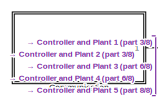
[diagram: root canvas - part 1/8, top left region]
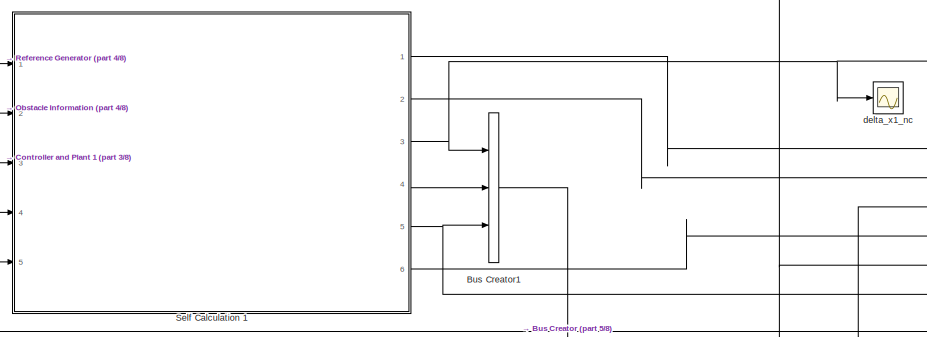
[diagram: root canvas - part 2/8, top center region]
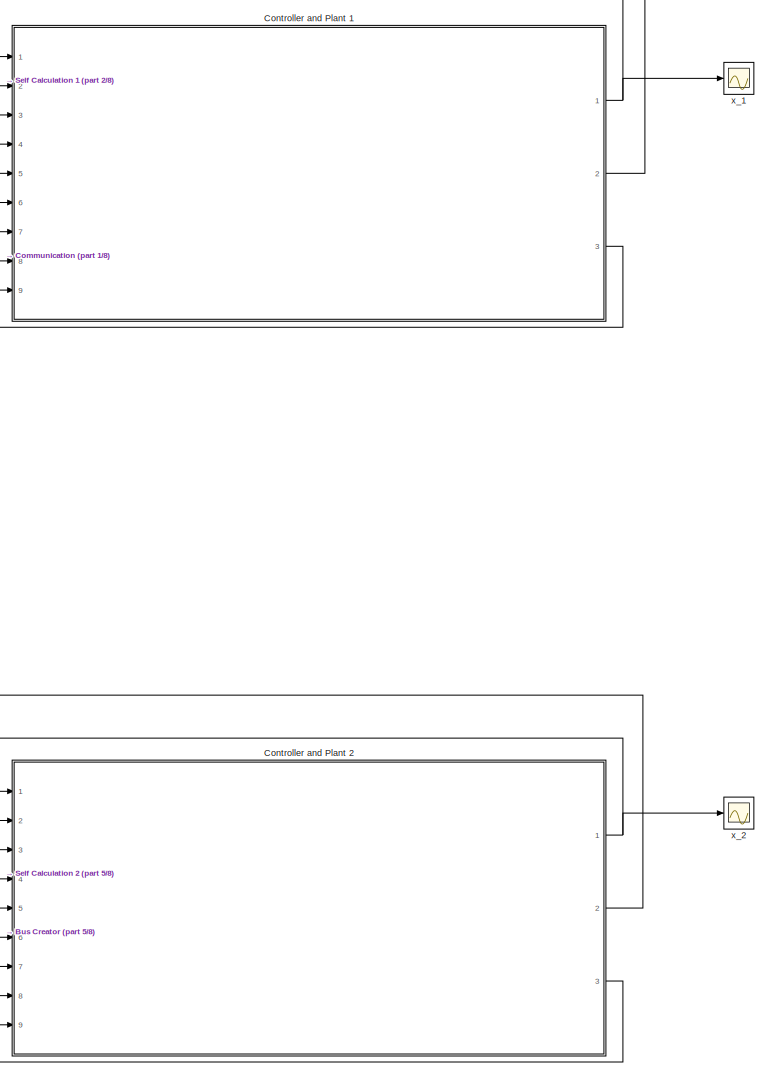
[diagram: root canvas - part 3/8, top right region]
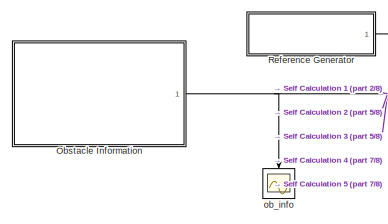
[diagram: root canvas - part 4/8, top left region]
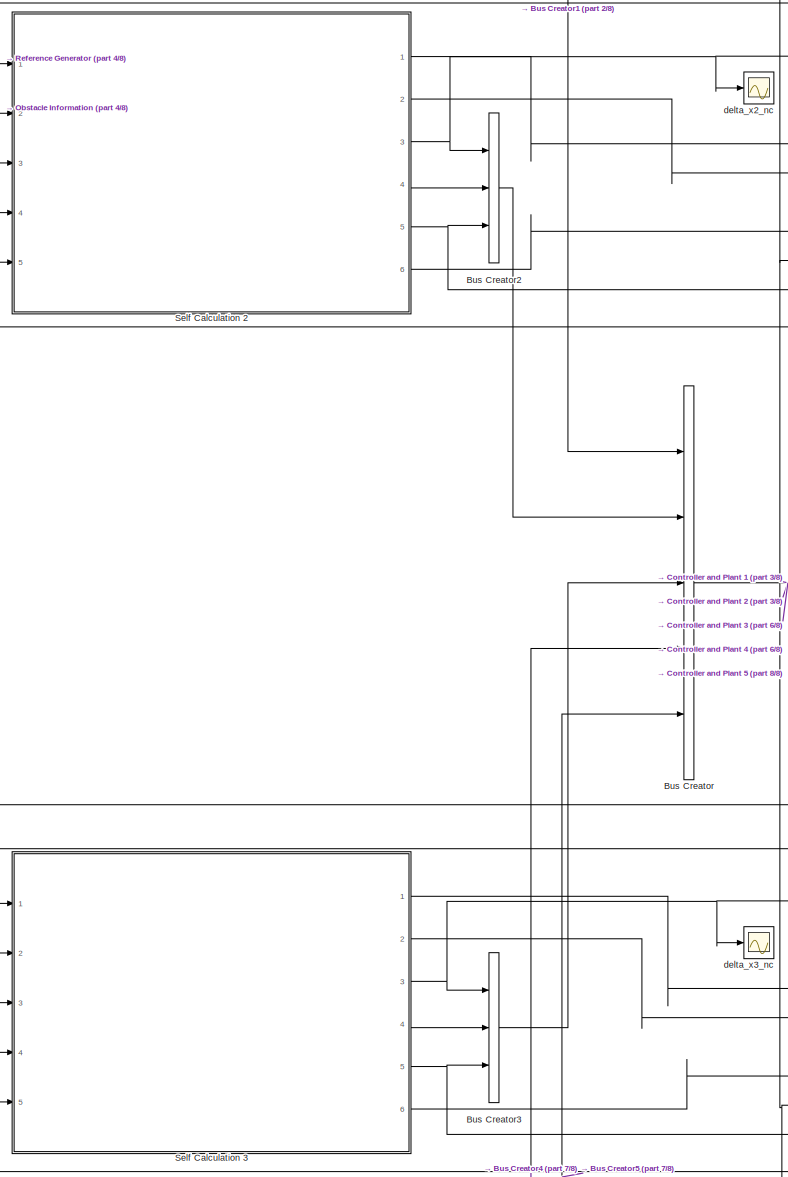
[diagram: root canvas - part 5/8, central region]
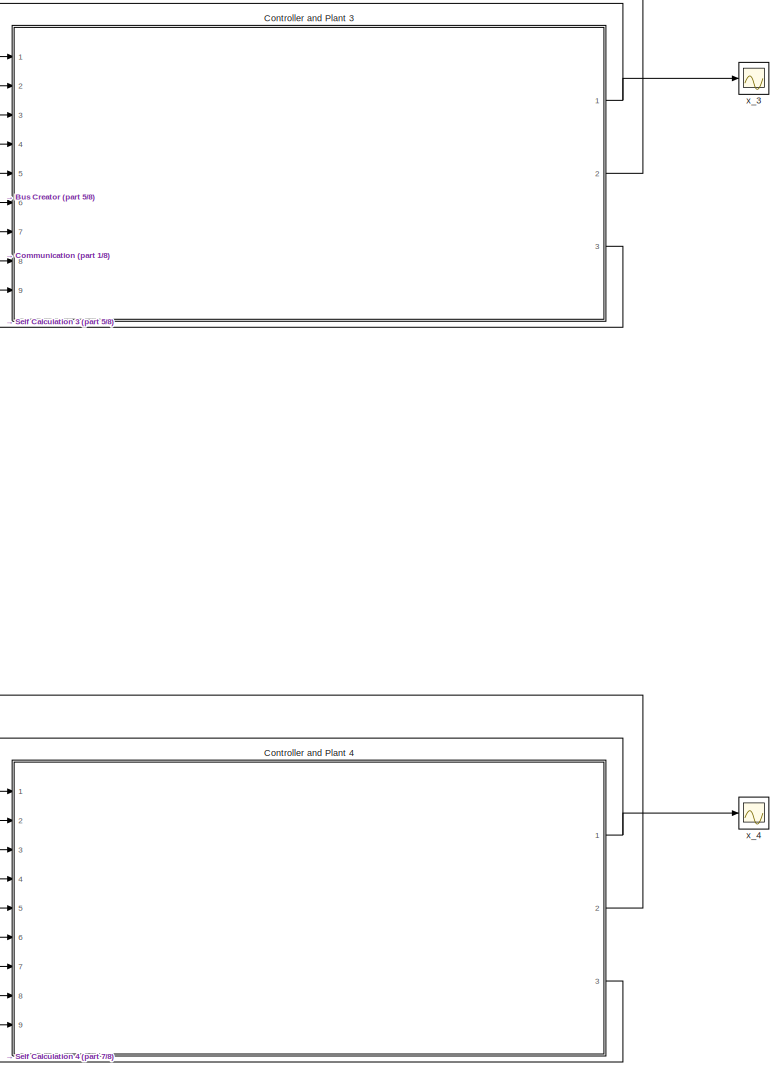
[diagram: root canvas - part 6/8, middle right region]
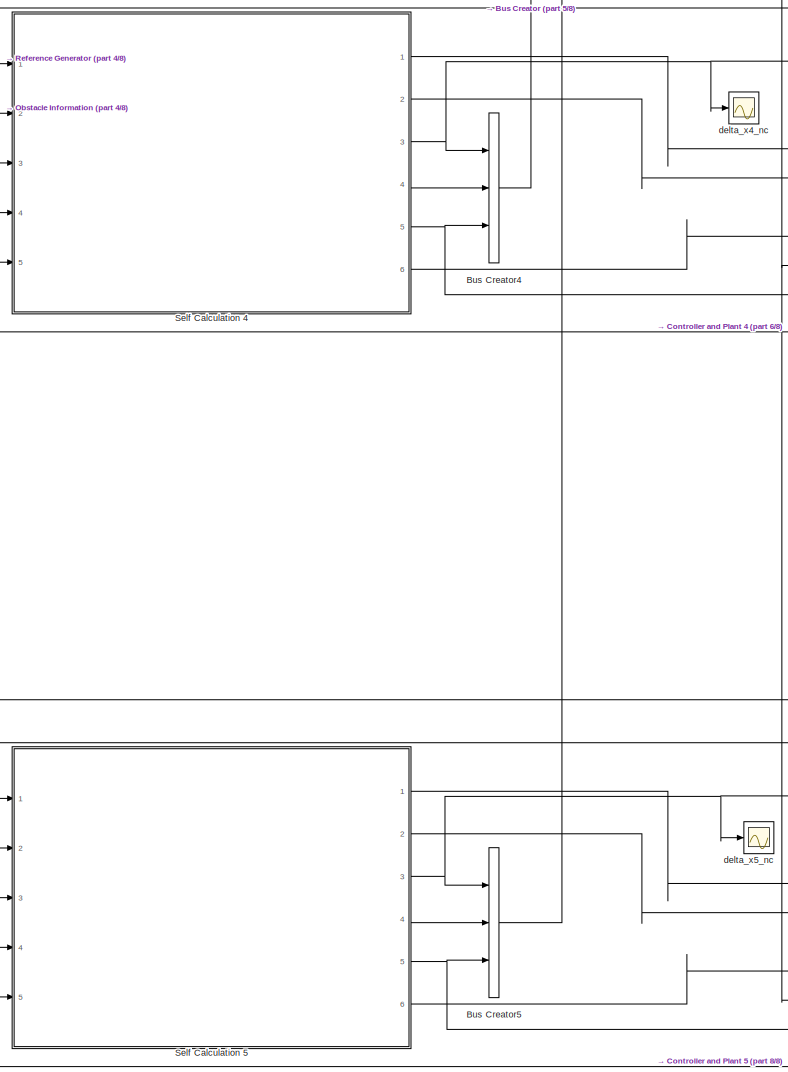
[diagram: root canvas - part 7/8, bottom center region]
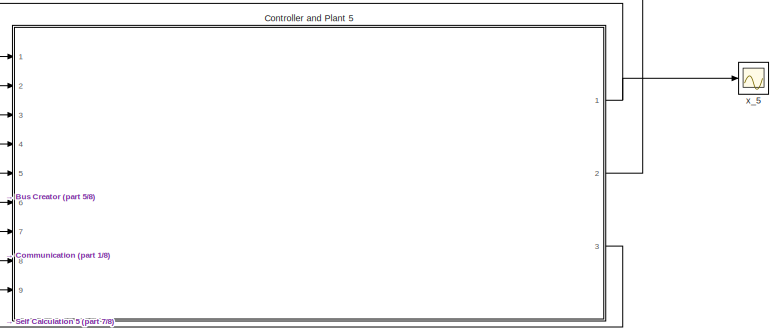
[diagram: root canvas - part 8/8, bottom right region]
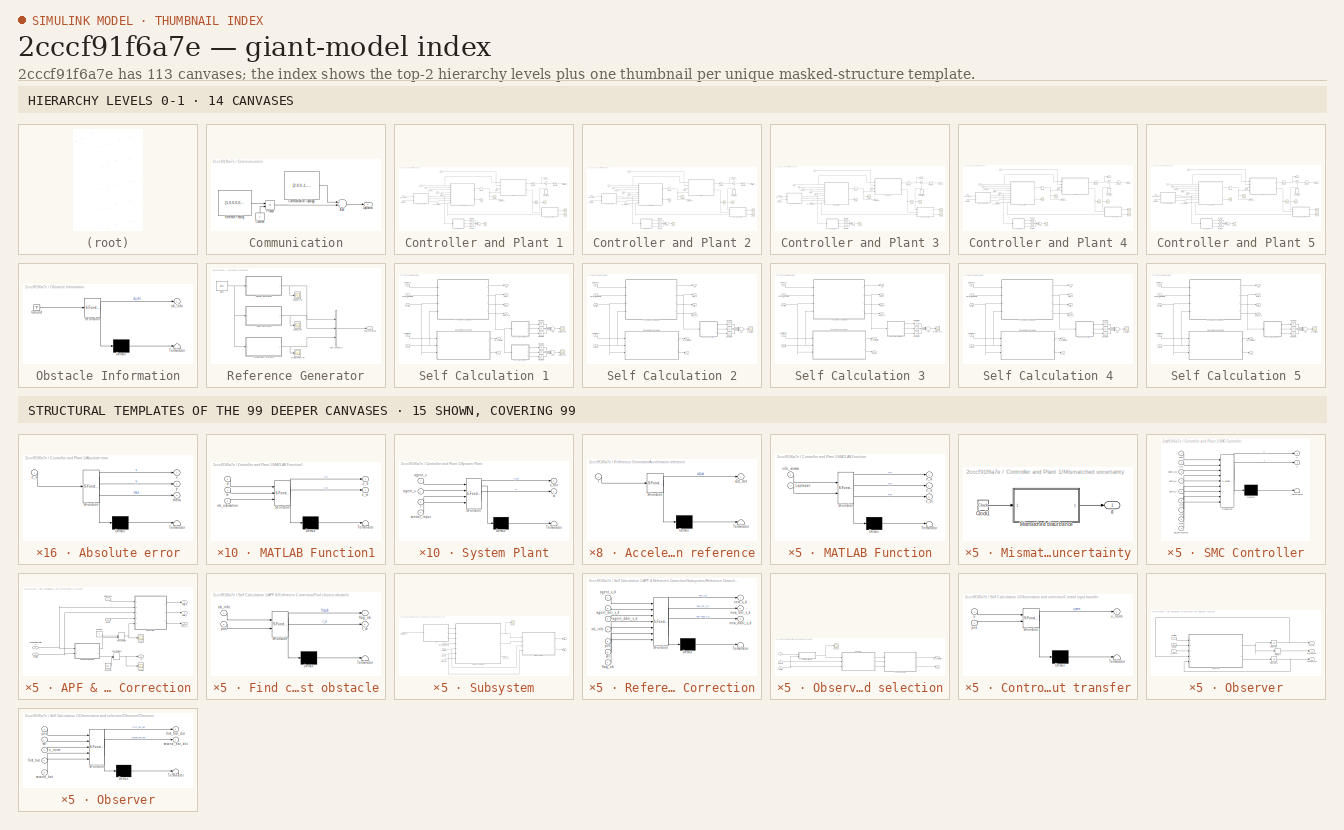
[diagram: thumbnail index - top-2 hierarchy levels (14 canvases) + 15 structural-template representatives of the remaining 99 canvases]
MODEL slx_2cccf91f6a7e
KIND model
CONFIG AbsTol = auto
CONFIG EnableMultiTasking = off
CONFIG FixedStep = 0.005
CONFIG MaxStep = auto
CONFIG MinStep = auto
CONFIG RelTol = 1e-3
CONFIG SampleTimeConstraint = Unconstrained
CONFIG Solver = ode5
CONFIG SolverName = ode5
CONFIG StartTime = 0.0
CONFIG StopTime = 35.0
BLOCK [BusCreator] Bus Creator
  DisplayOption = bar
  InheritFromInputs = on
  Inputs = 5
  Ports = [5, 1]
BLOCK [BusCreator] Bus Creator1
  DisplayOption = bar
  InheritFromInputs = on
  Inputs = 3
  Ports = [3, 1]
BLOCK [BusCreator] Bus Creator2
  DisplayOption = bar
  InheritFromInputs = on
  Inputs = 3
  Ports = [3, 1]
BLOCK [BusCreator] Bus Creator3
  DisplayOption = bar
  InheritFromInputs = on
  Inputs = 3
  Ports = [3, 1]
BLOCK [BusCreator] Bus Creator4
  DisplayOption = bar
  InheritFromInputs = on
  Inputs = 3
  Ports = [3, 1]
BLOCK [BusCreator] Bus Creator5
  DisplayOption = bar
  InheritFromInputs = on
  Inputs = 3
  Ports = [3, 1]
BLOCK [SubSystem] Communication
  Ports = [0, 1]
  RequestExecContextInheritance = off
BLOCK [Sum] Communication/Add
  InputSameDT = off
  OutDataTypeStr = Inherit: Inherit via internal rule
  Ports = [2, 1]
  SaturateOnIntegerOverflow = off
BLOCK [Constant] Communication/Communication Topology
  Value = [2,0,0,-1,-1;-1,3,-1,-1,0;0,0,1,-1,0;-1,0,0,1,0;0,-1,0,-1,2]
  VectorParams1D = off
BLOCK [Constant] Communication/Constant
  Value = 2
  VectorParams1D = off
BLOCK [Outport] Communication/Laplacian
  IconDisplay = Port number
  VectorParamsAs1DForOutWhenUnconnected = off
BLOCK [Product] Communication/Product
  InputSameDT = off
  OutDataTypeStr = Inherit: Inherit via internal rule
  Ports = [2, 1]
  RndMeth = Floor
  SaturateOnIntegerOverflow = off
BLOCK [Constant] Communication/Reference Feeding
  Value = [1,0,0,0,0;0,1,0,0,0;0,0,1,0,0;0,0,0,1,0;0,0,0,0,1]
  VectorParams1D = off
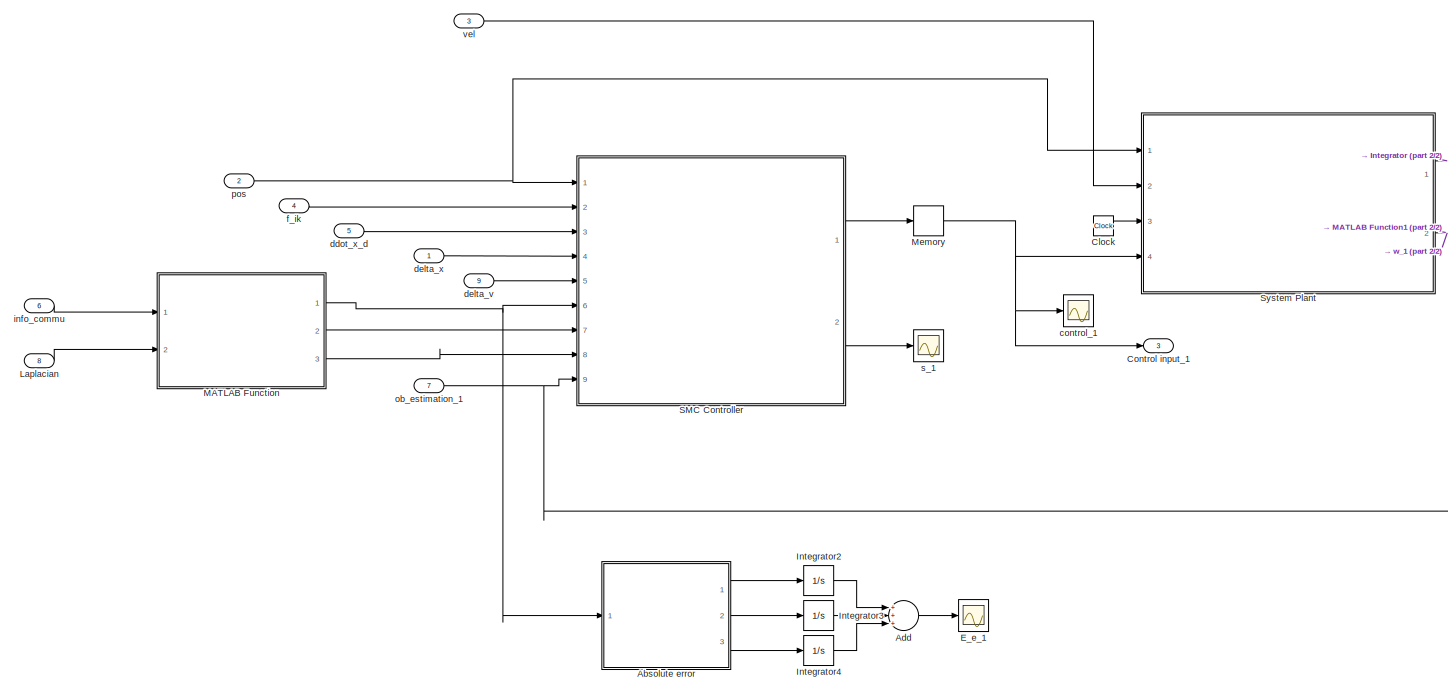
[diagram: Controller and Plant 1 - part 1/2, most of the canvas]
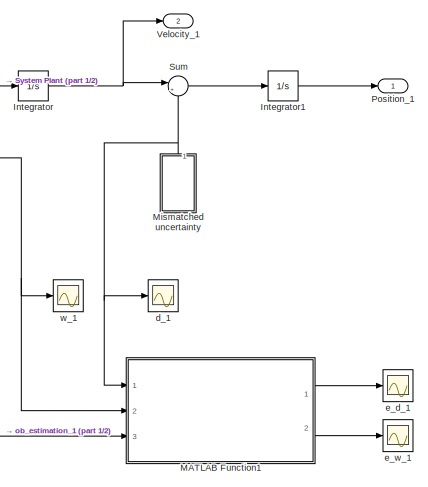
[diagram: Controller and Plant 1 - part 2/2, middle right region]
BLOCK [SubSystem] Controller and Plant 1
  Ports = [9, 3]
  RequestExecContextInheritance = off
BLOCK [SubSystem] Controller and Plant 1/Absolute error
  ErrorFcn = Stateflow.Translate.translate
  PermitHierarchicalResolution = ExplicitOnly
  Ports = [1, 3]
  RequestExecContextInheritance = off
  SFBlockType = MATLAB Function
  TreatAsAtomicUnit = on
BLOCK [Demux] Controller and Plant 1/Absolute error/ Demux 
  Outputs = 1
  Ports = [1, 1]
BLOCK [S-Function] Controller and Plant 1/Absolute error/ SFunction 
  EnableBusSupport = on
  FunctionName = sf_sfun
  PortCounts = [1 4]
  Ports = [1, 4]
  SFcnIsStateOwnerBlock = off
  SFunctionDeploymentMode = off
  Tag = Stateflow S-Function 18
BLOCK [Terminator] Controller and Plant 1/Absolute error/ Terminator 
BLOCK [Inport] Controller and Plant 1/Absolute error/e_x
  IconDisplay = Port number
BLOCK [Outport] Controller and Plant 1/Absolute error/theta
  IconDisplay = Port number
  Port = 3
BLOCK [Outport] Controller and Plant 1/Absolute error/x
  IconDisplay = Port number
BLOCK [Outport] Controller and Plant 1/Absolute error/y
  IconDisplay = Port number
  Port = 2
BLOCK [Sum] Controller and Plant 1/Add
  InputSameDT = off
  Inputs = +++
  OutDataTypeStr = Inherit: Inherit via internal rule
  Ports = [3, 1]
  SaturateOnIntegerOverflow = off
BLOCK [Clock] Controller and Plant 1/Clock
BLOCK [Outport] Controller and Plant 1/Control input_1
  IconDisplay = Port number
  Port = 3
BLOCK [Scope] Controller and Plant 1/E_e_1
  Floating = off
  NumInputPorts = 1
  Ports = [1]
  ScopeSpecificationString = Simulink.scopes.TimeScopeBlockCfg('CurrentConfiguration', extmgr.ConfigurationSet(extmgr.Configuration('Core','General UI',true),extmgr.Configuration('Core','Source UI',true),extmgr.Configuration('Sources','WiredSimulink',true,'DataLoggingVariableName','E_e_1','DataLogging',true,'DataLoggingSaveFormat','Array'),extmgr.Configuration('Visuals','Time Domain',true,'SerializedDisplays',{struct('MinYLim...<+1478ch>
BLOCK [Integrator] Controller and Plant 1/Integrator
  ContinuousStateAttributes = 'speed'
  InitialCondition = [0;0;0]
  Ports = [1, 1]
BLOCK [Integrator] Controller and Plant 1/Integrator1
  ContinuousStateAttributes = 'position'
  InitialCondition = [-0;0.8;pi/6]
  Ports = [1, 1]
  Tag = Position_x1
BLOCK [Integrator] Controller and Plant 1/Integrator2
  ContinuousStateAttributes = 'speed'
  Ports = [1, 1]
BLOCK [Integrator] Controller and Plant 1/Integrator3
  ContinuousStateAttributes = 'speed'
  Ports = [1, 1]
BLOCK [Integrator] Controller and Plant 1/Integrator4
  ContinuousStateAttributes = 'speed'
  Ports = [1, 1]
BLOCK [Inport] Controller and Plant 1/Laplacian
  IconDisplay = Port number
  Port = 8
BLOCK [SubSystem] Controller and Plant 1/MATLAB Function
  ErrorFcn = Stateflow.Translate.translate
  PermitHierarchicalResolution = ExplicitOnly
  Ports = [2, 3]
  RequestExecContextInheritance = off
  SFBlockType = MATLAB Function
  TreatAsAtomicUnit = on
BLOCK [Demux] Controller and Plant 1/MATLAB Function/ Demux 
  Outputs = 1
  Ports = [1, 1]
BLOCK [S-Function] Controller and Plant 1/MATLAB Function/ SFunction 
  EnableBusSupport = on
  FunctionName = sf_sfun
  PortCounts = [2 4]
  Ports = [2, 4]
  SFcnIsStateOwnerBlock = off
  SFunctionDeploymentMode = off
  Tag = Stateflow S-Function 10
BLOCK [Terminator] Controller and Plant 1/MATLAB Function/ Terminator 
BLOCK [Inport] Controller and Plant 1/MATLAB Function/Laplacian
  IconDisplay = Port number
  Port = 2
BLOCK [Outport] Controller and Plant 1/MATLAB Function/e_di
  IconDisplay = Port number
  Port = 3
BLOCK [Outport] Controller and Plant 1/MATLAB Function/e_vi
  IconDisplay = Port number
  Port = 2
BLOCK [Outport] Controller and Plant 1/MATLAB Function/e_xi
  IconDisplay = Port number
BLOCK [Inport] Controller and Plant 1/MATLAB Function/info_commu
  IconDisplay = Port number
BLOCK [SubSystem] Controller and Plant 1/MATLAB Function1
  ErrorFcn = Stateflow.Translate.translate
  PermitHierarchicalResolution = ExplicitOnly
  Ports = [3, 2]
  RequestExecContextInheritance = off
  SFBlockType = MATLAB Function
  TreatAsAtomicUnit = on
BLOCK [Demux] Controller and Plant 1/MATLAB Function1/ Demux 
  Outputs = 1
  Ports = [1, 1]
BLOCK [S-Function] Controller and Plant 1/MATLAB Function1/ SFunction 
  EnableBusSupport = on
  FunctionName = sf_sfun
  PortCounts = [3 3]
  Ports = [3, 3]
  SFcnIsStateOwnerBlock = off
  SFunctionDeploymentMode = off
  Tag = Stateflow S-Function 21
BLOCK [Terminator] Controller and Plant 1/MATLAB Function1/ Terminator 
BLOCK [Inport] Controller and Plant 1/MATLAB Function1/d
  IconDisplay = Port number
BLOCK [Outport] Controller and Plant 1/MATLAB Function1/e_d
  IconDisplay = Port number
  VectorParamsAs1DForOutWhenUnconnected = off
BLOCK [Outport] Controller and Plant 1/MATLAB Function1/e_w
  IconDisplay = Port number
  Port = 2
BLOCK [Inport] Controller and Plant 1/MATLAB Function1/ob_estimation
  IconDisplay = Port number
  Port = 3
BLOCK [Inport] Controller and Plant 1/MATLAB Function1/w
  IconDisplay = Port number
  Port = 2
BLOCK [Memory] Controller and Plant 1/Memory
  InitialCondition = [0;0;0]
BLOCK [SubSystem] Controller and Plant 1/Mismatched uncertainty
  Ports = [0, 1]
  RequestExecContextInheritance = off
BLOCK [Clock] Controller and Plant 1/Mismatched uncertainty/Clock1
BLOCK [SubSystem] Controller and Plant 1/Mismatched uncertainty/Mismatched disturbance
  ErrorFcn = Stateflow.Translate.translate
  PermitHierarchicalResolution = ExplicitOnly
  Ports = [1, 1]
  RequestExecContextInheritance = off
  SFBlockType = MATLAB Function
  TreatAsAtomicUnit = on
BLOCK [Demux] Controller and Plant 1/Mismatched uncertainty/Mismatched disturbance/ Demux 
  Outputs = 1
  Ports = [1, 1]
BLOCK [S-Function] Controller and Plant 1/Mismatched uncertainty/Mismatched disturbance/ SFunction 
  EnableBusSupport = on
  FunctionName = sf_sfun
  PortCounts = [1 2]
  Ports = [1, 2]
  SFcnIsStateOwnerBlock = off
  SFunctionDeploymentMode = off
  Tag = Stateflow S-Function 8
BLOCK [Terminator] Controller and Plant 1/Mismatched uncertainty/Mismatched disturbance/ Terminator 
BLOCK [Outport] Controller and Plant 1/Mismatched uncertainty/Mismatched disturbance/d
  IconDisplay = Port number
BLOCK [Inport] Controller and Plant 1/Mismatched uncertainty/Mismatched disturbance/t
  IconDisplay = Port number
BLOCK [Outport] Controller and Plant 1/Mismatched uncertainty/d
  IconDisplay = Port number
BLOCK [Outport] Controller and Plant 1/Position_1
  IconDisplay = Port number
BLOCK [SubSystem] Controller and Plant 1/SMC Controller
  ErrorFcn = Stateflow.Translate.translate
  PermitHierarchicalResolution = ExplicitOnly
  Ports = [9, 2]
  RequestExecContextInheritance = off
  SFBlockType = MATLAB Function
  TreatAsAtomicUnit = on
BLOCK [Demux] Controller and Plant 1/SMC Controller/ Demux 
  Outputs = 1
  Ports = [1, 1]
BLOCK [S-Function] Controller and Plant 1/SMC Controller/ SFunction 
  EnableBusSupport = on
  FunctionName = sf_sfun
  PortCounts = [9 3]
  Ports = [9, 3]
  SFcnIsStateOwnerBlock = off
  SFunctionDeploymentMode = off
  Tag = Stateflow S-Function 9
BLOCK [Terminator] Controller and Plant 1/SMC Controller/ Terminator 
BLOCK [Inport] Controller and Plant 1/SMC Controller/ddot_x_d
  IconDisplay = Port number
  Port = 3
BLOCK [Inport] Controller and Plant 1/SMC Controller/delta_v
  IconDisplay = Port number
  Port = 5
BLOCK [Inport] Controller and Plant 1/SMC Controller/delta_x
  IconDisplay = Port number
  Port = 4
BLOCK [Inport] Controller and Plant 1/SMC Controller/e_di
  IconDisplay = Port number
  Port = 8
BLOCK [Inport] Controller and Plant 1/SMC Controller/e_vi
  IconDisplay = Port number
  Port = 7
BLOCK [Inport] Controller and Plant 1/SMC Controller/e_xi
  IconDisplay = Port number
  Port = 6
BLOCK [Inport] Controller and Plant 1/SMC Controller/f_ik
  IconDisplay = Port number
  Port = 2
BLOCK [Inport] Controller and Plant 1/SMC Controller/ob_estimation
  IconDisplay = Port number
  Port = 9
BLOCK [Inport] Controller and Plant 1/SMC Controller/pos
  IconDisplay = Port number
BLOCK [Outport] Controller and Plant 1/SMC Controller/s
  IconDisplay = Port number
  Port = 2
BLOCK [Outport] Controller and Plant 1/SMC Controller/u
  IconDisplay = Port number
BLOCK [Sum] Controller and Plant 1/Sum
  IconShape = round
  InputSameDT = off
  Inputs = |++
  OutDataTypeStr = Inherit: Inherit via internal rule
  Ports = [2, 1]
  SaturateOnIntegerOverflow = off
BLOCK [SubSystem] Controller and Plant 1/System Plant
  ErrorFcn = Stateflow.Translate.translate
  PermitHierarchicalResolution = ExplicitOnly
  Ports = [4, 2]
  RequestExecContextInheritance = off
  SFBlockType = MATLAB Function
  TreatAsAtomicUnit = on
BLOCK [Demux] Controller and Plant 1/System Plant/ Demux 
  Outputs = 1
  Ports = [1, 1]
BLOCK [S-Function] Controller and Plant 1/System Plant/ SFunction 
  EnableBusSupport = on
  FunctionName = sf_sfun
  PortCounts = [4 3]
  Ports = [4, 3]
  SFcnIsStateOwnerBlock = off
  SFunctionDeploymentMode = off
  Tag = Stateflow S-Function 16
BLOCK [Terminator] Controller and Plant 1/System Plant/ Terminator 
BLOCK [Inport] Controller and Plant 1/System Plant/agent_v
  IconDisplay = Port number
  Port = 2
BLOCK [Inport] Controller and Plant 1/System Plant/agent_x
  IconDisplay = Port number
BLOCK [Inport] Controller and Plant 1/System Plant/control_input
  IconDisplay = Port number
  Port = 4
BLOCK [Inport] Controller and Plant 1/System Plant/t
  IconDisplay = Port number
  Port = 3
BLOCK [Outport] Controller and Plant 1/System Plant/v_dot
  IconDisplay = Port number
  VectorParamsAs1DForOutWhenUnconnected = off
BLOCK [Outport] Controller and Plant 1/System Plant/w
  IconDisplay = Port number
  Port = 2
  VectorParamsAs1DForOutWhenUnconnected = off
BLOCK [Outport] Controller and Plant 1/Velocity_1
  IconDisplay = Port number
  Port = 2
BLOCK [Scope] Controller and Plant 1/control_1
  Floating = off
  NumInputPorts = 1
  Ports = [1]
  ScopeSpecificationString = Simulink.scopes.TimeScopeBlockCfg('CurrentConfiguration', extmgr.ConfigurationSet(extmgr.Configuration('Core','General UI',true),extmgr.Configuration('Core','Source UI',true),extmgr.Configuration('Sources','WiredSimulink',true,'DataLoggingVariableName','control_1','DataLogging',true,'DataLoggingSaveFormat','Array'),extmgr.Configuration('Visuals','Time Domain',true,'SerializedDisplays',{struct('Min...<+1518ch>
BLOCK [Scope] Controller and Plant 1/d_1
  Floating = off
  NumInputPorts = 1
  Ports = [1]
  ScopeSpecificationString = Simulink.scopes.TimeScopeBlockCfg('CurrentConfiguration', extmgr.ConfigurationSet(extmgr.Configuration('Core','General UI',true),extmgr.Configuration('Core','Source UI',true),extmgr.Configuration('Sources','WiredSimulink',true,'DataLoggingVariableName','ScopeData9','DataLoggingSaveFormat','Array'),extmgr.Configuration('Visuals','Time Domain',true,'SerializedDisplays',{struct('MinYLimReal','-1.875'...<+1530ch>  <repeated x5 — deduplicated; at blocks: d_1, d_2, d_3, d_4>
BLOCK [Inport] Controller and Plant 1/ddot_x_d
  IconDisplay = Port number
  Port = 5
BLOCK [Inport] Controller and Plant 1/delta_v
  IconDisplay = Port number
  Port = 9
BLOCK [Inport] Controller and Plant 1/delta_x
  IconDisplay = Port number
BLOCK [Scope] Controller and Plant 1/e_d_1
  Floating = off
  NumInputPorts = 1
  Ports = [1]
  ScopeSpecificationString = Simulink.scopes.TimeScopeBlockCfg('CurrentConfiguration', extmgr.ConfigurationSet(extmgr.Configuration('Core','General UI',true),extmgr.Configuration('Core','Source UI',true),extmgr.Configuration('Sources','WiredSimulink',true,'DataLoggingVariableName','e_d_1','DataLogging',true,'DataLoggingSaveFormat','Array'),extmgr.Configuration('Visuals','Time Domain',true,'SerializedDisplays',{struct('MinYLim...<+1548ch>
BLOCK [Scope] Controller and Plant 1/e_w_1
  Floating = off
  NumInputPorts = 1
  Ports = [1]
  ScopeSpecificationString = Simulink.scopes.TimeScopeBlockCfg('CurrentConfiguration', extmgr.ConfigurationSet(extmgr.Configuration('Core','General UI',true),extmgr.Configuration('Core','Source UI',true),extmgr.Configuration('Sources','WiredSimulink',true,'DataLoggingVariableName','e_w_1','DataLogging',true,'DataLoggingSaveFormat','Array'),extmgr.Configuration('Visuals','Time Domain',true,'SerializedDisplays',{struct('MinYLim...<+1548ch>
BLOCK [Inport] Controller and Plant 1/f_ik
  IconDisplay = Port number
  Port = 4
BLOCK [Inport] Controller and Plant 1/info_commu
  IconDisplay = Port number
  Port = 6
BLOCK [Inport] Controller and Plant 1/ob_estimation_1
  IconDisplay = Port number
  Port = 7
BLOCK [Inport] Controller and Plant 1/pos
  IconDisplay = Port number
  Port = 2
BLOCK [Scope] Controller and Plant 1/s_1
  Floating = off
  NumInputPorts = 1
  Ports = [1]
  ScopeSpecificationString = Simulink.scopes.TimeScopeBlockCfg('CurrentConfiguration', extmgr.ConfigurationSet(extmgr.Configuration('Core','General UI',true),extmgr.Configuration('Core','Source UI',true),extmgr.Configuration('Sources','WiredSimulink',true,'DataLoggingVariableName','s_1','DataLoggingSaveFormat','Array','DataLogging',true),extmgr.Configuration('Visuals','Time Domain',true,'SerializedDisplays',{struct('MinYLimRe...<+1534ch>
BLOCK [Inport] Controller and Plant 1/vel
  IconDisplay = Port number
  Port = 3
BLOCK [Scope] Controller and Plant 1/w_1
  Floating = off
  NumInputPorts = 1
  Ports = [1]
  ScopeSpecificationString = Simulink.scopes.TimeScopeBlockCfg('CurrentConfiguration', extmgr.ConfigurationSet(extmgr.Configuration('Core','General UI',true),extmgr.Configuration('Core','Source UI',true),extmgr.Configuration('Sources','WiredSimulink',true,'DataLoggingVariableName','ScopeData8','DataLoggingSaveFormat','Array'),extmgr.Configuration('Visuals','Time Domain',true,'SerializedDisplays',{struct('MinYLimReal','-21.488...<+1524ch>  <repeated x4 — deduplicated; at blocks: w_1, w_2, w_3, w_4>
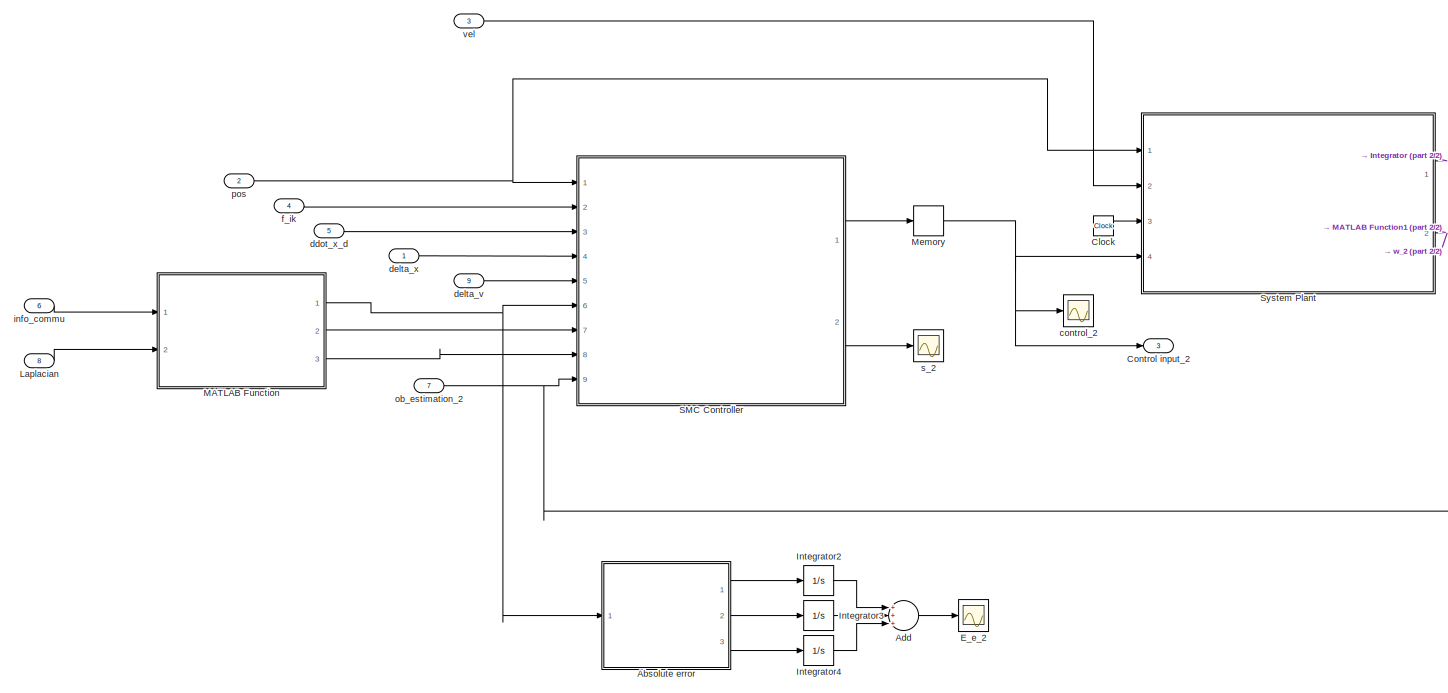
[diagram: Controller and Plant 2 - part 1/2, most of the canvas]
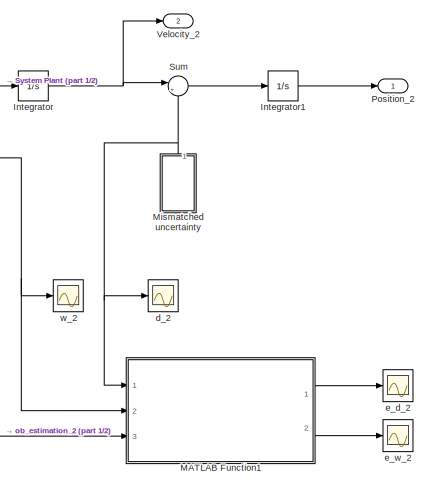
[diagram: Controller and Plant 2 - part 2/2, middle right region]
BLOCK [SubSystem] Controller and Plant 2
  Ports = [9, 3]
  RequestExecContextInheritance = off
BLOCK [SubSystem] Controller and Plant 2/Absolute error
  ErrorFcn = Stateflow.Translate.translate
  PermitHierarchicalResolution = ExplicitOnly
  Ports = [1, 3]
  RequestExecContextInheritance = off
  SFBlockType = MATLAB Function
  TreatAsAtomicUnit = on
BLOCK [Demux] Controller and Plant 2/Absolute error/ Demux 
  Outputs = 1
  Ports = [1, 1]
BLOCK [S-Function] Controller and Plant 2/Absolute error/ SFunction 
  EnableBusSupport = on
  FunctionName = sf_sfun
  PortCounts = [1 4]
  Ports = [1, 4]
  SFcnIsStateOwnerBlock = off
  SFunctionDeploymentMode = off
  Tag = Stateflow S-Function 13
BLOCK [Terminator] Controller and Plant 2/Absolute error/ Terminator 
BLOCK [Inport] Controller and Plant 2/Absolute error/e_x
  IconDisplay = Port number
BLOCK [Outport] Controller and Plant 2/Absolute error/theta
  IconDisplay = Port number
  Port = 3
BLOCK [Outport] Controller and Plant 2/Absolute error/x
  IconDisplay = Port number
BLOCK [Outport] Controller and Plant 2/Absolute error/y
  IconDisplay = Port number
  Port = 2
BLOCK [Sum] Controller and Plant 2/Add
  InputSameDT = off
  Inputs = +++
  OutDataTypeStr = Inherit: Inherit via internal rule
  Ports = [3, 1]
  SaturateOnIntegerOverflow = off
BLOCK [Clock] Controller and Plant 2/Clock
BLOCK [Outport] Controller and Plant 2/Control input_2
  IconDisplay = Port number
  Port = 3
BLOCK [Scope] Controller and Plant 2/E_e_2
  Floating = off
  NumInputPorts = 1
  Ports = [1]
  ScopeSpecificationString = Simulink.scopes.TimeScopeBlockCfg('CurrentConfiguration', extmgr.ConfigurationSet(extmgr.Configuration('Core','General UI',true),extmgr.Configuration('Core','Source UI',true),extmgr.Configuration('Sources','WiredSimulink',true,'DataLoggingVariableName','E_e_2','DataLogging',true,'DataLoggingSaveFormat','Array'),extmgr.Configuration('Visuals','Time Domain',true,'SerializedDisplays',{struct('MinYLim...<+1485ch>
BLOCK [Integrator] Controller and Plant 2/Integrator
  ContinuousStateAttributes = 'speed'
  InitialCondition = [0;0;0]
  Ports = [1, 1]
BLOCK [Integrator] Controller and Plant 2/Integrator1
  ContinuousStateAttributes = 'position'
  InitialCondition = [-1.3;1.4;pi/3]
  Ports = [1, 1]
  Tag = Position_x1
BLOCK [Integrator] Controller and Plant 2/Integrator2
  ContinuousStateAttributes = 'speed'
  Ports = [1, 1]
BLOCK [Integrator] Controller and Plant 2/Integrator3
  ContinuousStateAttributes = 'speed'
  Ports = [1, 1]
BLOCK [Integrator] Controller and Plant 2/Integrator4
  ContinuousStateAttributes = 'speed'
  Ports = [1, 1]
BLOCK [Inport] Controller and Plant 2/Laplacian
  IconDisplay = Port number
  Port = 8
BLOCK [SubSystem] Controller and Plant 2/MATLAB Function
  ErrorFcn = Stateflow.Translate.translate
  PermitHierarchicalResolution = ExplicitOnly
  Ports = [2, 3]
  RequestExecContextInheritance = off
  SFBlockType = MATLAB Function
  TreatAsAtomicUnit = on
BLOCK [Demux] Controller and Plant 2/MATLAB Function/ Demux 
  Outputs = 1
  Ports = [1, 1]
BLOCK [S-Function] Controller and Plant 2/MATLAB Function/ SFunction 
  EnableBusSupport = on
  FunctionName = sf_sfun
  PortCounts = [2 4]
  Ports = [2, 4]
  SFcnIsStateOwnerBlock = off
  SFunctionDeploymentMode = off
  Tag = Stateflow S-Function 19
BLOCK [Terminator] Controller and Plant 2/MATLAB Function/ Terminator 
BLOCK [Inport] Controller and Plant 2/MATLAB Function/Laplacian
  IconDisplay = Port number
  Port = 2
BLOCK [Outport] Controller and Plant 2/MATLAB Function/e_di
  IconDisplay = Port number
  Port = 3
BLOCK [Outport] Controller and Plant 2/MATLAB Function/e_vi
  IconDisplay = Port number
  Port = 2
BLOCK [Outport] Controller and Plant 2/MATLAB Function/e_xi
  IconDisplay = Port number
BLOCK [Inport] Controller and Plant 2/MATLAB Function/info_commu
  IconDisplay = Port number
BLOCK [SubSystem] Controller and Plant 2/MATLAB Function1
  ErrorFcn = Stateflow.Translate.translate
  PermitHierarchicalResolution = ExplicitOnly
  Ports = [3, 2]
  RequestExecContextInheritance = off
  SFBlockType = MATLAB Function
  TreatAsAtomicUnit = on
BLOCK [Demux] Controller and Plant 2/MATLAB Function1/ Demux 
  Outputs = 1
  Ports = [1, 1]
BLOCK [S-Function] Controller and Plant 2/MATLAB Function1/ SFunction 
  EnableBusSupport = on
  FunctionName = sf_sfun
  PortCounts = [3 3]
  Ports = [3, 3]
  SFcnIsStateOwnerBlock = off
  SFunctionDeploymentMode = off
  Tag = Stateflow S-Function 20
BLOCK [Terminator] Controller and Plant 2/MATLAB Function1/ Terminator 
BLOCK [Inport] Controller and Plant 2/MATLAB Function1/d
  IconDisplay = Port number
BLOCK [Outport] Controller and Plant 2/MATLAB Function1/e_d
  IconDisplay = Port number
  VectorParamsAs1DForOutWhenUnconnected = off
BLOCK [Outport] Controller and Plant 2/MATLAB Function1/e_w
  IconDisplay = Port number
  Port = 2
BLOCK [Inport] Controller and Plant 2/MATLAB Function1/ob_estimation
  IconDisplay = Port number
  Port = 3
BLOCK [Inport] Controller and Plant 2/MATLAB Function1/w
  IconDisplay = Port number
  Port = 2
BLOCK [Memory] Controller and Plant 2/Memory
  InitialCondition = [0;0;0]
BLOCK [SubSystem] Controller and Plant 2/Mismatched uncertainty
  Ports = [0, 1]
  RequestExecContextInheritance = off
BLOCK [Clock] Controller and Plant 2/Mismatched uncertainty/Clock1
BLOCK [SubSystem] Controller and Plant 2/Mismatched uncertainty/Mismatched disturbance
  ErrorFcn = Stateflow.Translate.translate
  PermitHierarchicalResolution = ExplicitOnly
  Ports = [1, 1]
  RequestExecContextInheritance = off
  SFBlockType = MATLAB Function
  TreatAsAtomicUnit = on
BLOCK [Demux] Controller and Plant 2/Mismatched uncertainty/Mismatched disturbance/ Demux 
  Outputs = 1
  Ports = [1, 1]
BLOCK [S-Function] Controller and Plant 2/Mismatched uncertainty/Mismatched disturbance/ SFunction 
  EnableBusSupport = on
  FunctionName = sf_sfun
  PortCounts = [1 2]
  Ports = [1, 2]
  SFcnIsStateOwnerBlock = off
  SFunctionDeploymentMode = off
  Tag = Stateflow S-Function 22
BLOCK [Terminator] Controller and Plant 2/Mismatched uncertainty/Mismatched disturbance/ Terminator 
BLOCK [Outport] Controller and Plant 2/Mismatched uncertainty/Mismatched disturbance/d
  IconDisplay = Port number
BLOCK [Inport] Controller and Plant 2/Mismatched uncertainty/Mismatched disturbance/t
  IconDisplay = Port number
BLOCK [Outport] Controller and Plant 2/Mismatched uncertainty/d
  IconDisplay = Port number
BLOCK [Outport] Controller and Plant 2/Position_2
  IconDisplay = Port number
BLOCK [SubSystem] Controller and Plant 2/SMC Controller
  ErrorFcn = Stateflow.Translate.translate
  PermitHierarchicalResolution = ExplicitOnly
  Ports = [9, 2]
  RequestExecContextInheritance = off
  SFBlockType = MATLAB Function
  TreatAsAtomicUnit = on
BLOCK [Demux] Controller and Plant 2/SMC Controller/ Demux 
  Outputs = 1
  Ports = [1, 1]
BLOCK [S-Function] Controller and Plant 2/SMC Controller/ SFunction 
  EnableBusSupport = on
  FunctionName = sf_sfun
  PortCounts = [9 3]
  Ports = [9, 3]
  SFcnIsStateOwnerBlock = off
  SFunctionDeploymentMode = off
  Tag = Stateflow S-Function 23
BLOCK [Terminator] Controller and Plant 2/SMC Controller/ Terminator 
BLOCK [Inport] Controller and Plant 2/SMC Controller/ddot_x_d
  IconDisplay = Port number
  Port = 3
BLOCK [Inport] Controller and Plant 2/SMC Controller/delta_v
  IconDisplay = Port number
  Port = 5
BLOCK [Inport] Controller and Plant 2/SMC Controller/delta_x
  IconDisplay = Port number
  Port = 4
BLOCK [Inport] Controller and Plant 2/SMC Controller/e_di
  IconDisplay = Port number
  Port = 8
BLOCK [Inport] Controller and Plant 2/SMC Controller/e_vi
  IconDisplay = Port number
  Port = 7
BLOCK [Inport] Controller and Plant 2/SMC Controller/e_xi
  IconDisplay = Port number
  Port = 6
BLOCK [Inport] Controller and Plant 2/SMC Controller/f_ik
  IconDisplay = Port number
  Port = 2
BLOCK [Inport] Controller and Plant 2/SMC Controller/ob_estimation
  IconDisplay = Port number
  Port = 9
BLOCK [Inport] Controller and Plant 2/SMC Controller/pos
  IconDisplay = Port number
BLOCK [Outport] Controller and Plant 2/SMC Controller/s
  IconDisplay = Port number
  Port = 2
BLOCK [Outport] Controller and Plant 2/SMC Controller/u
  IconDisplay = Port number
BLOCK [Sum] Controller and Plant 2/Sum
  IconShape = round
  InputSameDT = off
  Inputs = |++
  OutDataTypeStr = Inherit: Inherit via internal rule
  Ports = [2, 1]
  SaturateOnIntegerOverflow = off
BLOCK [SubSystem] Controller and Plant 2/System Plant
  ErrorFcn = Stateflow.Translate.translate
  PermitHierarchicalResolution = ExplicitOnly
  Ports = [4, 2]
  RequestExecContextInheritance = off
  SFBlockType = MATLAB Function
  TreatAsAtomicUnit = on
BLOCK [Demux] Controller and Plant 2/System Plant/ Demux 
  Outputs = 1
  Ports = [1, 1]
BLOCK [S-Function] Controller and Plant 2/System Plant/ SFunction 
  EnableBusSupport = on
  FunctionName = sf_sfun
  PortCounts = [4 3]
  Ports = [4, 3]
  SFcnIsStateOwnerBlock = off
  SFunctionDeploymentMode = off
  Tag = Stateflow S-Function 24
BLOCK [Terminator] Controller and Plant 2/System Plant/ Terminator 
BLOCK [Inport] Controller and Plant 2/System Plant/agent_v
  IconDisplay = Port number
  Port = 2
BLOCK [Inport] Controller and Plant 2/System Plant/agent_x
  IconDisplay = Port number
BLOCK [Inport] Controller and Plant 2/System Plant/control_input
  IconDisplay = Port number
  Port = 4
BLOCK [Inport] Controller and Plant 2/System Plant/t
  IconDisplay = Port number
  Port = 3
BLOCK [Outport] Controller and Plant 2/System Plant/v_dot
  IconDisplay = Port number
  VectorParamsAs1DForOutWhenUnconnected = off
BLOCK [Outport] Controller and Plant 2/System Plant/w
  IconDisplay = Port number
  Port = 2
  VectorParamsAs1DForOutWhenUnconnected = off
BLOCK [Outport] Controller and Plant 2/Velocity_2
  IconDisplay = Port number
  Port = 2
BLOCK [Scope] Controller and Plant 2/control_2
  Floating = off
  NumInputPorts = 1
  Ports = [1]
  ScopeSpecificationString = Simulink.scopes.TimeScopeBlockCfg('CurrentConfiguration', extmgr.ConfigurationSet(extmgr.Configuration('Core','General UI',true),extmgr.Configuration('Core','Source UI',true),extmgr.Configuration('Sources','WiredSimulink',true,'DataLoggingVariableName','control_2','DataLogging',true,'DataLoggingSaveFormat','Array'),extmgr.Configuration('Visuals','Time Domain',true,'SerializedDisplays',{struct('Min...<+1522ch>
BLOCK [Scope] Controller and Plant 2/d_2
  Floating = off
  NumInputPorts = 1
  Ports = [1]
BLOCK [Inport] Controller and Plant 2/ddot_x_d
  IconDisplay = Port number
  Port = 5
BLOCK [Inport] Controller and Plant 2/delta_v
  IconDisplay = Port number
  Port = 9
BLOCK [Inport] Controller and Plant 2/delta_x
  IconDisplay = Port number
BLOCK [Scope] Controller and Plant 2/e_d_2
  Floating = off
  NumInputPorts = 1
  Ports = [1]
  ScopeSpecificationString = Simulink.scopes.TimeScopeBlockCfg('CurrentConfiguration', extmgr.ConfigurationSet(extmgr.Configuration('Core','General UI',true),extmgr.Configuration('Core','Source UI',true),extmgr.Configuration('Sources','WiredSimulink',true,'DataLoggingVariableName','e_d_2','DataLogging',true,'DataLoggingSaveFormat','Array'),extmgr.Configuration('Visuals','Time Domain',true,'SerializedDisplays',{struct('MinYLim...<+1548ch>
BLOCK [Scope] Controller and Plant 2/e_w_2
  Floating = off
  NumInputPorts = 1
  Ports = [1]
  ScopeSpecificationString = Simulink.scopes.TimeScopeBlockCfg('CurrentConfiguration', extmgr.ConfigurationSet(extmgr.Configuration('Core','General UI',true),extmgr.Configuration('Core','Source UI',true),extmgr.Configuration('Sources','WiredSimulink',true,'DataLoggingVariableName','e_w_2','DataLogging',true,'DataLoggingSaveFormat','Array'),extmgr.Configuration('Visuals','Time Domain',true,'SerializedDisplays',{struct('MinYLim...<+1548ch>
BLOCK [Inport] Controller and Plant 2/f_ik
  IconDisplay = Port number
  Port = 4
BLOCK [Inport] Controller and Plant 2/info_commu
  IconDisplay = Port number
  Port = 6
BLOCK [Inport] Controller and Plant 2/ob_estimation_2
  IconDisplay = Port number
  Port = 7
BLOCK [Inport] Controller and Plant 2/pos
  IconDisplay = Port number
  Port = 2
BLOCK [Scope] Controller and Plant 2/s_2
  Floating = off
  NumInputPorts = 1
  Ports = [1]
  ScopeSpecificationString = Simulink.scopes.TimeScopeBlockCfg('CurrentConfiguration', extmgr.ConfigurationSet(extmgr.Configuration('Core','General UI',true),extmgr.Configuration('Core','Source UI',true),extmgr.Configuration('Sources','WiredSimulink',true,'DataLoggingVariableName','s_2','DataLoggingSaveFormat','Array','DataLogging',true),extmgr.Configuration('Visuals','Time Domain',true,'SerializedDisplays',{struct('MinYLimRe...<+1540ch>
BLOCK [Inport] Controller and Plant 2/vel
  IconDisplay = Port number
  Port = 3
BLOCK [Scope] Controller and Plant 2/w_2
  Floating = off
  NumInputPorts = 1
  Ports = [1]
BLOCK [SubSystem] Controller and Plant 3
  Ports = [9, 3]
  RequestExecContextInheritance = off
BLOCK [SubSystem] Controller and Plant 3/Absolute error
  ErrorFcn = Stateflow.Translate.translate
  PermitHierarchicalResolution = ExplicitOnly
  Ports = [1, 3]
  RequestExecContextInheritance = off
  SFBlockType = MATLAB Function
  TreatAsAtomicUnit = on
BLOCK [Demux] Controller and Plant 3/Absolute error/ Demux 
  Outputs = 1
  Ports = [1, 1]
BLOCK [S-Function] Controller and Plant 3/Absolute error/ SFunction 
  EnableBusSupport = on
  FunctionName = sf_sfun
  PortCounts = [1 4]
  Ports = [1, 4]
  SFcnIsStateOwnerBlock = off
  SFunctionDeploymentMode = off
  Tag = Stateflow S-Function 33
BLOCK [Terminator] Controller and Plant 3/Absolute error/ Terminator 
BLOCK [Inport] Controller and Plant 3/Absolute error/e_x
  IconDisplay = Port number
BLOCK [Outport] Controller and Plant 3/Absolute error/theta
  IconDisplay = Port number
  Port = 3
BLOCK [Outport] Controller and Plant 3/Absolute error/x
  IconDisplay = Port number
BLOCK [Outport] Controller and Plant 3/Absolute error/y
  IconDisplay = Port number
  Port = 2
BLOCK [Sum] Controller and Plant 3/Add
  InputSameDT = off
  Inputs = +++
  OutDataTypeStr = Inherit: Inherit via internal rule
  Ports = [3, 1]
  SaturateOnIntegerOverflow = off
BLOCK [Clock] Controller and Plant 3/Clock
BLOCK [Outport] Controller and Plant 3/Control input_3
  IconDisplay = Port number
  Port = 3
BLOCK [Scope] Controller and Plant 3/E_e_3
  Floating = off
  NumInputPorts = 1
  Ports = [1]
  ScopeSpecificationString = Simulink.scopes.TimeScopeBlockCfg('CurrentConfiguration', extmgr.ConfigurationSet(extmgr.Configuration('Core','General UI',true),extmgr.Configuration('Core','Source UI',true),extmgr.Configuration('Sources','WiredSimulink',true,'DataLoggingVariableName','E_e_3','DataLogging',true,'DataLoggingSaveFormat','Array'),extmgr.Configuration('Visuals','Time Domain',true,'SerializedDisplays',{struct('MinYLim...<+1485ch>
BLOCK [Integrator] Controller and Plant 3/Integrator
  ContinuousStateAttributes = 'speed'
  InitialCondition = [0;0;0]
  Ports = [1, 1]
BLOCK [Integrator] Controller and Plant 3/Integrator1
  ContinuousStateAttributes = 'position'
  InitialCondition = [-1.4;-1.2;-pi/4]
  Ports = [1, 1]
  Tag = Position_x1
BLOCK [Integrator] Controller and Plant 3/Integrator2
  ContinuousStateAttributes = 'speed'
  Ports = [1, 1]
BLOCK [Integrator] Controller and Plant 3/Integrator3
  ContinuousStateAttributes = 'speed'
  Ports = [1, 1]
BLOCK [Integrator] Controller and Plant 3/Integrator4
  ContinuousStateAttributes = 'speed'
  Ports = [1, 1]
BLOCK [Inport] Controller and Plant 3/Laplacian
  IconDisplay = Port number
  Port = 8
BLOCK [SubSystem] Controller and Plant 3/MATLAB Function
  ErrorFcn = Stateflow.Translate.translate
  PermitHierarchicalResolution = ExplicitOnly
  Ports = [2, 3]
  RequestExecContextInheritance = off
  SFBlockType = MATLAB Function
  TreatAsAtomicUnit = on
BLOCK [Demux] Controller and Plant 3/MATLAB Function/ Demux 
  Outputs = 1
  Ports = [1, 1]
BLOCK [S-Function] Controller and Plant 3/MATLAB Function/ SFunction 
  EnableBusSupport = on
  FunctionName = sf_sfun
  PortCounts = [2 4]
  Ports = [2, 4]
  SFcnIsStateOwnerBlock = off
  SFunctionDeploymentMode = off
  Tag = Stateflow S-Function 34
BLOCK [Terminator] Controller and Plant 3/MATLAB Function/ Terminator 
BLOCK [Inport] Controller and Plant 3/MATLAB Function/Laplacian
  IconDisplay = Port number
  Port = 2
BLOCK [Outport] Controller and Plant 3/MATLAB Function/e_di
  IconDisplay = Port number
  Port = 3
BLOCK [Outport] Controller and Plant 3/MATLAB Function/e_vi
  IconDisplay = Port number
  Port = 2
BLOCK [Outport] Controller and Plant 3/MATLAB Function/e_xi
  IconDisplay = Port number
BLOCK [Inport] Controller and Plant 3/MATLAB Function/info_commu
  IconDisplay = Port number
BLOCK [SubSystem] Controller and Plant 3/MATLAB Function1
  ErrorFcn = Stateflow.Translate.translate
  PermitHierarchicalResolution = ExplicitOnly
  Ports = [3, 2]
  RequestExecContextInheritance = off
  SFBlockType = MATLAB Function
  TreatAsAtomicUnit = on
BLOCK [Demux] Controller and Plant 3/MATLAB Function1/ Demux 
  Outputs = 1
  Ports = [1, 1]
BLOCK [S-Function] Controller and Plant 3/MATLAB Function1/ SFunction 
  EnableBusSupport = on
  FunctionName = sf_sfun
  PortCounts = [3 3]
  Ports = [3, 3]
  SFcnIsStateOwnerBlock = off
  SFunctionDeploymentMode = off
  Tag = Stateflow S-Function 35
BLOCK [Terminator] Controller and Plant 3/MATLAB Function1/ Terminator 
BLOCK [Inport] Controller and Plant 3/MATLAB Function1/d
  IconDisplay = Port number
BLOCK [Outport] Controller and Plant 3/MATLAB Function1/e_d
  IconDisplay = Port number
  VectorParamsAs1DForOutWhenUnconnected = off
BLOCK [Outport] Controller and Plant 3/MATLAB Function1/e_w
  IconDisplay = Port number
  Port = 2
BLOCK [Inport] Controller and Plant 3/MATLAB Function1/ob_estimation
  IconDisplay = Port number
  Port = 3
BLOCK [Inport] Controller and Plant 3/MATLAB Function1/w
  IconDisplay = Port number
  Port = 2
BLOCK [Memory] Controller and Plant 3/Memory
  InitialCondition = [0;0;0]
BLOCK [SubSystem] Controller and Plant 3/Mismatched uncertainty
  Ports = [0, 1]
  RequestExecContextInheritance = off
BLOCK [Clock] Controller and Plant 3/Mismatched uncertainty/Clock1
BLOCK [SubSystem] Controller and Plant 3/Mismatched uncertainty/Mismatched disturbance
  ErrorFcn = Stateflow.Translate.translate
  PermitHierarchicalResolution = ExplicitOnly
  Ports = [1, 1]
  RequestExecContextInheritance = off
  SFBlockType = MATLAB Function
  TreatAsAtomicUnit = on
BLOCK [Demux] Controller and Plant 3/Mismatched uncertainty/Mismatched disturbance/ Demux 
  Outputs = 1
  Ports = [1, 1]
BLOCK [S-Function] Controller and Plant 3/Mismatched uncertainty/Mismatched disturbance/ SFunction 
  EnableBusSupport = on
  FunctionName = sf_sfun
  PortCounts = [1 2]
  Ports = [1, 2]
  SFcnIsStateOwnerBlock = off
  SFunctionDeploymentMode = off
  Tag = Stateflow S-Function 36
BLOCK [Terminator] Controller and Plant 3/Mismatched uncertainty/Mismatched disturbance/ Terminator 
BLOCK [Outport] Controller and Plant 3/Mismatched uncertainty/Mismatched disturbance/d
  IconDisplay = Port number
BLOCK [Inport] Controller and Plant 3/Mismatched uncertainty/Mismatched disturbance/t
  IconDisplay = Port number
BLOCK [Outport] Controller and Plant 3/Mismatched uncertainty/d
  IconDisplay = Port number
BLOCK [Outport] Controller and Plant 3/Position_3
  IconDisplay = Port number
BLOCK [SubSystem] Controller and Plant 3/SMC Controller
  ErrorFcn = Stateflow.Translate.translate
  PermitHierarchicalResolution = ExplicitOnly
  Ports = [9, 2]
  RequestExecContextInheritance = off
  SFBlockType = MATLAB Function
  TreatAsAtomicUnit = on
BLOCK [Demux] Controller and Plant 3/SMC Controller/ Demux 
  Outputs = 1
  Ports = [1, 1]
BLOCK [S-Function] Controller and Plant 3/SMC Controller/ SFunction 
  EnableBusSupport = on
  FunctionName = sf_sfun
  PortCounts = [9 3]
  Ports = [9, 3]
  SFcnIsStateOwnerBlock = off
  SFunctionDeploymentMode = off
  Tag = Stateflow S-Function 37
BLOCK [Terminator] Controller and Plant 3/SMC Controller/ Terminator 
BLOCK [Inport] Controller and Plant 3/SMC Controller/ddot_x_d
  IconDisplay = Port number
  Port = 3
BLOCK [Inport] Controller and Plant 3/SMC Controller/delta_v
  IconDisplay = Port number
  Port = 5
BLOCK [Inport] Controller and Plant 3/SMC Controller/delta_x
  IconDisplay = Port number
  Port = 4
BLOCK [Inport] Controller and Plant 3/SMC Controller/e_di
  IconDisplay = Port number
  Port = 8
BLOCK [Inport] Controller and Plant 3/SMC Controller/e_vi
  IconDisplay = Port number
  Port = 7
BLOCK [Inport] Controller and Plant 3/SMC Controller/e_xi
  IconDisplay = Port number
  Port = 6
BLOCK [Inport] Controller and Plant 3/SMC Controller/f_ik
  IconDisplay = Port number
  Port = 2
BLOCK [Inport] Controller and Plant 3/SMC Controller/ob_estimation
  IconDisplay = Port number
  Port = 9
BLOCK [Inport] Controller and Plant 3/SMC Controller/pos
  IconDisplay = Port number
BLOCK [Outport] Controller and Plant 3/SMC Controller/s
  IconDisplay = Port number
  Port = 2
BLOCK [Outport] Controller and Plant 3/SMC Controller/u
  IconDisplay = Port number
BLOCK [Sum] Controller and Plant 3/Sum
  IconShape = round
  InputSameDT = off
  Inputs = |++
  OutDataTypeStr = Inherit: Inherit via internal rule
  Ports = [2, 1]
  SaturateOnIntegerOverflow = off
BLOCK [SubSystem] Controller and Plant 3/System Plant
  ErrorFcn = Stateflow.Translate.translate
  PermitHierarchicalResolution = ExplicitOnly
  Ports = [4, 2]
  RequestExecContextInheritance = off
  SFBlockType = MATLAB Function
  TreatAsAtomicUnit = on
BLOCK [Demux] Controller and Plant 3/System Plant/ Demux 
  Outputs = 1
  Ports = [1, 1]
BLOCK [S-Function] Controller and Plant 3/System Plant/ SFunction 
  EnableBusSupport = on
  FunctionName = sf_sfun
  PortCounts = [4 3]
  Ports = [4, 3]
  SFcnIsStateOwnerBlock = off
  SFunctionDeploymentMode = off
  Tag = Stateflow S-Function 38
BLOCK [Terminator] Controller and Plant 3/System Plant/ Terminator 
BLOCK [Inport] Controller and Plant 3/System Plant/agent_v
  IconDisplay = Port number
  Port = 2
BLOCK [Inport] Controller and Plant 3/System Plant/agent_x
  IconDisplay = Port number
BLOCK [Inport] Controller and Plant 3/System Plant/control_input
  IconDisplay = Port number
  Port = 4
BLOCK [Inport] Controller and Plant 3/System Plant/t
  IconDisplay = Port number
  Port = 3
BLOCK [Outport] Controller and Plant 3/System Plant/v_dot
  IconDisplay = Port number
  VectorParamsAs1DForOutWhenUnconnected = off
BLOCK [Outport] Controller and Plant 3/System Plant/w
  IconDisplay = Port number
  Port = 2
  VectorParamsAs1DForOutWhenUnconnected = off
BLOCK [Outport] Controller and Plant 3/Velocity_3
  IconDisplay = Port number
  Port = 2
BLOCK [Scope] Controller and Plant 3/control_3
  Floating = off
  NumInputPorts = 1
  Ports = [1]
  ScopeSpecificationString = Simulink.scopes.TimeScopeBlockCfg('CurrentConfiguration', extmgr.ConfigurationSet(extmgr.Configuration('Core','General UI',true),extmgr.Configuration('Core','Source UI',true),extmgr.Configuration('Sources','WiredSimulink',true,'DataLoggingVariableName','control_3','DataLogging',true,'DataLoggingSaveFormat','Array'),extmgr.Configuration('Visuals','Time Domain',true,'SerializedDisplays',{struct('Min...<+1518ch>
BLOCK [Scope] Controller and Plant 3/d_3
  Floating = off
  NumInputPorts = 1
  Ports = [1]
BLOCK [Inport] Controller and Plant 3/ddot_x_d
  IconDisplay = Port number
  Port = 5
BLOCK [Inport] Controller and Plant 3/delta_v
  IconDisplay = Port number
  Port = 9
BLOCK [Inport] Controller and Plant 3/delta_x
  IconDisplay = Port number
BLOCK [Scope] Controller and Plant 3/e_d_3
  Floating = off
  NumInputPorts = 1
  Ports = [1]
  ScopeSpecificationString = Simulink.scopes.TimeScopeBlockCfg('CurrentConfiguration', extmgr.ConfigurationSet(extmgr.Configuration('Core','General UI',true),extmgr.Configuration('Core','Source UI',true),extmgr.Configuration('Sources','WiredSimulink',true,'DataLoggingVariableName','e_d_3','DataLogging',true,'DataLoggingSaveFormat','Array'),extmgr.Configuration('Visuals','Time Domain',true,'SerializedDisplays',{struct('MinYLim...<+1548ch>
BLOCK [Scope] Controller and Plant 3/e_w_3
  Floating = off
  NumInputPorts = 1
  Ports = [1]
  ScopeSpecificationString = Simulink.scopes.TimeScopeBlockCfg('CurrentConfiguration', extmgr.ConfigurationSet(extmgr.Configuration('Core','General UI',true),extmgr.Configuration('Core','Source UI',true),extmgr.Configuration('Sources','WiredSimulink',true,'DataLoggingVariableName','e_w_3','DataLogging',true,'DataLoggingSaveFormat','Array'),extmgr.Configuration('Visuals','Time Domain',true,'SerializedDisplays',{struct('MinYLim...<+1548ch>
BLOCK [Inport] Controller and Plant 3/f_ik
  IconDisplay = Port number
  Port = 4
BLOCK [Inport] Controller and Plant 3/info_commu
  IconDisplay = Port number
  Port = 6
BLOCK [Inport] Controller and Plant 3/ob_estimation_3
  IconDisplay = Port number
  Port = 7
BLOCK [Inport] Controller and Plant 3/pos
  IconDisplay = Port number
  Port = 2
BLOCK [Scope] Controller and Plant 3/s_3
  Floating = off
  NumInputPorts = 1
  Ports = [1]
  ScopeSpecificationString = Simulink.scopes.TimeScopeBlockCfg('CurrentConfiguration', extmgr.ConfigurationSet(extmgr.Configuration('Core','General UI',true),extmgr.Configuration('Core','Source UI',true),extmgr.Configuration('Sources','WiredSimulink',true,'DataLoggingVariableName','s_3','DataLoggingSaveFormat','Array','DataLogging',true),extmgr.Configuration('Visuals','Time Domain',true,'SerializedDisplays',{struct('MinYLimRe...<+1540ch>
BLOCK [Inport] Controller and Plant 3/vel
  IconDisplay = Port number
  Port = 3
BLOCK [Scope] Controller and Plant 3/w_3
  Floating = off
  NumInputPorts = 1
  Ports = [1]
BLOCK [SubSystem] Controller and Plant 4
  Ports = [9, 3]
  RequestExecContextInheritance = off
BLOCK [SubSystem] Controller and Plant 4/Absolute error
  ErrorFcn = Stateflow.Translate.translate
  PermitHierarchicalResolution = ExplicitOnly
  Ports = [1, 3]
  RequestExecContextInheritance = off
  SFBlockType = MATLAB Function
  TreatAsAtomicUnit = on
BLOCK [Demux] Controller and Plant 4/Absolute error/ Demux 
  Outputs = 1
  Ports = [1, 1]
BLOCK [S-Function] Controller and Plant 4/Absolute error/ SFunction 
  EnableBusSupport = on
  FunctionName = sf_sfun
  PortCounts = [1 4]
  Ports = [1, 4]
  SFcnIsStateOwnerBlock = off
  SFunctionDeploymentMode = off
  Tag = Stateflow S-Function 47
BLOCK [Terminator] Controller and Plant 4/Absolute error/ Terminator 
BLOCK [Inport] Controller and Plant 4/Absolute error/e_x
  IconDisplay = Port number
BLOCK [Outport] Controller and Plant 4/Absolute error/theta
  IconDisplay = Port number
  Port = 3
BLOCK [Outport] Controller and Plant 4/Absolute error/x
  IconDisplay = Port number
BLOCK [Outport] Controller and Plant 4/Absolute error/y
  IconDisplay = Port number
  Port = 2
BLOCK [Sum] Controller and Plant 4/Add
  InputSameDT = off
  Inputs = +++
  OutDataTypeStr = Inherit: Inherit via internal rule
  Ports = [3, 1]
  SaturateOnIntegerOverflow = off
BLOCK [Clock] Controller and Plant 4/Clock
BLOCK [Outport] Controller and Plant 4/Control input_4
  IconDisplay = Port number
  Port = 3
BLOCK [Scope] Controller and Plant 4/E_e_4
  Floating = off
  NumInputPorts = 1
  Ports = [1]
  ScopeSpecificationString = Simulink.scopes.TimeScopeBlockCfg('CurrentConfiguration', extmgr.ConfigurationSet(extmgr.Configuration('Core','General UI',true),extmgr.Configuration('Core','Source UI',true),extmgr.Configuration('Sources','WiredSimulink',true,'DataLoggingVariableName','E_e_4','DataLogging',true,'DataLoggingSaveFormat','Array'),extmgr.Configuration('Visuals','Time Domain',true,'SerializedDisplays',{struct('MinYLim...<+1485ch>
BLOCK [Integrator] Controller and Plant 4/Integrator
  ContinuousStateAttributes = 'speed'
  InitialCondition = [0;0;0]
  Ports = [1, 1]
BLOCK [Integrator] Controller and Plant 4/Integrator1
  ContinuousStateAttributes = 'position'
  InitialCondition = [0;-0.6;-pi/6]
  Ports = [1, 1]
  Tag = Position_x1
BLOCK [Integrator] Controller and Plant 4/Integrator2
  ContinuousStateAttributes = 'speed'
  Ports = [1, 1]
BLOCK [Integrator] Controller and Plant 4/Integrator3
  ContinuousStateAttributes = 'speed'
  Ports = [1, 1]
BLOCK [Integrator] Controller and Plant 4/Integrator4
  ContinuousStateAttributes = 'speed'
  Ports = [1, 1]
BLOCK [Inport] Controller and Plant 4/Laplacian
  IconDisplay = Port number
  Port = 8
BLOCK [SubSystem] Controller and Plant 4/MATLAB Function
  ErrorFcn = Stateflow.Translate.translate
  PermitHierarchicalResolution = ExplicitOnly
  Ports = [2, 3]
  RequestExecContextInheritance = off
  SFBlockType = MATLAB Function
  TreatAsAtomicUnit = on
BLOCK [Demux] Controller and Plant 4/MATLAB Function/ Demux 
  Outputs = 1
  Ports = [1, 1]
BLOCK [S-Function] Controller and Plant 4/MATLAB Function/ SFunction 
  EnableBusSupport = on
  FunctionName = sf_sfun
  PortCounts = [2 4]
  Ports = [2, 4]
  SFcnIsStateOwnerBlock = off
  SFunctionDeploymentMode = off
  Tag = Stateflow S-Function 48
BLOCK [Terminator] Controller and Plant 4/MATLAB Function/ Terminator 
BLOCK [Inport] Controller and Plant 4/MATLAB Function/Laplacian
  IconDisplay = Port number
  Port = 2
BLOCK [Outport] Controller and Plant 4/MATLAB Function/e_di
  IconDisplay = Port number
  Port = 3
BLOCK [Outport] Controller and Plant 4/MATLAB Function/e_vi
  IconDisplay = Port number
  Port = 2
BLOCK [Outport] Controller and Plant 4/MATLAB Function/e_xi
  IconDisplay = Port number
BLOCK [Inport] Controller and Plant 4/MATLAB Function/info_commu
  IconDisplay = Port number
BLOCK [SubSystem] Controller and Plant 4/MATLAB Function1
  ErrorFcn = Stateflow.Translate.translate
  PermitHierarchicalResolution = ExplicitOnly
  Ports = [3, 2]
  RequestExecContextInheritance = off
  SFBlockType = MATLAB Function
  TreatAsAtomicUnit = on
BLOCK [Demux] Controller and Plant 4/MATLAB Function1/ Demux 
  Outputs = 1
  Ports = [1, 1]
BLOCK [S-Function] Controller and Plant 4/MATLAB Function1/ SFunction 
  EnableBusSupport = on
  FunctionName = sf_sfun
  PortCounts = [3 3]
  Ports = [3, 3]
  SFcnIsStateOwnerBlock = off
  SFunctionDeploymentMode = off
  Tag = Stateflow S-Function 49
BLOCK [Terminator] Controller and Plant 4/MATLAB Function1/ Terminator 
BLOCK [Inport] Controller and Plant 4/MATLAB Function1/d
  IconDisplay = Port number
BLOCK [Outport] Controller and Plant 4/MATLAB Function1/e_d
  IconDisplay = Port number
  VectorParamsAs1DForOutWhenUnconnected = off
BLOCK [Outport] Controller and Plant 4/MATLAB Function1/e_w
  IconDisplay = Port number
  Port = 2
BLOCK [Inport] Controller and Plant 4/MATLAB Function1/ob_estimation
  IconDisplay = Port number
  Port = 3
BLOCK [Inport] Controller and Plant 4/MATLAB Function1/w
  IconDisplay = Port number
  Port = 2
BLOCK [Memory] Controller and Plant 4/Memory
  InitialCondition = [0;0;0]
BLOCK [SubSystem] Controller and Plant 4/Mismatched uncertainty
  Ports = [0, 1]
  RequestExecContextInheritance = off
BLOCK [Clock] Controller and Plant 4/Mismatched uncertainty/Clock1
BLOCK [SubSystem] Controller and Plant 4/Mismatched uncertainty/Mismatched disturbance
  ErrorFcn = Stateflow.Translate.translate
  PermitHierarchicalResolution = ExplicitOnly
  Ports = [1, 1]
  RequestExecContextInheritance = off
  SFBlockType = MATLAB Function
  TreatAsAtomicUnit = on
BLOCK [Demux] Controller and Plant 4/Mismatched uncertainty/Mismatched disturbance/ Demux 
  Outputs = 1
  Ports = [1, 1]
BLOCK [S-Function] Controller and Plant 4/Mismatched uncertainty/Mismatched disturbance/ SFunction 
  EnableBusSupport = on
  FunctionName = sf_sfun
  PortCounts = [1 2]
  Ports = [1, 2]
  SFcnIsStateOwnerBlock = off
  SFunctionDeploymentMode = off
  Tag = Stateflow S-Function 50
BLOCK [Terminator] Controller and Plant 4/Mismatched uncertainty/Mismatched disturbance/ Terminator 
BLOCK [Outport] Controller and Plant 4/Mismatched uncertainty/Mismatched disturbance/d
  IconDisplay = Port number
BLOCK [Inport] Controller and Plant 4/Mismatched uncertainty/Mismatched disturbance/t
  IconDisplay = Port number
BLOCK [Outport] Controller and Plant 4/Mismatched uncertainty/d
  IconDisplay = Port number
BLOCK [Outport] Controller and Plant 4/Position_1
  IconDisplay = Port number
BLOCK [SubSystem] Controller and Plant 4/SMC Controller
  ErrorFcn = Stateflow.Translate.translate
  PermitHierarchicalResolution = ExplicitOnly
  Ports = [9, 2]
  RequestExecContextInheritance = off
  SFBlockType = MATLAB Function
  TreatAsAtomicUnit = on
BLOCK [Demux] Controller and Plant 4/SMC Controller/ Demux 
  Outputs = 1
  Ports = [1, 1]
BLOCK [S-Function] Controller and Plant 4/SMC Controller/ SFunction 
  EnableBusSupport = on
  FunctionName = sf_sfun
  PortCounts = [9 3]
  Ports = [9, 3]
  SFcnIsStateOwnerBlock = off
  SFunctionDeploymentMode = off
  Tag = Stateflow S-Function 51
BLOCK [Terminator] Controller and Plant 4/SMC Controller/ Terminator 
BLOCK [Inport] Controller and Plant 4/SMC Controller/ddot_x_d
  IconDisplay = Port number
  Port = 3
BLOCK [Inport] Controller and Plant 4/SMC Controller/delta_v
  IconDisplay = Port number
  Port = 5
BLOCK [Inport] Controller and Plant 4/SMC Controller/delta_x
  IconDisplay = Port number
  Port = 4
BLOCK [Inport] Controller and Plant 4/SMC Controller/e_di
  IconDisplay = Port number
  Port = 8
BLOCK [Inport] Controller and Plant 4/SMC Controller/e_vi
  IconDisplay = Port number
  Port = 7
BLOCK [Inport] Controller and Plant 4/SMC Controller/e_xi
  IconDisplay = Port number
  Port = 6
BLOCK [Inport] Controller and Plant 4/SMC Controller/f_ik
  IconDisplay = Port number
  Port = 2
BLOCK [Inport] Controller and Plant 4/SMC Controller/ob_estimation
  IconDisplay = Port number
  Port = 9
BLOCK [Inport] Controller and Plant 4/SMC Controller/pos
  IconDisplay = Port number
BLOCK [Outport] Controller and Plant 4/SMC Controller/s
  IconDisplay = Port number
  Port = 2
BLOCK [Outport] Controller and Plant 4/SMC Controller/u
  IconDisplay = Port number
BLOCK [Sum] Controller and Plant 4/Sum
  IconShape = round
  InputSameDT = off
  Inputs = |++
  OutDataTypeStr = Inherit: Inherit via internal rule
  Ports = [2, 1]
  SaturateOnIntegerOverflow = off
BLOCK [SubSystem] Controller and Plant 4/System Plant
  ErrorFcn = Stateflow.Translate.translate
  PermitHierarchicalResolution = ExplicitOnly
  Ports = [4, 2]
  RequestExecContextInheritance = off
  SFBlockType = MATLAB Function
  TreatAsAtomicUnit = on
BLOCK [Demux] Controller and Plant 4/System Plant/ Demux 
  Outputs = 1
  Ports = [1, 1]
BLOCK [S-Function] Controller and Plant 4/System Plant/ SFunction 
  EnableBusSupport = on
  FunctionName = sf_sfun
  PortCounts = [4 3]
  Ports = [4, 3]
  SFcnIsStateOwnerBlock = off
  SFunctionDeploymentMode = off
  Tag = Stateflow S-Function 52
BLOCK [Terminator] Controller and Plant 4/System Plant/ Terminator 
BLOCK [Inport] Controller and Plant 4/System Plant/agent_v
  IconDisplay = Port number
  Port = 2
BLOCK [Inport] Controller and Plant 4/System Plant/agent_x
  IconDisplay = Port number
BLOCK [Inport] Controller and Plant 4/System Plant/control_input
  IconDisplay = Port number
  Port = 4
BLOCK [Inport] Controller and Plant 4/System Plant/t
  IconDisplay = Port number
  Port = 3
BLOCK [Outport] Controller and Plant 4/System Plant/v_dot
  IconDisplay = Port number
  VectorParamsAs1DForOutWhenUnconnected = off
BLOCK [Outport] Controller and Plant 4/System Plant/w
  IconDisplay = Port number
  Port = 2
  VectorParamsAs1DForOutWhenUnconnected = off
BLOCK [Outport] Controller and Plant 4/Velocity_1
  IconDisplay = Port number
  Port = 2
BLOCK [Scope] Controller and Plant 4/control_4
  Floating = off
  NumInputPorts = 1
  Ports = [1]
  ScopeSpecificationString = Simulink.scopes.TimeScopeBlockCfg('CurrentConfiguration', extmgr.ConfigurationSet(extmgr.Configuration('Core','General UI',true),extmgr.Configuration('Core','Source UI',true),extmgr.Configuration('Sources','WiredSimulink',true,'DataLoggingVariableName','control_4','DataLogging',true,'DataLoggingSaveFormat','Array'),extmgr.Configuration('Visuals','Time Domain',true,'SerializedDisplays',{struct('Min...<+1518ch>
BLOCK [Scope] Controller and Plant 4/d_4
  Floating = off
  NumInputPorts = 1
  Ports = [1]
BLOCK [Inport] Controller and Plant 4/ddot_x_d
  IconDisplay = Port number
  Port = 5
BLOCK [Inport] Controller and Plant 4/delta_v
  IconDisplay = Port number
  Port = 9
BLOCK [Inport] Controller and Plant 4/delta_x
  IconDisplay = Port number
BLOCK [Scope] Controller and Plant 4/e_d_4
  Floating = off
  NumInputPorts = 1
  Ports = [1]
  ScopeSpecificationString = Simulink.scopes.TimeScopeBlockCfg('CurrentConfiguration', extmgr.ConfigurationSet(extmgr.Configuration('Core','General UI',true),extmgr.Configuration('Core','Source UI',true),extmgr.Configuration('Sources','WiredSimulink',true,'DataLoggingVariableName','e_d_4','DataLogging',true,'DataLoggingSaveFormat','Array'),extmgr.Configuration('Visuals','Time Domain',true,'SerializedDisplays',{struct('MinYLim...<+1548ch>
BLOCK [Scope] Controller and Plant 4/e_w_4
  Floating = off
  NumInputPorts = 1
  Ports = [1]
  ScopeSpecificationString = Simulink.scopes.TimeScopeBlockCfg('CurrentConfiguration', extmgr.ConfigurationSet(extmgr.Configuration('Core','General UI',true),extmgr.Configuration('Core','Source UI',true),extmgr.Configuration('Sources','WiredSimulink',true,'DataLoggingVariableName','e_w_4','DataLogging',true,'DataLoggingSaveFormat','Array'),extmgr.Configuration('Visuals','Time Domain',true,'SerializedDisplays',{struct('MinYLim...<+1548ch>
BLOCK [Inport] Controller and Plant 4/f_ik
  IconDisplay = Port number
  Port = 4
BLOCK [Inport] Controller and Plant 4/info_commu
  IconDisplay = Port number
  Port = 6
BLOCK [Inport] Controller and Plant 4/ob_estimation_1
  IconDisplay = Port number
  Port = 7
BLOCK [Inport] Controller and Plant 4/pos
  IconDisplay = Port number
  Port = 2
BLOCK [Scope] Controller and Plant 4/s_4
  Floating = off
  NumInputPorts = 1
  Ports = [1]
  ScopeSpecificationString = Simulink.scopes.TimeScopeBlockCfg('CurrentConfiguration', extmgr.ConfigurationSet(extmgr.Configuration('Core','General UI',true),extmgr.Configuration('Core','Source UI',true),extmgr.Configuration('Sources','WiredSimulink',true,'DataLoggingVariableName','s_4','DataLoggingSaveFormat','Array','DataLogging',true),extmgr.Configuration('Visuals','Time Domain',true,'SerializedDisplays',{struct('MinYLimRe...<+1540ch>
BLOCK [Inport] Controller and Plant 4/vel
  IconDisplay = Port number
  Port = 3
BLOCK [Scope] Controller and Plant 4/w_4
  Floating = off
  NumInputPorts = 1
  Ports = [1]
BLOCK [SubSystem] Controller and Plant 5
  Ports = [9, 3]
  RequestExecContextInheritance = off
BLOCK [SubSystem] Controller and Plant 5/Absolute error
  ErrorFcn = Stateflow.Translate.translate
  PermitHierarchicalResolution = ExplicitOnly
  Ports = [1, 3]
  RequestExecContextInheritance = off
  SFBlockType = MATLAB Function
  TreatAsAtomicUnit = on
BLOCK [Demux] Controller and Plant 5/Absolute error/ Demux 
  Outputs = 1
  Ports = [1, 1]
BLOCK [S-Function] Controller and Plant 5/Absolute error/ SFunction 
  EnableBusSupport = on
  FunctionName = sf_sfun
  PortCounts = [1 4]
  Ports = [1, 4]
  SFcnIsStateOwnerBlock = off
  SFunctionDeploymentMode = off
  Tag = Stateflow S-Function 61
BLOCK [Terminator] Controller and Plant 5/Absolute error/ Terminator 
BLOCK [Inport] Controller and Plant 5/Absolute error/e_x
  IconDisplay = Port number
BLOCK [Outport] Controller and Plant 5/Absolute error/theta
  IconDisplay = Port number
  Port = 3
BLOCK [Outport] Controller and Plant 5/Absolute error/x
  IconDisplay = Port number
BLOCK [Outport] Controller and Plant 5/Absolute error/y
  IconDisplay = Port number
  Port = 2
BLOCK [Sum] Controller and Plant 5/Add
  InputSameDT = off
  Inputs = +++
  OutDataTypeStr = Inherit: Inherit via internal rule
  Ports = [3, 1]
  SaturateOnIntegerOverflow = off
BLOCK [Clock] Controller and Plant 5/Clock
BLOCK [Outport] Controller and Plant 5/Control input_5
  IconDisplay = Port number
  Port = 3
BLOCK [Scope] Controller and Plant 5/E_e_5
  Floating = off
  NumInputPorts = 1
  Ports = [1]
  ScopeSpecificationString = Simulink.scopes.TimeScopeBlockCfg('CurrentConfiguration', extmgr.ConfigurationSet(extmgr.Configuration('Core','General UI',true),extmgr.Configuration('Core','Source UI',true),extmgr.Configuration('Sources','WiredSimulink',true,'DataLoggingVariableName','E_e_5','DataLogging',true,'DataLoggingSaveFormat','Array'),extmgr.Configuration('Visuals','Time Domain',true,'SerializedDisplays',{struct('MinYLim...<+1485ch>
BLOCK [Integrator] Controller and Plant 5/Integrator
  ContinuousStateAttributes = 'speed'
  InitialCondition = [0;0;0]
  Ports = [1, 1]
BLOCK [Integrator] Controller and Plant 5/Integrator1
  ContinuousStateAttributes = 'position'
  InitialCondition = [0.8;0.3;pi/4]
  Ports = [1, 1]
  Tag = Position_x1
BLOCK [Integrator] Controller and Plant 5/Integrator2
  ContinuousStateAttributes = 'speed'
  Ports = [1, 1]
BLOCK [Integrator] Controller and Plant 5/Integrator3
  ContinuousStateAttributes = 'speed'
  Ports = [1, 1]
BLOCK [Integrator] Controller and Plant 5/Integrator4
  ContinuousStateAttributes = 'speed'
  Ports = [1, 1]
BLOCK [Inport] Controller and Plant 5/Laplacian
  IconDisplay = Port number
  Port = 8
BLOCK [SubSystem] Controller and Plant 5/MATLAB Function
  ErrorFcn = Stateflow.Translate.translate
  PermitHierarchicalResolution = ExplicitOnly
  Ports = [2, 3]
  RequestExecContextInheritance = off
  SFBlockType = MATLAB Function
  TreatAsAtomicUnit = on
BLOCK [Demux] Controller and Plant 5/MATLAB Function/ Demux 
  Outputs = 1
  Ports = [1, 1]
BLOCK [S-Function] Controller and Plant 5/MATLAB Function/ SFunction 
  EnableBusSupport = on
  FunctionName = sf_sfun
  PortCounts = [2 4]
  Ports = [2, 4]
  SFcnIsStateOwnerBlock = off
  SFunctionDeploymentMode = off
  Tag = Stateflow S-Function 62
BLOCK [Terminator] Controller and Plant 5/MATLAB Function/ Terminator 
BLOCK [Inport] Controller and Plant 5/MATLAB Function/Laplacian
  IconDisplay = Port number
  Port = 2
BLOCK [Outport] Controller and Plant 5/MATLAB Function/e_di
  IconDisplay = Port number
  Port = 3
BLOCK [Outport] Controller and Plant 5/MATLAB Function/e_vi
  IconDisplay = Port number
  Port = 2
BLOCK [Outport] Controller and Plant 5/MATLAB Function/e_xi
  IconDisplay = Port number
BLOCK [Inport] Controller and Plant 5/MATLAB Function/info_commu
  IconDisplay = Port number
BLOCK [SubSystem] Controller and Plant 5/MATLAB Function1
  ErrorFcn = Stateflow.Translate.translate
  PermitHierarchicalResolution = ExplicitOnly
  Ports = [3, 2]
  RequestExecContextInheritance = off
  SFBlockType = MATLAB Function
  TreatAsAtomicUnit = on
BLOCK [Demux] Controller and Plant 5/MATLAB Function1/ Demux 
  Outputs = 1
  Ports = [1, 1]
BLOCK [S-Function] Controller and Plant 5/MATLAB Function1/ SFunction 
  EnableBusSupport = on
  FunctionName = sf_sfun
  PortCounts = [3 3]
  Ports = [3, 3]
  SFcnIsStateOwnerBlock = off
  SFunctionDeploymentMode = off
  Tag = Stateflow S-Function 63
BLOCK [Terminator] Controller and Plant 5/MATLAB Function1/ Terminator 
BLOCK [Inport] Controller and Plant 5/MATLAB Function1/d
  IconDisplay = Port number
BLOCK [Outport] Controller and Plant 5/MATLAB Function1/e_d
  IconDisplay = Port number
  VectorParamsAs1DForOutWhenUnconnected = off
BLOCK [Outport] Controller and Plant 5/MATLAB Function1/e_w
  IconDisplay = Port number
  Port = 2
BLOCK [Inport] Controller and Plant 5/MATLAB Function1/ob_estimation
  IconDisplay = Port number
  Port = 3
BLOCK [Inport] Controller and Plant 5/MATLAB Function1/w
  IconDisplay = Port number
  Port = 2
BLOCK [Memory] Controller and Plant 5/Memory
  InitialCondition = [0;0;0]
BLOCK [SubSystem] Controller and Plant 5/Mismatched uncertainty
  Ports = [0, 1]
  RequestExecContextInheritance = off
BLOCK [Clock] Controller and Plant 5/Mismatched uncertainty/Clock1
BLOCK [SubSystem] Controller and Plant 5/Mismatched uncertainty/Mismatched disturbance
  ErrorFcn = Stateflow.Translate.translate
  PermitHierarchicalResolution = ExplicitOnly
  Ports = [1, 1]
  RequestExecContextInheritance = off
  SFBlockType = MATLAB Function
  TreatAsAtomicUnit = on
BLOCK [Demux] Controller and Plant 5/Mismatched uncertainty/Mismatched disturbance/ Demux 
  Outputs = 1
  Ports = [1, 1]
BLOCK [S-Function] Controller and Plant 5/Mismatched uncertainty/Mismatched disturbance/ SFunction 
  EnableBusSupport = on
  FunctionName = sf_sfun
  PortCounts = [1 2]
  Ports = [1, 2]
  SFcnIsStateOwnerBlock = off
  SFunctionDeploymentMode = off
  Tag = Stateflow S-Function 64
BLOCK [Terminator] Controller and Plant 5/Mismatched uncertainty/Mismatched disturbance/ Terminator 
BLOCK [Outport] Controller and Plant 5/Mismatched uncertainty/Mismatched disturbance/d
  IconDisplay = Port number
BLOCK [Inport] Controller and Plant 5/Mismatched uncertainty/Mismatched disturbance/t
  IconDisplay = Port number
BLOCK [Outport] Controller and Plant 5/Mismatched uncertainty/d
  IconDisplay = Port number
BLOCK [Outport] Controller and Plant 5/Position_1
  IconDisplay = Port number
BLOCK [SubSystem] Controller and Plant 5/SMC Controller
  ErrorFcn = Stateflow.Translate.translate
  PermitHierarchicalResolution = ExplicitOnly
  Ports = [9, 2]
  RequestExecContextInheritance = off
  SFBlockType = MATLAB Function
  TreatAsAtomicUnit = on
BLOCK [Demux] Controller and Plant 5/SMC Controller/ Demux 
  Outputs = 1
  Ports = [1, 1]
BLOCK [S-Function] Controller and Plant 5/SMC Controller/ SFunction 
  EnableBusSupport = on
  FunctionName = sf_sfun
  PortCounts = [9 3]
  Ports = [9, 3]
  SFcnIsStateOwnerBlock = off
  SFunctionDeploymentMode = off
  Tag = Stateflow S-Function 65
BLOCK [Terminator] Controller and Plant 5/SMC Controller/ Terminator 
BLOCK [Inport] Controller and Plant 5/SMC Controller/ddot_x_d
  IconDisplay = Port number
  Port = 3
BLOCK [Inport] Controller and Plant 5/SMC Controller/delta_v
  IconDisplay = Port number
  Port = 5
BLOCK [Inport] Controller and Plant 5/SMC Controller/delta_x
  IconDisplay = Port number
  Port = 4
BLOCK [Inport] Controller and Plant 5/SMC Controller/e_di
  IconDisplay = Port number
  Port = 8
BLOCK [Inport] Controller and Plant 5/SMC Controller/e_vi
  IconDisplay = Port number
  Port = 7
BLOCK [Inport] Controller and Plant 5/SMC Controller/e_xi
  IconDisplay = Port number
  Port = 6
BLOCK [Inport] Controller and Plant 5/SMC Controller/f_ik
  IconDisplay = Port number
  Port = 2
BLOCK [Inport] Controller and Plant 5/SMC Controller/ob_estimation
  IconDisplay = Port number
  Port = 9
BLOCK [Inport] Controller and Plant 5/SMC Controller/pos
  IconDisplay = Port number
BLOCK [Outport] Controller and Plant 5/SMC Controller/s
  IconDisplay = Port number
  Port = 2
BLOCK [Outport] Controller and Plant 5/SMC Controller/u
  IconDisplay = Port number
BLOCK [Sum] Controller and Plant 5/Sum
  IconShape = round
  InputSameDT = off
  Inputs = |++
  OutDataTypeStr = Inherit: Inherit via internal rule
  Ports = [2, 1]
  SaturateOnIntegerOverflow = off
BLOCK [SubSystem] Controller and Plant 5/System Plant
  ErrorFcn = Stateflow.Translate.translate
  PermitHierarchicalResolution = ExplicitOnly
  Ports = [4, 2]
  RequestExecContextInheritance = off
  SFBlockType = MATLAB Function
  TreatAsAtomicUnit = on
BLOCK [Demux] Controller and Plant 5/System Plant/ Demux 
  Outputs = 1
  Ports = [1, 1]
BLOCK [S-Function] Controller and Plant 5/System Plant/ SFunction 
  EnableBusSupport = on
  FunctionName = sf_sfun
  PortCounts = [4 3]
  Ports = [4, 3]
  SFcnIsStateOwnerBlock = off
  SFunctionDeploymentMode = off
  Tag = Stateflow S-Function 66
BLOCK [Terminator] Controller and Plant 5/System Plant/ Terminator 
BLOCK [Inport] Controller and Plant 5/System Plant/agent_v
  IconDisplay = Port number
  Port = 2
BLOCK [Inport] Controller and Plant 5/System Plant/agent_x
  IconDisplay = Port number
BLOCK [Inport] Controller and Plant 5/System Plant/control_input
  IconDisplay = Port number
  Port = 4
BLOCK [Inport] Controller and Plant 5/System Plant/t
  IconDisplay = Port number
  Port = 3
BLOCK [Outport] Controller and Plant 5/System Plant/v_dot
  IconDisplay = Port number
  VectorParamsAs1DForOutWhenUnconnected = off
BLOCK [Outport] Controller and Plant 5/System Plant/w
  IconDisplay = Port number
  Port = 2
  VectorParamsAs1DForOutWhenUnconnected = off
BLOCK [Outport] Controller and Plant 5/Velocity_1
  IconDisplay = Port number
  Port = 2
BLOCK [Scope] Controller and Plant 5/control_5
  Floating = off
  NumInputPorts = 1
  Ports = [1]
  ScopeSpecificationString = Simulink.scopes.TimeScopeBlockCfg('CurrentConfiguration', extmgr.ConfigurationSet(extmgr.Configuration('Core','General UI',true),extmgr.Configuration('Core','Source UI',true),extmgr.Configuration('Sources','WiredSimulink',true,'DataLoggingVariableName','control_5','DataLogging',true,'DataLoggingSaveFormat','Array'),extmgr.Configuration('Visuals','Time Domain',true,'SerializedDisplays',{struct('Min...<+1518ch>
BLOCK [Scope] Controller and Plant 5/d_1
  Floating = off
  NumInputPorts = 1
  Ports = [1]
BLOCK [Inport] Controller and Plant 5/ddot_x_d
  IconDisplay = Port number
  Port = 5
BLOCK [Inport] Controller and Plant 5/delta_v
  IconDisplay = Port number
  Port = 9
BLOCK [Inport] Controller and Plant 5/delta_x
  IconDisplay = Port number
BLOCK [Scope] Controller and Plant 5/e_d_5
  Floating = off
  NumInputPorts = 1
  Ports = [1]
  ScopeSpecificationString = Simulink.scopes.TimeScopeBlockCfg('CurrentConfiguration', extmgr.ConfigurationSet(extmgr.Configuration('Core','General UI',true),extmgr.Configuration('Core','Source UI',true),extmgr.Configuration('Sources','WiredSimulink',true,'DataLoggingVariableName','e_d_5','DataLogging',true,'DataLoggingSaveFormat','Array'),extmgr.Configuration('Visuals','Time Domain',true,'SerializedDisplays',{struct('MinYLim...<+1548ch>
BLOCK [Scope] Controller and Plant 5/e_w_5
  Floating = off
  NumInputPorts = 1
  Ports = [1]
  ScopeSpecificationString = Simulink.scopes.TimeScopeBlockCfg('CurrentConfiguration', extmgr.ConfigurationSet(extmgr.Configuration('Core','General UI',true),extmgr.Configuration('Core','Source UI',true),extmgr.Configuration('Sources','WiredSimulink',true,'DataLoggingVariableName','e_w_5','DataLogging',true,'DataLoggingSaveFormat','Array'),extmgr.Configuration('Visuals','Time Domain',true,'SerializedDisplays',{struct('MinYLim...<+1548ch>
BLOCK [Inport] Controller and Plant 5/f_ik
  IconDisplay = Port number
  Port = 4
BLOCK [Inport] Controller and Plant 5/info_commu
  IconDisplay = Port number
  Port = 6
BLOCK [Inport] Controller and Plant 5/ob_estimation_1
  IconDisplay = Port number
  Port = 7
BLOCK [Inport] Controller and Plant 5/pos
  IconDisplay = Port number
  Port = 2
BLOCK [Scope] Controller and Plant 5/s_5
  Floating = off
  NumInputPorts = 1
  Ports = [1]
  ScopeSpecificationString = Simulink.scopes.TimeScopeBlockCfg('CurrentConfiguration', extmgr.ConfigurationSet(extmgr.Configuration('Core','General UI',true),extmgr.Configuration('Core','Source UI',true),extmgr.Configuration('Sources','WiredSimulink',true,'DataLoggingVariableName','s_5','DataLoggingSaveFormat','Array','DataLogging',true),extmgr.Configuration('Visuals','Time Domain',true,'SerializedDisplays',{struct('MinYLimRe...<+1536ch>
BLOCK [Inport] Controller and Plant 5/vel
  IconDisplay = Port number
  Port = 3
BLOCK [Scope] Controller and Plant 5/w_1
  Floating = off
  NumInputPorts = 1
  Ports = [1]
  ScopeSpecificationString = Simulink.scopes.TimeScopeBlockCfg('CurrentConfiguration', extmgr.ConfigurationSet(extmgr.Configuration('Core','General UI',true),extmgr.Configuration('Core','Source UI',true),extmgr.Configuration('Sources','WiredSimulink',true,'DataLoggingVariableName','ScopeData8','DataLogging',true,'DataLoggingSaveFormat','Array'),extmgr.Configuration('Visuals','Time Domain',true,'SerializedDisplays',{struct('Mi...<+1543ch>
BLOCK [SubSystem] Obstacle Information
  ErrorFcn = Stateflow.Translate.translate
  PermitHierarchicalResolution = ExplicitOnly
  Ports = [0, 1]
  RequestExecContextInheritance = off
  SFBlockType = MATLAB Function
  TreatAsAtomicUnit = on
BLOCK [Demux] Obstacle Information/ Demux 
  Outputs = 1
  Ports = [1, 1]
BLOCK [Ground] Obstacle Information/ Ground 
BLOCK [S-Function] Obstacle Information/ SFunction 
  EnableBusSupport = on
  FunctionName = sf_sfun
  PortCounts = [1 2]
  Ports = [1, 2]
  SFcnIsStateOwnerBlock = off
  SFunctionDeploymentMode = off
  Tag = Stateflow S-Function 1
BLOCK [Terminator] Obstacle Information/ Terminator 
BLOCK [Outport] Obstacle Information/ob_info
  IconDisplay = Port number
BLOCK [SubSystem] Reference Generator
  Ports = [0, 1]
  RequestExecContextInheritance = off
BLOCK [SubSystem] Reference Generator/Acceleration reference
  ErrorFcn = Stateflow.Translate.translate
  PermitHierarchicalResolution = ExplicitOnly
  Ports = [1, 1]
  RequestExecContextInheritance = off
  SFBlockType = MATLAB Function
  TreatAsAtomicUnit = on
BLOCK [Demux] Reference Generator/Acceleration reference/ Demux 
  Outputs = 1
  Ports = [1, 1]
BLOCK [S-Function] Reference Generator/Acceleration reference/ SFunction 
  EnableBusSupport = on
  FunctionName = sf_sfun
  PortCounts = [1 2]
  Ports = [1, 2]
  SFcnIsStateOwnerBlock = off
  SFunctionDeploymentMode = off
  Tag = Stateflow S-Function 2
BLOCK [Terminator] Reference Generator/Acceleration reference/ Terminator 
BLOCK [Inport] Reference Generator/Acceleration reference/t
  IconDisplay = Port number
BLOCK [Outport] Reference Generator/Acceleration reference/x2d_dot
  IconDisplay = Port number
  VectorParamsAs1DForOutWhenUnconnected = off
BLOCK [Scope] Reference Generator/Acceleration_ref
  Floating = off
  NumInputPorts = 1
  Ports = [1]
  ScopeSpecificationString = Simulink.scopes.TimeScopeBlockCfg('CurrentConfiguration', extmgr.ConfigurationSet(extmgr.Configuration('Core','General UI',true),extmgr.Configuration('Core','Source UI',true),extmgr.Configuration('Sources','WiredSimulink',true,'DataLoggingVariableName','Acceleration_ref','DataLogging',true,'DataLoggingSaveFormat','Array'),extmgr.Configuration('Visuals','Time Domain',true,'SerializedDisplays',{stru...<+1830ch>
BLOCK [BusCreator] Reference Generator/Bus Creator1
  DisplayOption = bar
  InheritFromInputs = on
  Inputs = 3
  Ports = [3, 1]
BLOCK [Clock] Reference Generator/Clock
  DisplayTime = on
BLOCK [Outport] Reference Generator/Full_reference
  IconDisplay = Port number
  VectorParamsAs1DForOutWhenUnconnected = off
BLOCK [SubSystem] Reference Generator/Position Reference
  ErrorFcn = Stateflow.Translate.translate
  PermitHierarchicalResolution = ExplicitOnly
  Ports = [1, 1]
  RequestExecContextInheritance = off
  SFBlockType = MATLAB Function
  TreatAsAtomicUnit = on
BLOCK [Demux] Reference Generator/Position Reference/ Demux 
  Outputs = 1
  Ports = [1, 1]
BLOCK [S-Function] Reference Generator/Position Reference/ SFunction 
  EnableBusSupport = on
  FunctionName = sf_sfun
  PortCounts = [1 2]
  Ports = [1, 2]
  SFcnIsStateOwnerBlock = off
  SFunctionDeploymentMode = off
  Tag = Stateflow S-Function 3
BLOCK [Terminator] Reference Generator/Position Reference/ Terminator 
BLOCK [Inport] Reference Generator/Position Reference/t
  IconDisplay = Port number
BLOCK [Outport] Reference Generator/Position Reference/x1d
  IconDisplay = Port number
  VectorParamsAs1DForOutWhenUnconnected = off
BLOCK [Scope] Reference Generator/Position_ref
  Floating = off
  NumInputPorts = 1
  Ports = [1]
  ScopeSpecificationString = Simulink.scopes.TimeScopeBlockCfg('CurrentConfiguration', extmgr.ConfigurationSet(extmgr.Configuration('Core','General UI',true),extmgr.Configuration('Core','Source UI',true),extmgr.Configuration('Sources','WiredSimulink',true,'DataLoggingVariableName','ref_x1','DataLogging',true,'DataLoggingSaveFormat','Array'),extmgr.Configuration('Visuals','Time Domain',true,'SerializedDisplays',{struct('MinYLi...<+1760ch>
BLOCK [SubSystem] Reference Generator/Speed Reference
  ErrorFcn = Stateflow.Translate.translate
  PermitHierarchicalResolution = ExplicitOnly
  Ports = [1, 1]
  RequestExecContextInheritance = off
  SFBlockType = MATLAB Function
  TreatAsAtomicUnit = on
BLOCK [Demux] Reference Generator/Speed Reference/ Demux 
  Outputs = 1
  Ports = [1, 1]
BLOCK [S-Function] Reference Generator/Speed Reference/ SFunction 
  EnableBusSupport = on
  FunctionName = sf_sfun
  PortCounts = [1 2]
  Ports = [1, 2]
  SFcnIsStateOwnerBlock = off
  SFunctionDeploymentMode = off
  Tag = Stateflow S-Function 4
BLOCK [Terminator] Reference Generator/Speed Reference/ Terminator 
BLOCK [Inport] Reference Generator/Speed Reference/t
  IconDisplay = Port number
BLOCK [Outport] Reference Generator/Speed Reference/x2d
  IconDisplay = Port number
  VectorParamsAs1DForOutWhenUnconnected = off
BLOCK [Scope] Reference Generator/Speed_ref
  Floating = off
  NumInputPorts = 1
  Ports = [1]
  ScopeSpecificationString = Simulink.scopes.TimeScopeBlockCfg('CurrentConfiguration', extmgr.ConfigurationSet(extmgr.Configuration('Core','General UI',true),extmgr.Configuration('Core','Source UI',true),extmgr.Configuration('Sources','WiredSimulink',true,'DataLoggingVariableName','Speed_ref','DataLogging',true,'DataLoggingSaveFormat','Array'),extmgr.Configuration('Visuals','Time Domain',true,'SerializedDisplays',{struct('Min...<+1718ch>
BLOCK [SubSystem] Self Calculation 1
  Ports = [5, 6]
  RequestExecContextInheritance = off
BLOCK [SubSystem] Self Calculation 1/APF & Reference Correction
  Ports = [4, 4]
  RequestExecContextInheritance = off
BLOCK [Constant] Self Calculation 1/APF & Reference Correction/Constant
  Value = 0
BLOCK [Constant] Self Calculation 1/APF & Reference Correction/Constant1
  Value = [0;0]
BLOCK [SubSystem] Self Calculation 1/APF & Reference Correction/Find closest obstacle
  ErrorFcn = Stateflow.Translate.translate
  PermitHierarchicalResolution = ExplicitOnly
  Ports = [2, 2]
  RequestExecContextInheritance = off
  SFBlockType = MATLAB Function
  TreatAsAtomicUnit = on
BLOCK [Demux] Self Calculation 1/APF & Reference Correction/Find closest obstacle/ Demux 
  Outputs = 1
  Ports = [1, 1]
BLOCK [S-Function] Self Calculation 1/APF & Reference Correction/Find closest obstacle/ SFunction 
  EnableBusSupport = on
  FunctionName = sf_sfun
  PortCounts = [2 3]
  Ports = [2, 3]
  SFcnIsStateOwnerBlock = off
  SFunctionDeploymentMode = off
  Tag = Stateflow S-Function 5
BLOCK [Terminator] Self Calculation 1/APF & Reference Correction/Find closest obstacle/ Terminator 
BLOCK [Outport] Self Calculation 1/APF & Reference Correction/Find closest obstacle/f_ik
  IconDisplay = Port number
  Port = 2
BLOCK [Outport] Self Calculation 1/APF & Reference Correction/Find closest obstacle/flag_ob
  IconDisplay = Port number
BLOCK [Inport] Self Calculation 1/APF & Reference Correction/Find closest obstacle/ob_info
  IconDisplay = Port number
BLOCK [Inport] Self Calculation 1/APF & Reference Correction/Find closest obstacle/pos
  IconDisplay = Port number
  Port = 2
BLOCK [ManualSwitch] Self Calculation 1/APF & Reference Correction/Manual Switch
BLOCK [ManualSwitch] Self Calculation 1/APF & Reference Correction/Manual Switch1
BLOCK [Inport] Self Calculation 1/APF & Reference Correction/Obstacle Information
  IconDisplay = Port number
  Port = 2
BLOCK [Inport] Self Calculation 1/APF & Reference Correction/Position
  IconDisplay = Port number
  Port = 3
BLOCK [Inport] Self Calculation 1/APF & Reference Correction/Reference
  IconDisplay = Port number
BLOCK [Scope] Self Calculation 1/APF & Reference Correction/Scope
  Floating = off
  NumInputPorts = 1
  Ports = [1]
  ScopeSpecificationString = Simulink.scopes.TimeScopeBlockCfg('CurrentConfiguration', extmgr.ConfigurationSet(extmgr.Configuration('Core','General UI',true),extmgr.Configuration('Core','Source UI',true),extmgr.Configuration('Sources','WiredSimulink',true,'DataLoggingVariableName','ScopeData6'),extmgr.Configuration('Visuals','Time Domain',true,'SerializedDisplays',{struct('MinYLimReal','-7.91614','MaxYLimReal','7.27408','YLab...<+1421ch>  <repeated x4 — deduplicated; at blocks: Scope>
BLOCK [Scope] Self Calculation 1/APF & Reference Correction/Scope1
  Floating = off
  NumInputPorts = 1
  Ports = [1]
  ScopeSpecificationString = Simulink.scopes.TimeScopeBlockCfg('CurrentConfiguration', extmgr.ConfigurationSet(extmgr.Configuration('Core','General UI',true),extmgr.Configuration('Core','Source UI',true),extmgr.Configuration('Sources','WiredSimulink',true,'DataLoggingVariableName','ScopeData1'),extmgr.Configuration('Visuals','Time Domain',true,'SerializedDisplays',{struct('MinYLimReal','-0.25','MaxYLimReal','2.25','YLabelReal...<+1354ch>  <repeated x5 — deduplicated; at blocks: Scope1>
BLOCK [SubSystem] Self Calculation 1/APF & Reference Correction/Subsystem
  Ports = [5, 3]
  RequestExecContextInheritance = off
BLOCK [SubSystem] Self Calculation 1/APF & Reference Correction/Subsystem/Abstract
  ErrorFcn = Stateflow.Translate.translate
  PermitHierarchicalResolution = ExplicitOnly
  Ports = [1, 3]
  RequestExecContextInheritance = off
  SFBlockType = MATLAB Function
  TreatAsAtomicUnit = on
BLOCK [Demux] Self Calculation 1/APF & Reference Correction/Subsystem/Abstract/ Demux 
  Outputs = 1
  Ports = [1, 1]
BLOCK [S-Function] Self Calculation 1/APF & Reference Correction/Subsystem/Abstract/ SFunction 
  EnableBusSupport = on
  FunctionName = sf_sfun
  PortCounts = [1 4]
  Ports = [1, 4]
  SFcnIsStateOwnerBlock = off
  SFunctionDeploymentMode = off
  Tag = Stateflow S-Function 11
BLOCK [Terminator] Self Calculation 1/APF & Reference Correction/Subsystem/Abstract/ Terminator 
BLOCK [Outport] Self Calculation 1/APF & Reference Correction/Subsystem/Abstract/agent_ddot_x_d
  IconDisplay = Port number
  Port = 3
BLOCK [Outport] Self Calculation 1/APF & Reference Correction/Subsystem/Abstract/agent_dot_x_d
  IconDisplay = Port number
  Port = 2
BLOCK [Outport] Self Calculation 1/APF & Reference Correction/Subsystem/Abstract/agent_x_d
  IconDisplay = Port number
BLOCK [Inport] Self Calculation 1/APF & Reference Correction/Subsystem/Abstract/reference
  IconDisplay = Port number
BLOCK [SubSystem] Self Calculation 1/APF & Reference Correction/Subsystem/Error calculation
  ErrorFcn = Stateflow.Translate.translate
  PermitHierarchicalResolution = ExplicitOnly
  Ports = [4, 2]
  RequestExecContextInheritance = off
  SFBlockType = MATLAB Function
  TreatAsAtomicUnit = on
BLOCK [Demux] Self Calculation 1/APF & Reference Correction/Subsystem/Error calculation/ Demux 
  Outputs = 1
  Ports = [1, 1]
BLOCK [S-Function] Self Calculation 1/APF & Reference Correction/Subsystem/Error calculation/ SFunction 
  EnableBusSupport = on
  FunctionName = sf_sfun
  PortCounts = [4 3]
  Ports = [4, 3]
  SFcnIsStateOwnerBlock = off
  SFunctionDeploymentMode = off
  Tag = Stateflow S-Function 12
BLOCK [Terminator] Self Calculation 1/APF & Reference Correction/Subsystem/Error calculation/ Terminator 
BLOCK [Inport] Self Calculation 1/APF & Reference Correction/Subsystem/Error calculation/agent_dot_x_d
  IconDisplay = Port number
  Port = 2
BLOCK [Inport] Self Calculation 1/APF & Reference Correction/Subsystem/Error calculation/agent_x_d
  IconDisplay = Port number
BLOCK [Outport] Self Calculation 1/APF & Reference Correction/Subsystem/Error calculation/delta_v
  IconDisplay = Port number
  Port = 2
BLOCK [Outport] Self Calculation 1/APF & Reference Correction/Subsystem/Error calculation/delta_x
  IconDisplay = Port number
BLOCK [Inport] Self Calculation 1/APF & Reference Correction/Subsystem/Error calculation/pos
  IconDisplay = Port number
  Port = 3
BLOCK [Inport] Self Calculation 1/APF & Reference Correction/Subsystem/Error calculation/vel
  IconDisplay = Port number
  Port = 4
BLOCK [Inport] Self Calculation 1/APF & Reference Correction/Subsystem/Flag_ob
  IconDisplay = Port number
  Port = 5
BLOCK [Inport] Self Calculation 1/APF & Reference Correction/Subsystem/Obstacle Information
  IconDisplay = Port number
  Port = 2
BLOCK [Inport] Self Calculation 1/APF & Reference Correction/Subsystem/Position
  IconDisplay = Port number
  Port = 3
BLOCK [Inport] Self Calculation 1/APF & Reference Correction/Subsystem/Reference
  IconDisplay = Port number
BLOCK [SubSystem] Self Calculation 1/APF & Reference Correction/Subsystem/Reference Correction
  ErrorFcn = Stateflow.Translate.translate
  PermitHierarchicalResolution = ExplicitOnly
  Ports = [7, 3]
  RequestExecContextInheritance = off
  SFBlockType = MATLAB Function
  TreatAsAtomicUnit = on
BLOCK [Demux] Self Calculation 1/APF & Reference Correction/Subsystem/Reference Correction/ Demux 
  Outputs = 1
  Ports = [1, 1]
BLOCK [S-Function] Self Calculation 1/APF & Reference Correction/Subsystem/Reference Correction/ SFunction 
  EnableBusSupport = on
  FunctionName = sf_sfun
  PortCounts = [7 4]
  Ports = [7, 4]
  SFcnIsStateOwnerBlock = off
  SFunctionDeploymentMode = off
  Tag = Stateflow S-Function 7
BLOCK [Terminator] Self Calculation 1/APF & Reference Correction/Subsystem/Reference Correction/ Terminator 
BLOCK [Inport] Self Calculation 1/APF & Reference Correction/Subsystem/Reference Correction/agent_ddot_x_d
  IconDisplay = Port number
  Port = 3
BLOCK [Inport] Self Calculation 1/APF & Reference Correction/Subsystem/Reference Correction/agent_dot_x_d
  IconDisplay = Port number
  Port = 2
BLOCK [Inport] Self Calculation 1/APF & Reference Correction/Subsystem/Reference Correction/agent_x_d
  IconDisplay = Port number
BLOCK [Inport] Self Calculation 1/APF & Reference Correction/Subsystem/Reference Correction/flag_ob
  IconDisplay = Port number
  Port = 7
BLOCK [Outport] Self Calculation 1/APF & Reference Correction/Subsystem/Reference Correction/new_ddot_x_d
  IconDisplay = Port number
  Port = 3
BLOCK [Outport] Self Calculation 1/APF & Reference Correction/Subsystem/Reference Correction/new_dot_x_d
  IconDisplay = Port number
  Port = 2
BLOCK [Outport] Self Calculation 1/APF & Reference Correction/Subsystem/Reference Correction/new_x_d
  IconDisplay = Port number
BLOCK [Inport] Self Calculation 1/APF & Reference Correction/Subsystem/Reference Correction/ob_info
  IconDisplay = Port number
  Port = 4
BLOCK [Inport] Self Calculation 1/APF & Reference Correction/Subsystem/Reference Correction/pos
  IconDisplay = Port number
  Port = 5
BLOCK [Inport] Self Calculation 1/APF & Reference Correction/Subsystem/Reference Correction/vel
  IconDisplay = Port number
  Port = 6
BLOCK [Scope] Self Calculation 1/APF & Reference Correction/Subsystem/Scope
  Floating = off
  NumInputPorts = 1
  Ports = [1]
  ScopeSpecificationString = Simulink.scopes.TimeScopeBlockCfg('CurrentConfiguration', extmgr.ConfigurationSet(extmgr.Configuration('Core','General UI',true),extmgr.Configuration('Core','Source UI',true),extmgr.Configuration('Sources','WiredSimulink',true,'DataLoggingVariableName','ScopeData3'),extmgr.Configuration('Visuals','Time Domain',true,'SerializedDisplays',{struct('MinYLimReal','-3.79945','MaxYLimReal','4.19503','YLab...<+1455ch>
BLOCK [Inport] Self Calculation 1/APF & Reference Correction/Subsystem/Velocity
  IconDisplay = Port number
  Port = 4
BLOCK [Outport] Self Calculation 1/APF & Reference Correction/Subsystem/ddot_x_d
  IconDisplay = Port number
  Port = 3
BLOCK [Outport] Self Calculation 1/APF & Reference Correction/Subsystem/delta_v
  IconDisplay = Port number
  Port = 2
BLOCK [Outport] Self Calculation 1/APF & Reference Correction/Subsystem/delta_x
  IconDisplay = Port number
BLOCK [Inport] Self Calculation 1/APF & Reference Correction/Velocity
  IconDisplay = Port number
  Port = 4
BLOCK [Outport] Self Calculation 1/APF & Reference Correction/ddot_x_d
  IconDisplay = Port number
  Port = 4
BLOCK [Outport] Self Calculation 1/APF & Reference Correction/delta_v
  IconDisplay = Port number
  Port = 3
BLOCK [Outport] Self Calculation 1/APF & Reference Correction/delta_x
  IconDisplay = Port number
  Port = 2
BLOCK [Outport] Self Calculation 1/APF & Reference Correction/f_ik
  IconDisplay = Port number
BLOCK [Sum] Self Calculation 1/Add
  InputSameDT = off
  Inputs = +++
  OutDataTypeStr = Inherit: Inherit via internal rule
  Ports = [3, 1]
  SaturateOnIntegerOverflow = off
BLOCK [Sum] Self Calculation 1/Add1
  InputSameDT = off
  Inputs = +++
  OutDataTypeStr = Inherit: Inherit via internal rule
  Ports = [3, 1]
  SaturateOnIntegerOverflow = off
BLOCK [Inport] Self Calculation 1/Control Input
  IconDisplay = Port number
  Port = 5
BLOCK [Scope] Self Calculation 1/Delta_1_nc
  Floating = off
  NumInputPorts = 1
  Ports = [1]
  ScopeSpecificationString = Simulink.scopes.TimeScopeBlockCfg('CurrentConfiguration', extmgr.ConfigurationSet(extmgr.Configuration('Core','General UI',true),extmgr.Configuration('Core','Source UI',true),extmgr.Configuration('Sources','WiredSimulink',true,'DataLoggingVariableName','Delta_1_nc','DataLogging',true,'DataLoggingSaveFormat','Array'),extmgr.Configuration('Visuals','Time Domain',true,'SerializedDisplays',{struct('Mi...<+1529ch>
BLOCK [Integrator] Self Calculation 1/Integrator1
  ContinuousStateAttributes = 'speed'
  Ports = [1, 1]
BLOCK [Integrator] Self Calculation 1/Integrator2
  ContinuousStateAttributes = 'speed'
  Ports = [1, 1]
BLOCK [Integrator] Self Calculation 1/Integrator3
  ContinuousStateAttributes = 'speed'
  Ports = [1, 1]
BLOCK [Integrator] Self Calculation 1/Integrator4
  ContinuousStateAttributes = 'speed'
  Ports = [1, 1]
BLOCK [Integrator] Self Calculation 1/Integrator5
  ContinuousStateAttributes = 'speed'
  Ports = [1, 1]
BLOCK [Integrator] Self Calculation 1/Integrator6
  ContinuousStateAttributes = 'speed'
  Ports = [1, 1]
BLOCK [SubSystem] Self Calculation 1/MATLAB Function1
  ErrorFcn = Stateflow.Translate.translate
  PermitHierarchicalResolution = ExplicitOnly
  Ports = [1, 3]
  RequestExecContextInheritance = off
  SFBlockType = MATLAB Function
  TreatAsAtomicUnit = on
BLOCK [Demux] Self Calculation 1/MATLAB Function1/ Demux 
  Outputs = 1
  Ports = [1, 1]
BLOCK [S-Function] Self Calculation 1/MATLAB Function1/ SFunction 
  EnableBusSupport = on
  FunctionName = sf_sfun
  PortCounts = [1 4]
  Ports = [1, 4]
  SFcnIsStateOwnerBlock = off
  SFunctionDeploymentMode = off
  Tag = Stateflow S-Function 75
BLOCK [Terminator] Self Calculation 1/MATLAB Function1/ Terminator 
BLOCK [Inport] Self Calculation 1/MATLAB Function1/delta_x
  IconDisplay = Port number
BLOCK [Outport] Self Calculation 1/MATLAB Function1/theta
  IconDisplay = Port number
  Port = 3
BLOCK [Outport] Self Calculation 1/MATLAB Function1/x
  IconDisplay = Port number
BLOCK [Outport] Self Calculation 1/MATLAB Function1/y
  IconDisplay = Port number
  Port = 2
BLOCK [SubSystem] Self Calculation 1/MATLAB Function2
  ErrorFcn = Stateflow.Translate.translate
  PermitHierarchicalResolution = ExplicitOnly
  Ports = [1, 3]
  RequestExecContextInheritance = off
  SFBlockType = MATLAB Function
  TreatAsAtomicUnit = on
BLOCK [Demux] Self Calculation 1/MATLAB Function2/ Demux 
  Outputs = 1
  Ports = [1, 1]
BLOCK [S-Function] Self Calculation 1/MATLAB Function2/ SFunction 
  EnableBusSupport = on
  FunctionName = sf_sfun
  PortCounts = [1 4]
  Ports = [1, 4]
  SFcnIsStateOwnerBlock = off
  SFunctionDeploymentMode = off
  Tag = Stateflow S-Function 17
BLOCK [Terminator] Self Calculation 1/MATLAB Function2/ Terminator 
BLOCK [Inport] Self Calculation 1/MATLAB Function2/delta_x
  IconDisplay = Port number
BLOCK [Outport] Self Calculation 1/MATLAB Function2/theta
  IconDisplay = Port number
  Port = 3
BLOCK [Outport] Self Calculation 1/MATLAB Function2/x
  IconDisplay = Port number
BLOCK [Outport] Self Calculation 1/MATLAB Function2/y
  IconDisplay = Port number
  Port = 2
BLOCK [Outport] Self Calculation 1/Ob_estimation
  IconDisplay = Port number
  Port = 6
BLOCK [SubSystem] Self Calculation 1/Observation and selection
  Ports = [3, 2]
  RequestExecContextInheritance = off
BLOCK [SubSystem] Self Calculation 1/Observation and selection/Control input transfer
  ErrorFcn = Stateflow.Translate.translate
  PermitHierarchicalResolution = ExplicitOnly
  Ports = [2, 1]
  RequestExecContextInheritance = off
  SFBlockType = MATLAB Function
  TreatAsAtomicUnit = on
BLOCK [Demux] Self Calculation 1/Observation and selection/Control input transfer/ Demux 
  Outputs = 1
  Ports = [1, 1]
BLOCK [S-Function] Self Calculation 1/Observation and selection/Control input transfer/ SFunction 
  EnableBusSupport = on
  FunctionName = sf_sfun
  PortCounts = [2 2]
  Ports = [2, 2]
  SFcnIsStateOwnerBlock = off
  SFunctionDeploymentMode = off
  Tag = Stateflow S-Function 6
BLOCK [Terminator] Self Calculation 1/Observation and selection/Control input transfer/ Terminator 
BLOCK [Inport] Self Calculation 1/Observation and selection/Control input transfer/pos
  IconDisplay = Port number
  Port = 2
BLOCK [Inport] Self Calculation 1/Observation and selection/Control input transfer/u
  IconDisplay = Port number
BLOCK [Outport] Self Calculation 1/Observation and selection/Control input transfer/u_norm
  IconDisplay = Port number
BLOCK [Outport] Self Calculation 1/Observation and selection/Ob_estimation
  IconDisplay = Port number
BLOCK [SubSystem] Self Calculation 1/Observation and selection/Observer
  Ports = [3, 3]
  RequestExecContextInheritance = off
BLOCK [Integrator] Self Calculation 1/Observation and selection/Observer/Integrator
  ContinuousStateAttributes = 'speed'
  InitialCondition = [-0;0.8;pi/6;0;0;0;0;0;0]
  Ports = [1, 1]
BLOCK [Integrator] Self Calculation 1/Observation and selection/Observer/Integrator1
  ContinuousStateAttributes = 'speed'
  InitialCondition = [0;0;0;0;0;0;0;0;0]
  Ports = [1, 1]
BLOCK [Memory] Self Calculation 1/Observation and selection/Observer/Memory
  InitialCondition = [0;0;0;0;0;0;0;0;0]
  LinearizeMemory = on
BLOCK [SubSystem] Self Calculation 1/Observation and selection/Observer/Observer
  ErrorFcn = Stateflow.Translate.translate
  PermitHierarchicalResolution = ExplicitOnly
  Ports = [5, 2]
  RequestExecContextInheritance = off
  SFBlockType = MATLAB Function
  TreatAsAtomicUnit = on
BLOCK [Demux] Self Calculation 1/Observation and selection/Observer/Observer/ Demux 
  Outputs = 1
  Ports = [1, 1]
BLOCK [S-Function] Self Calculation 1/Observation and selection/Observer/Observer/ SFunction 
  EnableBusSupport = on
  FunctionName = sf_sfun
  PortCounts = [5 3]
  Ports = [5, 3]
  SFcnIsStateOwnerBlock = off
  SFunctionDeploymentMode = off
  Tag = Stateflow S-Function 14
BLOCK [Terminator] Self Calculation 1/Observation and selection/Observer/Observer/ Terminator 
BLOCK [Inport] Self Calculation 1/Observation and selection/Observer/Observer/first_hat
  IconDisplay = Port number
  Port = 4
BLOCK [Outport] Self Calculation 1/Observation and selection/Observer/Observer/first_hat_dot
  IconDisplay = Port number
BLOCK [Inport] Self Calculation 1/Observation and selection/Observer/Observer/pos
  IconDisplay = Port number
BLOCK [Inport] Self Calculation 1/Observation and selection/Observer/Observer/second_hat
  IconDisplay = Port number
  Port = 5
BLOCK [Outport] Self Calculation 1/Observation and selection/Observer/Observer/second_hat_dot
  IconDisplay = Port number
  Port = 2
BLOCK [Inport] Self Calculation 1/Observation and selection/Observer/Observer/u_norm
  IconDisplay = Port number
  Port = 3
BLOCK [Inport] Self Calculation 1/Observation and selection/Observer/Observer/vel
  IconDisplay = Port number
  Port = 2
BLOCK [Inport] Self Calculation 1/Observation and selection/Observer/Position
  IconDisplay = Port number
  Port = 3
BLOCK [Inport] Self Calculation 1/Observation and selection/Observer/Velocity
  IconDisplay = Port number
  Port = 2
BLOCK [Outport] Self Calculation 1/Observation and selection/Observer/first_hat
  IconDisplay = Port number
BLOCK [Outport] Self Calculation 1/Observation and selection/Observer/first_hat_dot
  IconDisplay = Port number
  Port = 3
BLOCK [Outport] Self Calculation 1/Observation and selection/Observer/second_hat
  IconDisplay = Port number
  Port = 2
BLOCK [Inport] Self Calculation 1/Observation and selection/Observer/u_norm
  IconDisplay = Port number
BLOCK [Inport] Self Calculation 1/Observation and selection/Position
  IconDisplay = Port number
  Port = 3
BLOCK [Scope] Self Calculation 1/Observation and selection/Scope2
  Floating = off
  NumInputPorts = 1
  Ports = [1]
  ScopeSpecificationString = Simulink.scopes.TimeScopeBlockCfg('CurrentConfiguration', extmgr.ConfigurationSet(extmgr.Configuration('Core','General UI',true),extmgr.Configuration('Core','Source UI',true),extmgr.Configuration('Sources','WiredSimulink',true,'DataLoggingSaveFormat','Array','DataLoggingVariableName','u_norm'),extmgr.Configuration('Visuals','Time Domain',true,'SerializedDisplays',{struct('MinYLimReal','-81.00077',...<+1542ch>  <repeated x4 — deduplicated; at blocks: Scope2>
BLOCK [SubSystem] Self Calculation 1/Observation and selection/Selecting Information
  ErrorFcn = Stateflow.Translate.translate
  PermitHierarchicalResolution = ExplicitOnly
  Ports = [3, 2]
  RequestExecContextInheritance = off
  SFBlockType = MATLAB Function
  TreatAsAtomicUnit = on
BLOCK [Demux] Self Calculation 1/Observation and selection/Selecting Information/ Demux 
  Outputs = 1
  Ports = [1, 1]
BLOCK [S-Function] Self Calculation 1/Observation and selection/Selecting Information/ SFunction 
  EnableBusSupport = on
  FunctionName = sf_sfun
  PortCounts = [3 3]
  Ports = [3, 3]
  SFcnIsStateOwnerBlock = off
  SFunctionDeploymentMode = off
  Tag = Stateflow S-Function 15
BLOCK [Terminator] Self Calculation 1/Observation and selection/Selecting Information/ Terminator 
BLOCK [Outport] Self Calculation 1/Observation and selection/Selecting Information/d_hat
  IconDisplay = Port number
  Port = 2
BLOCK [Inport] Self Calculation 1/Observation and selection/Selecting Information/first_hat
  IconDisplay = Port number
BLOCK [Inport] Self Calculation 1/Observation and selection/Selecting Information/first_hat_dot
  IconDisplay = Port number
  Port = 3
BLOCK [Outport] Self Calculation 1/Observation and selection/Selecting Information/ob_estimation
  IconDisplay = Port number
BLOCK [Inport] Self Calculation 1/Observation and selection/Selecting Information/second_hat
  IconDisplay = Port number
  Port = 2
BLOCK [Inport] Self Calculation 1/Observation and selection/Velocity
  IconDisplay = Port number
  Port = 2
BLOCK [Outport] Self Calculation 1/Observation and selection/d_hat
  IconDisplay = Port number
  Port = 2
BLOCK [Inport] Self Calculation 1/Observation and selection/u
  IconDisplay = Port number
BLOCK [Inport] Self Calculation 1/Obstacle information
  IconDisplay = Port number
  Port = 2
BLOCK [Inport] Self Calculation 1/Position
  IconDisplay = Port number
  Port = 3
BLOCK [Inport] Self Calculation 1/Reference
  IconDisplay = Port number
BLOCK [Inport] Self Calculation 1/Velocity
  IconDisplay = Port number
  Port = 4
BLOCK [Outport] Self Calculation 1/d_hat
  IconDisplay = Port number
  Port = 4
BLOCK [Outport] Self Calculation 1/ddot_x_d
  IconDisplay = Port number
  Port = 2
BLOCK [Scope] Self Calculation 1/delta_1_nc
  Floating = off
  NumInputPorts = 1
  Ports = [1]
  ScopeSpecificationString = Simulink.scopes.TimeScopeBlockCfg('CurrentConfiguration', extmgr.ConfigurationSet(extmgr.Configuration('Core','General UI',true),extmgr.Configuration('Core','Source UI',true),extmgr.Configuration('Sources','WiredSimulink',true,'DataLoggingVariableName','ScopeData1','DataLogging',true,'DataLoggingSaveFormat','Array'),extmgr.Configuration('Visuals','Time Domain',true,'SerializedDisplays',{struct('Mi...<+1487ch>
BLOCK [Outport] Self Calculation 1/delta_v
  IconDisplay = Port number
  Port = 5
BLOCK [Outport] Self Calculation 1/delta_x
  IconDisplay = Port number
  Port = 3
BLOCK [Outport] Self Calculation 1/f_ik
  IconDisplay = Port number
BLOCK [SubSystem] Self Calculation 2
  Ports = [5, 6]
  RequestExecContextInheritance = off
BLOCK [SubSystem] Self Calculation 2/APF & Reference Correction
  Ports = [4, 4]
  RequestExecContextInheritance = off
BLOCK [Constant] Self Calculation 2/APF & Reference Correction/Constant
  Value = 0
BLOCK [Constant] Self Calculation 2/APF & Reference Correction/Constant1
  Value = [0;0]
BLOCK [SubSystem] Self Calculation 2/APF & Reference Correction/Find closest obstacle
  ErrorFcn = Stateflow.Translate.translate
  PermitHierarchicalResolution = ExplicitOnly
  Ports = [2, 2]
  RequestExecContextInheritance = off
  SFBlockType = MATLAB Function
  TreatAsAtomicUnit = on
BLOCK [Demux] Self Calculation 2/APF & Reference Correction/Find closest obstacle/ Demux 
  Outputs = 1
  Ports = [1, 1]
BLOCK [S-Function] Self Calculation 2/APF & Reference Correction/Find closest obstacle/ SFunction 
  EnableBusSupport = on
  FunctionName = sf_sfun
  PortCounts = [2 3]
  Ports = [2, 3]
  SFcnIsStateOwnerBlock = off
  SFunctionDeploymentMode = off
  Tag = Stateflow S-Function 25
BLOCK [Terminator] Self Calculation 2/APF & Reference Correction/Find closest obstacle/ Terminator 
BLOCK [Outport] Self Calculation 2/APF & Reference Correction/Find closest obstacle/f_ik
  IconDisplay = Port number
  Port = 2
BLOCK [Outport] Self Calculation 2/APF & Reference Correction/Find closest obstacle/flag_ob
  IconDisplay = Port number
BLOCK [Inport] Self Calculation 2/APF & Reference Correction/Find closest obstacle/ob_info
  IconDisplay = Port number
BLOCK [Inport] Self Calculation 2/APF & Reference Correction/Find closest obstacle/pos
  IconDisplay = Port number
  Port = 2
BLOCK [ManualSwitch] Self Calculation 2/APF & Reference Correction/Manual Switch
BLOCK [ManualSwitch] Self Calculation 2/APF & Reference Correction/Manual Switch1
BLOCK [Inport] Self Calculation 2/APF & Reference Correction/Obstacle Information
  IconDisplay = Port number
  Port = 2
BLOCK [Inport] Self Calculation 2/APF & Reference Correction/Position
  IconDisplay = Port number
  Port = 3
BLOCK [Inport] Self Calculation 2/APF & Reference Correction/Reference
  IconDisplay = Port number
BLOCK [Scope] Self Calculation 2/APF & Reference Correction/Scope
  Floating = off
  NumInputPorts = 1
  Ports = [1]
BLOCK [Scope] Self Calculation 2/APF & Reference Correction/Scope1
  Floating = off
  NumInputPorts = 1
  Ports = [1]
BLOCK [SubSystem] Self Calculation 2/APF & Reference Correction/Subsystem
  Ports = [5, 3]
  RequestExecContextInheritance = off
BLOCK [SubSystem] Self Calculation 2/APF & Reference Correction/Subsystem/Abstract
  ErrorFcn = Stateflow.Translate.translate
  PermitHierarchicalResolution = ExplicitOnly
  Ports = [1, 3]
  RequestExecContextInheritance = off
  SFBlockType = MATLAB Function
  TreatAsAtomicUnit = on
BLOCK [Demux] Self Calculation 2/APF & Reference Correction/Subsystem/Abstract/ Demux 
  Outputs = 1
  Ports = [1, 1]
BLOCK [S-Function] Self Calculation 2/APF & Reference Correction/Subsystem/Abstract/ SFunction 
  EnableBusSupport = on
  FunctionName = sf_sfun
  PortCounts = [1 4]
  Ports = [1, 4]
  SFcnIsStateOwnerBlock = off
  SFunctionDeploymentMode = off
  Tag = Stateflow S-Function 26
BLOCK [Terminator] Self Calculation 2/APF & Reference Correction/Subsystem/Abstract/ Terminator 
BLOCK [Outport] Self Calculation 2/APF & Reference Correction/Subsystem/Abstract/agent_ddot_x_d
  IconDisplay = Port number
  Port = 3
BLOCK [Outport] Self Calculation 2/APF & Reference Correction/Subsystem/Abstract/agent_dot_x_d
  IconDisplay = Port number
  Port = 2
BLOCK [Outport] Self Calculation 2/APF & Reference Correction/Subsystem/Abstract/agent_x_d
  IconDisplay = Port number
BLOCK [Inport] Self Calculation 2/APF & Reference Correction/Subsystem/Abstract/reference
  IconDisplay = Port number
BLOCK [SubSystem] Self Calculation 2/APF & Reference Correction/Subsystem/Error calculation
  ErrorFcn = Stateflow.Translate.translate
  PermitHierarchicalResolution = ExplicitOnly
  Ports = [4, 2]
  RequestExecContextInheritance = off
  SFBlockType = MATLAB Function
  TreatAsAtomicUnit = on
BLOCK [Demux] Self Calculation 2/APF & Reference Correction/Subsystem/Error calculation/ Demux 
  Outputs = 1
  Ports = [1, 1]
BLOCK [S-Function] Self Calculation 2/APF & Reference Correction/Subsystem/Error calculation/ SFunction 
  EnableBusSupport = on
  FunctionName = sf_sfun
  PortCounts = [4 3]
  Ports = [4, 3]
  SFcnIsStateOwnerBlock = off
  SFunctionDeploymentMode = off
  Tag = Stateflow S-Function 27
BLOCK [Terminator] Self Calculation 2/APF & Reference Correction/Subsystem/Error calculation/ Terminator 
BLOCK [Inport] Self Calculation 2/APF & Reference Correction/Subsystem/Error calculation/agent_dot_x_d
  IconDisplay = Port number
  Port = 2
BLOCK [Inport] Self Calculation 2/APF & Reference Correction/Subsystem/Error calculation/agent_x_d
  IconDisplay = Port number
BLOCK [Outport] Self Calculation 2/APF & Reference Correction/Subsystem/Error calculation/delta_v
  IconDisplay = Port number
  Port = 2
BLOCK [Outport] Self Calculation 2/APF & Reference Correction/Subsystem/Error calculation/delta_x
  IconDisplay = Port number
BLOCK [Inport] Self Calculation 2/APF & Reference Correction/Subsystem/Error calculation/pos
  IconDisplay = Port number
  Port = 3
BLOCK [Inport] Self Calculation 2/APF & Reference Correction/Subsystem/Error calculation/vel
  IconDisplay = Port number
  Port = 4
BLOCK [Inport] Self Calculation 2/APF & Reference Correction/Subsystem/Flag_ob
  IconDisplay = Port number
  Port = 5
BLOCK [Inport] Self Calculation 2/APF & Reference Correction/Subsystem/Obstacle Information
  IconDisplay = Port number
  Port = 2
BLOCK [Inport] Self Calculation 2/APF & Reference Correction/Subsystem/Position
  IconDisplay = Port number
  Port = 3
BLOCK [Inport] Self Calculation 2/APF & Reference Correction/Subsystem/Reference
  IconDisplay = Port number
BLOCK [SubSystem] Self Calculation 2/APF & Reference Correction/Subsystem/Reference Correction
  ErrorFcn = Stateflow.Translate.translate
  PermitHierarchicalResolution = ExplicitOnly
  Ports = [7, 3]
  RequestExecContextInheritance = off
  SFBlockType = MATLAB Function
  TreatAsAtomicUnit = on
BLOCK [Demux] Self Calculation 2/APF & Reference Correction/Subsystem/Reference Correction/ Demux 
  Outputs = 1
  Ports = [1, 1]
BLOCK [S-Function] Self Calculation 2/APF & Reference Correction/Subsystem/Reference Correction/ SFunction 
  EnableBusSupport = on
  FunctionName = sf_sfun
  PortCounts = [7 4]
  Ports = [7, 4]
  SFcnIsStateOwnerBlock = off
  SFunctionDeploymentMode = off
  Tag = Stateflow S-Function 28
BLOCK [Terminator] Self Calculation 2/APF & Reference Correction/Subsystem/Reference Correction/ Terminator 
BLOCK [Inport] Self Calculation 2/APF & Reference Correction/Subsystem/Reference Correction/agent_ddot_x_d
  IconDisplay = Port number
  Port = 3
BLOCK [Inport] Self Calculation 2/APF & Reference Correction/Subsystem/Reference Correction/agent_dot_x_d
  IconDisplay = Port number
  Port = 2
BLOCK [Inport] Self Calculation 2/APF & Reference Correction/Subsystem/Reference Correction/agent_x_d
  IconDisplay = Port number
BLOCK [Inport] Self Calculation 2/APF & Reference Correction/Subsystem/Reference Correction/flag_ob
  IconDisplay = Port number
  Port = 7
BLOCK [Outport] Self Calculation 2/APF & Reference Correction/Subsystem/Reference Correction/new_ddot_x_d
  IconDisplay = Port number
  Port = 3
BLOCK [Outport] Self Calculation 2/APF & Reference Correction/Subsystem/Reference Correction/new_dot_x_d
  IconDisplay = Port number
  Port = 2
BLOCK [Outport] Self Calculation 2/APF & Reference Correction/Subsystem/Reference Correction/new_x_d
  IconDisplay = Port number
BLOCK [Inport] Self Calculation 2/APF & Reference Correction/Subsystem/Reference Correction/ob_info
  IconDisplay = Port number
  Port = 4
BLOCK [Inport] Self Calculation 2/APF & Reference Correction/Subsystem/Reference Correction/pos
  IconDisplay = Port number
  Port = 5
BLOCK [Inport] Self Calculation 2/APF & Reference Correction/Subsystem/Reference Correction/vel
  IconDisplay = Port number
  Port = 6
BLOCK [Scope] Self Calculation 2/APF & Reference Correction/Subsystem/Scope
  Floating = off
  NumInputPorts = 1
  Ports = [1]
  ScopeSpecificationString = Simulink.scopes.TimeScopeBlockCfg('CurrentConfiguration', extmgr.ConfigurationSet(extmgr.Configuration('Core','General UI',true),extmgr.Configuration('Core','Source UI',true),extmgr.Configuration('Sources','WiredSimulink',true,'DataLoggingVariableName','ScopeData3'),extmgr.Configuration('Visuals','Time Domain',true,'SerializedDisplays',{struct('MinYLimReal','-2.5','MaxYLimReal','2.5','YLabelReal',...<+1431ch>
BLOCK [Inport] Self Calculation 2/APF & Reference Correction/Subsystem/Velocity
  IconDisplay = Port number
  Port = 4
BLOCK [Outport] Self Calculation 2/APF & Reference Correction/Subsystem/ddot_x_d
  IconDisplay = Port number
  Port = 3
BLOCK [Outport] Self Calculation 2/APF & Reference Correction/Subsystem/delta_v
  IconDisplay = Port number
  Port = 2
BLOCK [Outport] Self Calculation 2/APF & Reference Correction/Subsystem/delta_x
  IconDisplay = Port number
BLOCK [Inport] Self Calculation 2/APF & Reference Correction/Velocity
  IconDisplay = Port number
  Port = 4
BLOCK [Outport] Self Calculation 2/APF & Reference Correction/ddot_x_d
  IconDisplay = Port number
  Port = 4
BLOCK [Outport] Self Calculation 2/APF & Reference Correction/delta_v
  IconDisplay = Port number
  Port = 3
BLOCK [Outport] Self Calculation 2/APF & Reference Correction/delta_x
  IconDisplay = Port number
  Port = 2
BLOCK [Outport] Self Calculation 2/APF & Reference Correction/f_ik
  IconDisplay = Port number
BLOCK [Sum] Self Calculation 2/Add
  InputSameDT = off
  Inputs = +++
  OutDataTypeStr = Inherit: Inherit via internal rule
  Ports = [3, 1]
  SaturateOnIntegerOverflow = off
BLOCK [Inport] Self Calculation 2/Control Input
  IconDisplay = Port number
  Port = 5
BLOCK [Scope] Self Calculation 2/E_delta_2
  Floating = off
  NumInputPorts = 1
  Ports = [1]
  ScopeSpecificationString = Simulink.scopes.TimeScopeBlockCfg('CurrentConfiguration', extmgr.ConfigurationSet(extmgr.Configuration('Core','General UI',true),extmgr.Configuration('Core','Source UI',true),extmgr.Configuration('Sources','WiredSimulink',true,'DataLoggingVariableName','Delta_2_nc','DataLogging',true,'DataLoggingSaveFormat','Array'),extmgr.Configuration('Visuals','Time Domain',true,'SerializedDisplays',{struct('Mi...<+1483ch>
BLOCK [Integrator] Self Calculation 2/Integrator2
  ContinuousStateAttributes = 'speed'
  Ports = [1, 1]
BLOCK [Integrator] Self Calculation 2/Integrator3
  ContinuousStateAttributes = 'speed'
  Ports = [1, 1]
BLOCK [Integrator] Self Calculation 2/Integrator4
  ContinuousStateAttributes = 'speed'
  Ports = [1, 1]
BLOCK [SubSystem] Self Calculation 2/MATLAB Function2
  ErrorFcn = Stateflow.Translate.translate
  PermitHierarchicalResolution = ExplicitOnly
  Ports = [1, 3]
  RequestExecContextInheritance = off
  SFBlockType = MATLAB Function
  TreatAsAtomicUnit = on
BLOCK [Demux] Self Calculation 2/MATLAB Function2/ Demux 
  Outputs = 1
  Ports = [1, 1]
BLOCK [S-Function] Self Calculation 2/MATLAB Function2/ SFunction 
  EnableBusSupport = on
  FunctionName = sf_sfun
  PortCounts = [1 4]
  Ports = [1, 4]
  SFcnIsStateOwnerBlock = off
  SFunctionDeploymentMode = off
  Tag = Stateflow S-Function 29
BLOCK [Terminator] Self Calculation 2/MATLAB Function2/ Terminator 
BLOCK [Inport] Self Calculation 2/MATLAB Function2/delta_x
  IconDisplay = Port number
BLOCK [Outport] Self Calculation 2/MATLAB Function2/theta
  IconDisplay = Port number
  Port = 3
BLOCK [Outport] Self Calculation 2/MATLAB Function2/x
  IconDisplay = Port number
BLOCK [Outport] Self Calculation 2/MATLAB Function2/y
  IconDisplay = Port number
  Port = 2
BLOCK [Outport] Self Calculation 2/Ob_estimation
  IconDisplay = Port number
  Port = 6
BLOCK [SubSystem] Self Calculation 2/Observation and selection
  Ports = [3, 2]
  RequestExecContextInheritance = off
BLOCK [SubSystem] Self Calculation 2/Observation and selection/Control input transfer
  ErrorFcn = Stateflow.Translate.translate
  PermitHierarchicalResolution = ExplicitOnly
  Ports = [2, 1]
  RequestExecContextInheritance = off
  SFBlockType = MATLAB Function
  TreatAsAtomicUnit = on
BLOCK [Demux] Self Calculation 2/Observation and selection/Control input transfer/ Demux 
  Outputs = 1
  Ports = [1, 1]
BLOCK [S-Function] Self Calculation 2/Observation and selection/Control input transfer/ SFunction 
  EnableBusSupport = on
  FunctionName = sf_sfun
  PortCounts = [2 2]
  Ports = [2, 2]
  SFcnIsStateOwnerBlock = off
  SFunctionDeploymentMode = off
  Tag = Stateflow S-Function 30
BLOCK [Terminator] Self Calculation 2/Observation and selection/Control input transfer/ Terminator 
BLOCK [Inport] Self Calculation 2/Observation and selection/Control input transfer/pos
  IconDisplay = Port number
  Port = 2
BLOCK [Inport] Self Calculation 2/Observation and selection/Control input transfer/u
  IconDisplay = Port number
BLOCK [Outport] Self Calculation 2/Observation and selection/Control input transfer/u_norm
  IconDisplay = Port number
BLOCK [Outport] Self Calculation 2/Observation and selection/Ob_estimation
  IconDisplay = Port number
BLOCK [SubSystem] Self Calculation 2/Observation and selection/Observer
  Ports = [3, 3]
  RequestExecContextInheritance = off
BLOCK [Integrator] Self Calculation 2/Observation and selection/Observer/Integrator
  ContinuousStateAttributes = 'speed'
  InitialCondition = [-1.3;1.4;pi/3;0;0;0;0;0;0]
  Ports = [1, 1]
BLOCK [Integrator] Self Calculation 2/Observation and selection/Observer/Integrator1
  ContinuousStateAttributes = 'speed'
  InitialCondition = [0;0;0;0;0;0;0;0;0]
  Ports = [1, 1]
BLOCK [Memory] Self Calculation 2/Observation and selection/Observer/Memory
  InitialCondition = [0;0;0;0;0;0;0;0;0]
  LinearizeMemory = on
BLOCK [SubSystem] Self Calculation 2/Observation and selection/Observer/Observer
  ErrorFcn = Stateflow.Translate.translate
  PermitHierarchicalResolution = ExplicitOnly
  Ports = [5, 2]
  RequestExecContextInheritance = off
  SFBlockType = MATLAB Function
  TreatAsAtomicUnit = on
BLOCK [Demux] Self Calculation 2/Observation and selection/Observer/Observer/ Demux 
  Outputs = 1
  Ports = [1, 1]
BLOCK [S-Function] Self Calculation 2/Observation and selection/Observer/Observer/ SFunction 
  EnableBusSupport = on
  FunctionName = sf_sfun
  PortCounts = [5 3]
  Ports = [5, 3]
  SFcnIsStateOwnerBlock = off
  SFunctionDeploymentMode = off
  Tag = Stateflow S-Function 31
BLOCK [Terminator] Self Calculation 2/Observation and selection/Observer/Observer/ Terminator 
BLOCK [Inport] Self Calculation 2/Observation and selection/Observer/Observer/first_hat
  IconDisplay = Port number
  Port = 4
BLOCK [Outport] Self Calculation 2/Observation and selection/Observer/Observer/first_hat_dot
  IconDisplay = Port number
BLOCK [Inport] Self Calculation 2/Observation and selection/Observer/Observer/pos
  IconDisplay = Port number
BLOCK [Inport] Self Calculation 2/Observation and selection/Observer/Observer/second_hat
  IconDisplay = Port number
  Port = 5
BLOCK [Outport] Self Calculation 2/Observation and selection/Observer/Observer/second_hat_dot
  IconDisplay = Port number
  Port = 2
BLOCK [Inport] Self Calculation 2/Observation and selection/Observer/Observer/u_norm
  IconDisplay = Port number
  Port = 3
BLOCK [Inport] Self Calculation 2/Observation and selection/Observer/Observer/vel
  IconDisplay = Port number
  Port = 2
BLOCK [Inport] Self Calculation 2/Observation and selection/Observer/Position
  IconDisplay = Port number
  Port = 3
BLOCK [Inport] Self Calculation 2/Observation and selection/Observer/Velocity
  IconDisplay = Port number
  Port = 2
BLOCK [Outport] Self Calculation 2/Observation and selection/Observer/first_hat
  IconDisplay = Port number
BLOCK [Outport] Self Calculation 2/Observation and selection/Observer/first_hat_dot
  IconDisplay = Port number
  Port = 3
BLOCK [Outport] Self Calculation 2/Observation and selection/Observer/second_hat
  IconDisplay = Port number
  Port = 2
BLOCK [Inport] Self Calculation 2/Observation and selection/Observer/u_norm
  IconDisplay = Port number
BLOCK [Inport] Self Calculation 2/Observation and selection/Position
  IconDisplay = Port number
  Port = 3
BLOCK [Scope] Self Calculation 2/Observation and selection/Scope2
  Floating = off
  NumInputPorts = 1
  Ports = [1]
BLOCK [SubSystem] Self Calculation 2/Observation and selection/Selecting Information
  ErrorFcn = Stateflow.Translate.translate
  PermitHierarchicalResolution = ExplicitOnly
  Ports = [3, 2]
  RequestExecContextInheritance = off
  SFBlockType = MATLAB Function
  TreatAsAtomicUnit = on
BLOCK [Demux] Self Calculation 2/Observation and selection/Selecting Information/ Demux 
  Outputs = 1
  Ports = [1, 1]
BLOCK [S-Function] Self Calculation 2/Observation and selection/Selecting Information/ SFunction 
  EnableBusSupport = on
  FunctionName = sf_sfun
  PortCounts = [3 3]
  Ports = [3, 3]
  SFcnIsStateOwnerBlock = off
  SFunctionDeploymentMode = off
  Tag = Stateflow S-Function 32
BLOCK [Terminator] Self Calculation 2/Observation and selection/Selecting Information/ Terminator 
BLOCK [Outport] Self Calculation 2/Observation and selection/Selecting Information/d_hat
  IconDisplay = Port number
  Port = 2
BLOCK [Inport] Self Calculation 2/Observation and selection/Selecting Information/first_hat
  IconDisplay = Port number
BLOCK [Inport] Self Calculation 2/Observation and selection/Selecting Information/first_hat_dot
  IconDisplay = Port number
  Port = 3
BLOCK [Outport] Self Calculation 2/Observation and selection/Selecting Information/ob_estimation
  IconDisplay = Port number
BLOCK [Inport] Self Calculation 2/Observation and selection/Selecting Information/second_hat
  IconDisplay = Port number
  Port = 2
BLOCK [Inport] Self Calculation 2/Observation and selection/Velocity
  IconDisplay = Port number
  Port = 2
BLOCK [Outport] Self Calculation 2/Observation and selection/d_hat
  IconDisplay = Port number
  Port = 2
BLOCK [Inport] Self Calculation 2/Observation and selection/u
  IconDisplay = Port number
BLOCK [Inport] Self Calculation 2/Obstacle information
  IconDisplay = Port number
  Port = 2
BLOCK [Inport] Self Calculation 2/Position
  IconDisplay = Port number
  Port = 3
BLOCK [Inport] Self Calculation 2/Reference
  IconDisplay = Port number
BLOCK [Inport] Self Calculation 2/Velocity
  IconDisplay = Port number
  Port = 4
BLOCK [Outport] Self Calculation 2/d_hat
  IconDisplay = Port number
  Port = 4
BLOCK [Outport] Self Calculation 2/ddot_x_d
  IconDisplay = Port number
  Port = 2
BLOCK [Outport] Self Calculation 2/delta_v
  IconDisplay = Port number
  Port = 5
BLOCK [Outport] Self Calculation 2/delta_x
  IconDisplay = Port number
  Port = 3
BLOCK [Outport] Self Calculation 2/f_ik
  IconDisplay = Port number
BLOCK [SubSystem] Self Calculation 3
  Ports = [5, 6]
  RequestExecContextInheritance = off
BLOCK [SubSystem] Self Calculation 3/APF & Reference Correction
  Ports = [4, 4]
  RequestExecContextInheritance = off
BLOCK [Constant] Self Calculation 3/APF & Reference Correction/Constant
  Value = 0
BLOCK [Constant] Self Calculation 3/APF & Reference Correction/Constant1
  Value = [0;0]
BLOCK [SubSystem] Self Calculation 3/APF & Reference Correction/Find closest obstacle
  ErrorFcn = Stateflow.Translate.translate
  PermitHierarchicalResolution = ExplicitOnly
  Ports = [2, 2]
  RequestExecContextInheritance = off
  SFBlockType = MATLAB Function
  TreatAsAtomicUnit = on
BLOCK [Demux] Self Calculation 3/APF & Reference Correction/Find closest obstacle/ Demux 
  Outputs = 1
  Ports = [1, 1]
BLOCK [S-Function] Self Calculation 3/APF & Reference Correction/Find closest obstacle/ SFunction 
  EnableBusSupport = on
  FunctionName = sf_sfun
  PortCounts = [2 3]
  Ports = [2, 3]
  SFcnIsStateOwnerBlock = off
  SFunctionDeploymentMode = off
  Tag = Stateflow S-Function 39
BLOCK [Terminator] Self Calculation 3/APF & Reference Correction/Find closest obstacle/ Terminator 
BLOCK [Outport] Self Calculation 3/APF & Reference Correction/Find closest obstacle/f_ik
  IconDisplay = Port number
  Port = 2
BLOCK [Outport] Self Calculation 3/APF & Reference Correction/Find closest obstacle/flag_ob
  IconDisplay = Port number
BLOCK [Inport] Self Calculation 3/APF & Reference Correction/Find closest obstacle/ob_info
  IconDisplay = Port number
BLOCK [Inport] Self Calculation 3/APF & Reference Correction/Find closest obstacle/pos
  IconDisplay = Port number
  Port = 2
BLOCK [ManualSwitch] Self Calculation 3/APF & Reference Correction/Manual Switch
BLOCK [ManualSwitch] Self Calculation 3/APF & Reference Correction/Manual Switch1
BLOCK [Inport] Self Calculation 3/APF & Reference Correction/Obstacle Information
  IconDisplay = Port number
  Port = 2
BLOCK [Inport] Self Calculation 3/APF & Reference Correction/Position
  IconDisplay = Port number
  Port = 3
BLOCK [Inport] Self Calculation 3/APF & Reference Correction/Reference
  IconDisplay = Port number
BLOCK [Scope] Self Calculation 3/APF & Reference Correction/Scope
  Floating = off
  NumInputPorts = 1
  Ports = [1]
  ScopeSpecificationString = Simulink.scopes.TimeScopeBlockCfg('CurrentConfiguration', extmgr.ConfigurationSet(extmgr.Configuration('Core','General UI',true),extmgr.Configuration('Core','Source UI',true),extmgr.Configuration('Sources','WiredSimulink',true,'DataLoggingVariableName','ScopeData6'),extmgr.Configuration('Visuals','Time Domain',true,'SerializedDisplays',{struct('MinYLimReal','-1.00000','MaxYLimReal','1.00000','YLab...<+1421ch>
BLOCK [Scope] Self Calculation 3/APF & Reference Correction/Scope1
  Floating = off
  NumInputPorts = 1
  Ports = [1]
BLOCK [SubSystem] Self Calculation 3/APF & Reference Correction/Subsystem
  Ports = [5, 3]
  RequestExecContextInheritance = off
BLOCK [SubSystem] Self Calculation 3/APF & Reference Correction/Subsystem/Abstract
  ErrorFcn = Stateflow.Translate.translate
  PermitHierarchicalResolution = ExplicitOnly
  Ports = [1, 3]
  RequestExecContextInheritance = off
  SFBlockType = MATLAB Function
  TreatAsAtomicUnit = on
BLOCK [Demux] Self Calculation 3/APF & Reference Correction/Subsystem/Abstract/ Demux 
  Outputs = 1
  Ports = [1, 1]
BLOCK [S-Function] Self Calculation 3/APF & Reference Correction/Subsystem/Abstract/ SFunction 
  EnableBusSupport = on
  FunctionName = sf_sfun
  PortCounts = [1 4]
  Ports = [1, 4]
  SFcnIsStateOwnerBlock = off
  SFunctionDeploymentMode = off
  Tag = Stateflow S-Function 40
BLOCK [Terminator] Self Calculation 3/APF & Reference Correction/Subsystem/Abstract/ Terminator 
BLOCK [Outport] Self Calculation 3/APF & Reference Correction/Subsystem/Abstract/agent_ddot_x_d
  IconDisplay = Port number
  Port = 3
BLOCK [Outport] Self Calculation 3/APF & Reference Correction/Subsystem/Abstract/agent_dot_x_d
  IconDisplay = Port number
  Port = 2
BLOCK [Outport] Self Calculation 3/APF & Reference Correction/Subsystem/Abstract/agent_x_d
  IconDisplay = Port number
BLOCK [Inport] Self Calculation 3/APF & Reference Correction/Subsystem/Abstract/reference
  IconDisplay = Port number
BLOCK [SubSystem] Self Calculation 3/APF & Reference Correction/Subsystem/Error calculation
  ErrorFcn = Stateflow.Translate.translate
  PermitHierarchicalResolution = ExplicitOnly
  Ports = [4, 2]
  RequestExecContextInheritance = off
  SFBlockType = MATLAB Function
  TreatAsAtomicUnit = on
BLOCK [Demux] Self Calculation 3/APF & Reference Correction/Subsystem/Error calculation/ Demux 
  Outputs = 1
  Ports = [1, 1]
BLOCK [S-Function] Self Calculation 3/APF & Reference Correction/Subsystem/Error calculation/ SFunction 
  EnableBusSupport = on
  FunctionName = sf_sfun
  PortCounts = [4 3]
  Ports = [4, 3]
  SFcnIsStateOwnerBlock = off
  SFunctionDeploymentMode = off
  Tag = Stateflow S-Function 41
BLOCK [Terminator] Self Calculation 3/APF & Reference Correction/Subsystem/Error calculation/ Terminator 
BLOCK [Inport] Self Calculation 3/APF & Reference Correction/Subsystem/Error calculation/agent_dot_x_d
  IconDisplay = Port number
  Port = 2
BLOCK [Inport] Self Calculation 3/APF & Reference Correction/Subsystem/Error calculation/agent_x_d
  IconDisplay = Port number
BLOCK [Outport] Self Calculation 3/APF & Reference Correction/Subsystem/Error calculation/delta_v
  IconDisplay = Port number
  Port = 2
BLOCK [Outport] Self Calculation 3/APF & Reference Correction/Subsystem/Error calculation/delta_x
  IconDisplay = Port number
BLOCK [Inport] Self Calculation 3/APF & Reference Correction/Subsystem/Error calculation/pos
  IconDisplay = Port number
  Port = 3
BLOCK [Inport] Self Calculation 3/APF & Reference Correction/Subsystem/Error calculation/vel
  IconDisplay = Port number
  Port = 4
BLOCK [Inport] Self Calculation 3/APF & Reference Correction/Subsystem/Flag_ob
  IconDisplay = Port number
  Port = 5
BLOCK [Inport] Self Calculation 3/APF & Reference Correction/Subsystem/Obstacle Information
  IconDisplay = Port number
  Port = 2
BLOCK [Inport] Self Calculation 3/APF & Reference Correction/Subsystem/Position
  IconDisplay = Port number
  Port = 3
BLOCK [Inport] Self Calculation 3/APF & Reference Correction/Subsystem/Reference
  IconDisplay = Port number
BLOCK [SubSystem] Self Calculation 3/APF & Reference Correction/Subsystem/Reference Correction
  ErrorFcn = Stateflow.Translate.translate
  PermitHierarchicalResolution = ExplicitOnly
  Ports = [7, 3]
  RequestExecContextInheritance = off
  SFBlockType = MATLAB Function
  TreatAsAtomicUnit = on
BLOCK [Demux] Self Calculation 3/APF & Reference Correction/Subsystem/Reference Correction/ Demux 
  Outputs = 1
  Ports = [1, 1]
BLOCK [S-Function] Self Calculation 3/APF & Reference Correction/Subsystem/Reference Correction/ SFunction 
  EnableBusSupport = on
  FunctionName = sf_sfun
  PortCounts = [7 4]
  Ports = [7, 4]
  SFcnIsStateOwnerBlock = off
  SFunctionDeploymentMode = off
  Tag = Stateflow S-Function 42
BLOCK [Terminator] Self Calculation 3/APF & Reference Correction/Subsystem/Reference Correction/ Terminator 
BLOCK [Inport] Self Calculation 3/APF & Reference Correction/Subsystem/Reference Correction/agent_ddot_x_d
  IconDisplay = Port number
  Port = 3
BLOCK [Inport] Self Calculation 3/APF & Reference Correction/Subsystem/Reference Correction/agent_dot_x_d
  IconDisplay = Port number
  Port = 2
BLOCK [Inport] Self Calculation 3/APF & Reference Correction/Subsystem/Reference Correction/agent_x_d
  IconDisplay = Port number
BLOCK [Inport] Self Calculation 3/APF & Reference Correction/Subsystem/Reference Correction/flag_ob
  IconDisplay = Port number
  Port = 7
BLOCK [Outport] Self Calculation 3/APF & Reference Correction/Subsystem/Reference Correction/new_ddot_x_d
  IconDisplay = Port number
  Port = 3
BLOCK [Outport] Self Calculation 3/APF & Reference Correction/Subsystem/Reference Correction/new_dot_x_d
  IconDisplay = Port number
  Port = 2
BLOCK [Outport] Self Calculation 3/APF & Reference Correction/Subsystem/Reference Correction/new_x_d
  IconDisplay = Port number
BLOCK [Inport] Self Calculation 3/APF & Reference Correction/Subsystem/Reference Correction/ob_info
  IconDisplay = Port number
  Port = 4
BLOCK [Inport] Self Calculation 3/APF & Reference Correction/Subsystem/Reference Correction/pos
  IconDisplay = Port number
  Port = 5
BLOCK [Inport] Self Calculation 3/APF & Reference Correction/Subsystem/Reference Correction/vel
  IconDisplay = Port number
  Port = 6
BLOCK [Scope] Self Calculation 3/APF & Reference Correction/Subsystem/Scope
  Floating = off
  NumInputPorts = 1
  Ports = [1]
  ScopeSpecificationString = Simulink.scopes.TimeScopeBlockCfg('CurrentConfiguration', extmgr.ConfigurationSet(extmgr.Configuration('Core','General UI',true),extmgr.Configuration('Core','Source UI',true),extmgr.Configuration('Sources','WiredSimulink',true,'DataLoggingVariableName','ScopeData3'),extmgr.Configuration('Visuals','Time Domain',true,'SerializedDisplays',{struct('MinYLimReal','-3.79945','MaxYLimReal','4.19503','YLab...<+1455ch>
BLOCK [Inport] Self Calculation 3/APF & Reference Correction/Subsystem/Velocity
  IconDisplay = Port number
  Port = 4
BLOCK [Outport] Self Calculation 3/APF & Reference Correction/Subsystem/ddot_x_d
  IconDisplay = Port number
  Port = 3
BLOCK [Outport] Self Calculation 3/APF & Reference Correction/Subsystem/delta_v
  IconDisplay = Port number
  Port = 2
BLOCK [Outport] Self Calculation 3/APF & Reference Correction/Subsystem/delta_x
  IconDisplay = Port number
BLOCK [Inport] Self Calculation 3/APF & Reference Correction/Velocity
  IconDisplay = Port number
  Port = 4
BLOCK [Outport] Self Calculation 3/APF & Reference Correction/ddot_x_d
  IconDisplay = Port number
  Port = 4
BLOCK [Outport] Self Calculation 3/APF & Reference Correction/delta_v
  IconDisplay = Port number
  Port = 3
BLOCK [Outport] Self Calculation 3/APF & Reference Correction/delta_x
  IconDisplay = Port number
  Port = 2
BLOCK [Outport] Self Calculation 3/APF & Reference Correction/f_ik
  IconDisplay = Port number
BLOCK [Sum] Self Calculation 3/Add
  InputSameDT = off
  Inputs = +++
  OutDataTypeStr = Inherit: Inherit via internal rule
  Ports = [3, 1]
  SaturateOnIntegerOverflow = off
BLOCK [Inport] Self Calculation 3/Control Input
  IconDisplay = Port number
  Port = 5
BLOCK [Scope] Self Calculation 3/E_delta_3_nc
  Floating = off
  NumInputPorts = 1
  Ports = [1]
  ScopeSpecificationString = Simulink.scopes.TimeScopeBlockCfg('CurrentConfiguration', extmgr.ConfigurationSet(extmgr.Configuration('Core','General UI',true),extmgr.Configuration('Core','Source UI',true),extmgr.Configuration('Sources','WiredSimulink',true,'DataLoggingVariableName','Delta_3_nc','DataLogging',true,'DataLoggingSaveFormat','Array'),extmgr.Configuration('Visuals','Time Domain',true,'SerializedDisplays',{struct('Mi...<+1503ch>
BLOCK [Integrator] Self Calculation 3/Integrator2
  ContinuousStateAttributes = 'speed'
  Ports = [1, 1]
BLOCK [Integrator] Self Calculation 3/Integrator3
  ContinuousStateAttributes = 'speed'
  Ports = [1, 1]
BLOCK [Integrator] Self Calculation 3/Integrator4
  ContinuousStateAttributes = 'speed'
  Ports = [1, 1]
BLOCK [SubSystem] Self Calculation 3/MATLAB Function2
  ErrorFcn = Stateflow.Translate.translate
  PermitHierarchicalResolution = ExplicitOnly
  Ports = [1, 3]
  RequestExecContextInheritance = off
  SFBlockType = MATLAB Function
  TreatAsAtomicUnit = on
BLOCK [Demux] Self Calculation 3/MATLAB Function2/ Demux 
  Outputs = 1
  Ports = [1, 1]
BLOCK [S-Function] Self Calculation 3/MATLAB Function2/ SFunction 
  EnableBusSupport = on
  FunctionName = sf_sfun
  PortCounts = [1 4]
  Ports = [1, 4]
  SFcnIsStateOwnerBlock = off
  SFunctionDeploymentMode = off
  Tag = Stateflow S-Function 43
BLOCK [Terminator] Self Calculation 3/MATLAB Function2/ Terminator 
BLOCK [Inport] Self Calculation 3/MATLAB Function2/delta_x
  IconDisplay = Port number
BLOCK [Outport] Self Calculation 3/MATLAB Function2/theta
  IconDisplay = Port number
  Port = 3
BLOCK [Outport] Self Calculation 3/MATLAB Function2/x
  IconDisplay = Port number
BLOCK [Outport] Self Calculation 3/MATLAB Function2/y
  IconDisplay = Port number
  Port = 2
BLOCK [Outport] Self Calculation 3/Ob_estimation
  IconDisplay = Port number
  Port = 6
BLOCK [SubSystem] Self Calculation 3/Observation and selection
  Ports = [3, 2]
  RequestExecContextInheritance = off
BLOCK [SubSystem] Self Calculation 3/Observation and selection/Control input transfer
  ErrorFcn = Stateflow.Translate.translate
  PermitHierarchicalResolution = ExplicitOnly
  Ports = [2, 1]
  RequestExecContextInheritance = off
  SFBlockType = MATLAB Function
  TreatAsAtomicUnit = on
BLOCK [Demux] Self Calculation 3/Observation and selection/Control input transfer/ Demux 
  Outputs = 1
  Ports = [1, 1]
BLOCK [S-Function] Self Calculation 3/Observation and selection/Control input transfer/ SFunction 
  EnableBusSupport = on
  FunctionName = sf_sfun
  PortCounts = [2 2]
  Ports = [2, 2]
  SFcnIsStateOwnerBlock = off
  SFunctionDeploymentMode = off
  Tag = Stateflow S-Function 44
BLOCK [Terminator] Self Calculation 3/Observation and selection/Control input transfer/ Terminator 
BLOCK [Inport] Self Calculation 3/Observation and selection/Control input transfer/pos
  IconDisplay = Port number
  Port = 2
BLOCK [Inport] Self Calculation 3/Observation and selection/Control input transfer/u
  IconDisplay = Port number
BLOCK [Outport] Self Calculation 3/Observation and selection/Control input transfer/u_norm
  IconDisplay = Port number
BLOCK [Outport] Self Calculation 3/Observation and selection/Ob_estimation
  IconDisplay = Port number
BLOCK [SubSystem] Self Calculation 3/Observation and selection/Observer
  Ports = [3, 3]
  RequestExecContextInheritance = off
BLOCK [Integrator] Self Calculation 3/Observation and selection/Observer/Integrator
  ContinuousStateAttributes = 'speed'
  InitialCondition = [-1.4;-1.2;-pi/4;0;0;0;0;0;0]
  Ports = [1, 1]
BLOCK [Integrator] Self Calculation 3/Observation and selection/Observer/Integrator1
  ContinuousStateAttributes = 'speed'
  InitialCondition = [0;0;0;0;0;0;0;0;0]
  Ports = [1, 1]
BLOCK [Memory] Self Calculation 3/Observation and selection/Observer/Memory
  InitialCondition = [0;0;0;0;0;0;0;0;0]
  LinearizeMemory = on
BLOCK [SubSystem] Self Calculation 3/Observation and selection/Observer/Observer
  ErrorFcn = Stateflow.Translate.translate
  PermitHierarchicalResolution = ExplicitOnly
  Ports = [5, 2]
  RequestExecContextInheritance = off
  SFBlockType = MATLAB Function
  TreatAsAtomicUnit = on
BLOCK [Demux] Self Calculation 3/Observation and selection/Observer/Observer/ Demux 
  Outputs = 1
  Ports = [1, 1]
BLOCK [S-Function] Self Calculation 3/Observation and selection/Observer/Observer/ SFunction 
  EnableBusSupport = on
  FunctionName = sf_sfun
  PortCounts = [5 3]
  Ports = [5, 3]
  SFcnIsStateOwnerBlock = off
  SFunctionDeploymentMode = off
  Tag = Stateflow S-Function 45
BLOCK [Terminator] Self Calculation 3/Observation and selection/Observer/Observer/ Terminator 
BLOCK [Inport] Self Calculation 3/Observation and selection/Observer/Observer/first_hat
  IconDisplay = Port number
  Port = 4
BLOCK [Outport] Self Calculation 3/Observation and selection/Observer/Observer/first_hat_dot
  IconDisplay = Port number
BLOCK [Inport] Self Calculation 3/Observation and selection/Observer/Observer/pos
  IconDisplay = Port number
BLOCK [Inport] Self Calculation 3/Observation and selection/Observer/Observer/second_hat
  IconDisplay = Port number
  Port = 5
BLOCK [Outport] Self Calculation 3/Observation and selection/Observer/Observer/second_hat_dot
  IconDisplay = Port number
  Port = 2
BLOCK [Inport] Self Calculation 3/Observation and selection/Observer/Observer/u_norm
  IconDisplay = Port number
  Port = 3
BLOCK [Inport] Self Calculation 3/Observation and selection/Observer/Observer/vel
  IconDisplay = Port number
  Port = 2
BLOCK [Inport] Self Calculation 3/Observation and selection/Observer/Position
  IconDisplay = Port number
  Port = 3
BLOCK [Inport] Self Calculation 3/Observation and selection/Observer/Velocity
  IconDisplay = Port number
  Port = 2
BLOCK [Outport] Self Calculation 3/Observation and selection/Observer/first_hat
  IconDisplay = Port number
BLOCK [Outport] Self Calculation 3/Observation and selection/Observer/first_hat_dot
  IconDisplay = Port number
  Port = 3
BLOCK [Outport] Self Calculation 3/Observation and selection/Observer/second_hat
  IconDisplay = Port number
  Port = 2
BLOCK [Inport] Self Calculation 3/Observation and selection/Observer/u_norm
  IconDisplay = Port number
BLOCK [Inport] Self Calculation 3/Observation and selection/Position
  IconDisplay = Port number
  Port = 3
BLOCK [Scope] Self Calculation 3/Observation and selection/Scope2
  Floating = off
  NumInputPorts = 1
  Ports = [1]
BLOCK [SubSystem] Self Calculation 3/Observation and selection/Selecting Information
  ErrorFcn = Stateflow.Translate.translate
  PermitHierarchicalResolution = ExplicitOnly
  Ports = [3, 2]
  RequestExecContextInheritance = off
  SFBlockType = MATLAB Function
  TreatAsAtomicUnit = on
BLOCK [Demux] Self Calculation 3/Observation and selection/Selecting Information/ Demux 
  Outputs = 1
  Ports = [1, 1]
BLOCK [S-Function] Self Calculation 3/Observation and selection/Selecting Information/ SFunction 
  EnableBusSupport = on
  FunctionName = sf_sfun
  PortCounts = [3 3]
  Ports = [3, 3]
  SFcnIsStateOwnerBlock = off
  SFunctionDeploymentMode = off
  Tag = Stateflow S-Function 46
BLOCK [Terminator] Self Calculation 3/Observation and selection/Selecting Information/ Terminator 
BLOCK [Outport] Self Calculation 3/Observation and selection/Selecting Information/d_hat
  IconDisplay = Port number
  Port = 2
BLOCK [Inport] Self Calculation 3/Observation and selection/Selecting Information/first_hat
  IconDisplay = Port number
BLOCK [Inport] Self Calculation 3/Observation and selection/Selecting Information/first_hat_dot
  IconDisplay = Port number
  Port = 3
BLOCK [Outport] Self Calculation 3/Observation and selection/Selecting Information/ob_estimation
  IconDisplay = Port number
BLOCK [Inport] Self Calculation 3/Observation and selection/Selecting Information/second_hat
  IconDisplay = Port number
  Port = 2
BLOCK [Inport] Self Calculation 3/Observation and selection/Velocity
  IconDisplay = Port number
  Port = 2
BLOCK [Outport] Self Calculation 3/Observation and selection/d_hat
  IconDisplay = Port number
  Port = 2
BLOCK [Inport] Self Calculation 3/Observation and selection/u
  IconDisplay = Port number
BLOCK [Inport] Self Calculation 3/Obstacle information
  IconDisplay = Port number
  Port = 2
BLOCK [Inport] Self Calculation 3/Position
  IconDisplay = Port number
  Port = 3
BLOCK [Inport] Self Calculation 3/Reference
  IconDisplay = Port number
BLOCK [Inport] Self Calculation 3/Velocity
  IconDisplay = Port number
  Port = 4
BLOCK [Outport] Self Calculation 3/d_hat
  IconDisplay = Port number
  Port = 4
BLOCK [Outport] Self Calculation 3/ddot_x_d
  IconDisplay = Port number
  Port = 2
BLOCK [Outport] Self Calculation 3/delta_v
  IconDisplay = Port number
  Port = 5
BLOCK [Outport] Self Calculation 3/delta_x
  IconDisplay = Port number
  Port = 3
BLOCK [Outport] Self Calculation 3/f_ik
  IconDisplay = Port number
BLOCK [SubSystem] Self Calculation 4
  Ports = [5, 6]
  RequestExecContextInheritance = off
BLOCK [SubSystem] Self Calculation 4/APF & Reference Correction
  Ports = [4, 4]
  RequestExecContextInheritance = off
BLOCK [Constant] Self Calculation 4/APF & Reference Correction/Constant
  Value = 0
BLOCK [Constant] Self Calculation 4/APF & Reference Correction/Constant1
  Value = [0;0]
BLOCK [SubSystem] Self Calculation 4/APF & Reference Correction/Find closest obstacle
  ErrorFcn = Stateflow.Translate.translate
  PermitHierarchicalResolution = ExplicitOnly
  Ports = [2, 2]
  RequestExecContextInheritance = off
  SFBlockType = MATLAB Function
  TreatAsAtomicUnit = on
BLOCK [Demux] Self Calculation 4/APF & Reference Correction/Find closest obstacle/ Demux 
  Outputs = 1
  Ports = [1, 1]
BLOCK [S-Function] Self Calculation 4/APF & Reference Correction/Find closest obstacle/ SFunction 
  EnableBusSupport = on
  FunctionName = sf_sfun
  PortCounts = [2 3]
  Ports = [2, 3]
  SFcnIsStateOwnerBlock = off
  SFunctionDeploymentMode = off
  Tag = Stateflow S-Function 53
BLOCK [Terminator] Self Calculation 4/APF & Reference Correction/Find closest obstacle/ Terminator 
BLOCK [Outport] Self Calculation 4/APF & Reference Correction/Find closest obstacle/f_ik
  IconDisplay = Port number
  Port = 2
BLOCK [Outport] Self Calculation 4/APF & Reference Correction/Find closest obstacle/flag_ob
  IconDisplay = Port number
BLOCK [Inport] Self Calculation 4/APF & Reference Correction/Find closest obstacle/ob_info
  IconDisplay = Port number
BLOCK [Inport] Self Calculation 4/APF & Reference Correction/Find closest obstacle/pos
  IconDisplay = Port number
  Port = 2
BLOCK [ManualSwitch] Self Calculation 4/APF & Reference Correction/Manual Switch
BLOCK [ManualSwitch] Self Calculation 4/APF & Reference Correction/Manual Switch1
BLOCK [Inport] Self Calculation 4/APF & Reference Correction/Obstacle Information
  IconDisplay = Port number
  Port = 2
BLOCK [Inport] Self Calculation 4/APF & Reference Correction/Position
  IconDisplay = Port number
  Port = 3
BLOCK [Inport] Self Calculation 4/APF & Reference Correction/Reference
  IconDisplay = Port number
BLOCK [Scope] Self Calculation 4/APF & Reference Correction/Scope
  Floating = off
  NumInputPorts = 1
  Ports = [1]
BLOCK [Scope] Self Calculation 4/APF & Reference Correction/Scope1
  Floating = off
  NumInputPorts = 1
  Ports = [1]
BLOCK [SubSystem] Self Calculation 4/APF & Reference Correction/Subsystem
  Ports = [5, 3]
  RequestExecContextInheritance = off
BLOCK [SubSystem] Self Calculation 4/APF & Reference Correction/Subsystem/Abstract
  ErrorFcn = Stateflow.Translate.translate
  PermitHierarchicalResolution = ExplicitOnly
  Ports = [1, 3]
  RequestExecContextInheritance = off
  SFBlockType = MATLAB Function
  TreatAsAtomicUnit = on
BLOCK [Demux] Self Calculation 4/APF & Reference Correction/Subsystem/Abstract/ Demux 
  Outputs = 1
  Ports = [1, 1]
BLOCK [S-Function] Self Calculation 4/APF & Reference Correction/Subsystem/Abstract/ SFunction 
  EnableBusSupport = on
  FunctionName = sf_sfun
  PortCounts = [1 4]
  Ports = [1, 4]
  SFcnIsStateOwnerBlock = off
  SFunctionDeploymentMode = off
  Tag = Stateflow S-Function 54
BLOCK [Terminator] Self Calculation 4/APF & Reference Correction/Subsystem/Abstract/ Terminator 
BLOCK [Outport] Self Calculation 4/APF & Reference Correction/Subsystem/Abstract/agent_ddot_x_d
  IconDisplay = Port number
  Port = 3
BLOCK [Outport] Self Calculation 4/APF & Reference Correction/Subsystem/Abstract/agent_dot_x_d
  IconDisplay = Port number
  Port = 2
BLOCK [Outport] Self Calculation 4/APF & Reference Correction/Subsystem/Abstract/agent_x_d
  IconDisplay = Port number
BLOCK [Inport] Self Calculation 4/APF & Reference Correction/Subsystem/Abstract/reference
  IconDisplay = Port number
BLOCK [SubSystem] Self Calculation 4/APF & Reference Correction/Subsystem/Error calculation
  ErrorFcn = Stateflow.Translate.translate
  PermitHierarchicalResolution = ExplicitOnly
  Ports = [4, 2]
  RequestExecContextInheritance = off
  SFBlockType = MATLAB Function
  TreatAsAtomicUnit = on
BLOCK [Demux] Self Calculation 4/APF & Reference Correction/Subsystem/Error calculation/ Demux 
  Outputs = 1
  Ports = [1, 1]
BLOCK [S-Function] Self Calculation 4/APF & Reference Correction/Subsystem/Error calculation/ SFunction 
  EnableBusSupport = on
  FunctionName = sf_sfun
  PortCounts = [4 3]
  Ports = [4, 3]
  SFcnIsStateOwnerBlock = off
  SFunctionDeploymentMode = off
  Tag = Stateflow S-Function 55
BLOCK [Terminator] Self Calculation 4/APF & Reference Correction/Subsystem/Error calculation/ Terminator 
BLOCK [Inport] Self Calculation 4/APF & Reference Correction/Subsystem/Error calculation/agent_dot_x_d
  IconDisplay = Port number
  Port = 2
BLOCK [Inport] Self Calculation 4/APF & Reference Correction/Subsystem/Error calculation/agent_x_d
  IconDisplay = Port number
BLOCK [Outport] Self Calculation 4/APF & Reference Correction/Subsystem/Error calculation/delta_v
  IconDisplay = Port number
  Port = 2
BLOCK [Outport] Self Calculation 4/APF & Reference Correction/Subsystem/Error calculation/delta_x
  IconDisplay = Port number
BLOCK [Inport] Self Calculation 4/APF & Reference Correction/Subsystem/Error calculation/pos
  IconDisplay = Port number
  Port = 3
BLOCK [Inport] Self Calculation 4/APF & Reference Correction/Subsystem/Error calculation/vel
  IconDisplay = Port number
  Port = 4
BLOCK [Inport] Self Calculation 4/APF & Reference Correction/Subsystem/Flag_ob
  IconDisplay = Port number
  Port = 5
BLOCK [Inport] Self Calculation 4/APF & Reference Correction/Subsystem/Obstacle Information
  IconDisplay = Port number
  Port = 2
BLOCK [Inport] Self Calculation 4/APF & Reference Correction/Subsystem/Position
  IconDisplay = Port number
  Port = 3
BLOCK [Inport] Self Calculation 4/APF & Reference Correction/Subsystem/Reference
  IconDisplay = Port number
BLOCK [SubSystem] Self Calculation 4/APF & Reference Correction/Subsystem/Reference Correction
  ErrorFcn = Stateflow.Translate.translate
  PermitHierarchicalResolution = ExplicitOnly
  Ports = [7, 3]
  RequestExecContextInheritance = off
  SFBlockType = MATLAB Function
  TreatAsAtomicUnit = on
BLOCK [Demux] Self Calculation 4/APF & Reference Correction/Subsystem/Reference Correction/ Demux 
  Outputs = 1
  Ports = [1, 1]
BLOCK [S-Function] Self Calculation 4/APF & Reference Correction/Subsystem/Reference Correction/ SFunction 
  EnableBusSupport = on
  FunctionName = sf_sfun
  PortCounts = [7 4]
  Ports = [7, 4]
  SFcnIsStateOwnerBlock = off
  SFunctionDeploymentMode = off
  Tag = Stateflow S-Function 56
BLOCK [Terminator] Self Calculation 4/APF & Reference Correction/Subsystem/Reference Correction/ Terminator 
BLOCK [Inport] Self Calculation 4/APF & Reference Correction/Subsystem/Reference Correction/agent_ddot_x_d
  IconDisplay = Port number
  Port = 3
BLOCK [Inport] Self Calculation 4/APF & Reference Correction/Subsystem/Reference Correction/agent_dot_x_d
  IconDisplay = Port number
  Port = 2
BLOCK [Inport] Self Calculation 4/APF & Reference Correction/Subsystem/Reference Correction/agent_x_d
  IconDisplay = Port number
BLOCK [Inport] Self Calculation 4/APF & Reference Correction/Subsystem/Reference Correction/flag_ob
  IconDisplay = Port number
  Port = 7
BLOCK [Outport] Self Calculation 4/APF & Reference Correction/Subsystem/Reference Correction/new_ddot_x_d
  IconDisplay = Port number
  Port = 3
BLOCK [Outport] Self Calculation 4/APF & Reference Correction/Subsystem/Reference Correction/new_dot_x_d
  IconDisplay = Port number
  Port = 2
BLOCK [Outport] Self Calculation 4/APF & Reference Correction/Subsystem/Reference Correction/new_x_d
  IconDisplay = Port number
BLOCK [Inport] Self Calculation 4/APF & Reference Correction/Subsystem/Reference Correction/ob_info
  IconDisplay = Port number
  Port = 4
BLOCK [Inport] Self Calculation 4/APF & Reference Correction/Subsystem/Reference Correction/pos
  IconDisplay = Port number
  Port = 5
BLOCK [Inport] Self Calculation 4/APF & Reference Correction/Subsystem/Reference Correction/vel
  IconDisplay = Port number
  Port = 6
BLOCK [Scope] Self Calculation 4/APF & Reference Correction/Subsystem/Scope
  Floating = off
  NumInputPorts = 1
  Ports = [1]
  ScopeSpecificationString = Simulink.scopes.TimeScopeBlockCfg('CurrentConfiguration', extmgr.ConfigurationSet(extmgr.Configuration('Core','General UI',true),extmgr.Configuration('Core','Source UI',true),extmgr.Configuration('Sources','WiredSimulink',true,'DataLoggingVariableName','ScopeData3'),extmgr.Configuration('Visuals','Time Domain',true,'SerializedDisplays',{struct('MinYLimReal','-2.38988','MaxYLimReal','2.48776','YLab...<+1455ch>
BLOCK [Inport] Self Calculation 4/APF & Reference Correction/Subsystem/Velocity
  IconDisplay = Port number
  Port = 4
BLOCK [Outport] Self Calculation 4/APF & Reference Correction/Subsystem/ddot_x_d
  IconDisplay = Port number
  Port = 3
BLOCK [Outport] Self Calculation 4/APF & Reference Correction/Subsystem/delta_v
  IconDisplay = Port number
  Port = 2
BLOCK [Outport] Self Calculation 4/APF & Reference Correction/Subsystem/delta_x
  IconDisplay = Port number
BLOCK [Inport] Self Calculation 4/APF & Reference Correction/Velocity
  IconDisplay = Port number
  Port = 4
BLOCK [Outport] Self Calculation 4/APF & Reference Correction/ddot_x_d
  IconDisplay = Port number
  Port = 4
BLOCK [Outport] Self Calculation 4/APF & Reference Correction/delta_v
  IconDisplay = Port number
  Port = 3
BLOCK [Outport] Self Calculation 4/APF & Reference Correction/delta_x
  IconDisplay = Port number
  Port = 2
BLOCK [Outport] Self Calculation 4/APF & Reference Correction/f_ik
  IconDisplay = Port number
BLOCK [Sum] Self Calculation 4/Add
  InputSameDT = off
  Inputs = +++
  OutDataTypeStr = Inherit: Inherit via internal rule
  Ports = [3, 1]
  SaturateOnIntegerOverflow = off
BLOCK [Inport] Self Calculation 4/Control Input
  IconDisplay = Port number
  Port = 5
BLOCK [Scope] Self Calculation 4/E_delta_4
  Floating = off
  NumInputPorts = 1
  Ports = [1]
  ScopeSpecificationString = Simulink.scopes.TimeScopeBlockCfg('CurrentConfiguration', extmgr.ConfigurationSet(extmgr.Configuration('Core','General UI',true),extmgr.Configuration('Core','Source UI',true),extmgr.Configuration('Sources','WiredSimulink',true,'DataLoggingVariableName','Delta_4_nc','DataLogging',true,'DataLoggingSaveFormat','Array'),extmgr.Configuration('Visuals','Time Domain',true,'SerializedDisplays',{struct('Mi...<+1483ch>
BLOCK [Integrator] Self Calculation 4/Integrator2
  ContinuousStateAttributes = 'speed'
  Ports = [1, 1]
BLOCK [Integrator] Self Calculation 4/Integrator3
  ContinuousStateAttributes = 'speed'
  Ports = [1, 1]
BLOCK [Integrator] Self Calculation 4/Integrator4
  ContinuousStateAttributes = 'speed'
  Ports = [1, 1]
BLOCK [SubSystem] Self Calculation 4/MATLAB Function2
  ErrorFcn = Stateflow.Translate.translate
  PermitHierarchicalResolution = ExplicitOnly
  Ports = [1, 3]
  RequestExecContextInheritance = off
  SFBlockType = MATLAB Function
  TreatAsAtomicUnit = on
BLOCK [Demux] Self Calculation 4/MATLAB Function2/ Demux 
  Outputs = 1
  Ports = [1, 1]
BLOCK [S-Function] Self Calculation 4/MATLAB Function2/ SFunction 
  EnableBusSupport = on
  FunctionName = sf_sfun
  PortCounts = [1 4]
  Ports = [1, 4]
  SFcnIsStateOwnerBlock = off
  SFunctionDeploymentMode = off
  Tag = Stateflow S-Function 57
BLOCK [Terminator] Self Calculation 4/MATLAB Function2/ Terminator 
BLOCK [Inport] Self Calculation 4/MATLAB Function2/delta_x
  IconDisplay = Port number
BLOCK [Outport] Self Calculation 4/MATLAB Function2/theta
  IconDisplay = Port number
  Port = 3
BLOCK [Outport] Self Calculation 4/MATLAB Function2/x
  IconDisplay = Port number
BLOCK [Outport] Self Calculation 4/MATLAB Function2/y
  IconDisplay = Port number
  Port = 2
BLOCK [Outport] Self Calculation 4/Ob_estimation
  IconDisplay = Port number
  Port = 6
BLOCK [SubSystem] Self Calculation 4/Observation and selection
  Ports = [3, 2]
  RequestExecContextInheritance = off
BLOCK [SubSystem] Self Calculation 4/Observation and selection/Control input transfer
  ErrorFcn = Stateflow.Translate.translate
  PermitHierarchicalResolution = ExplicitOnly
  Ports = [2, 1]
  RequestExecContextInheritance = off
  SFBlockType = MATLAB Function
  TreatAsAtomicUnit = on
BLOCK [Demux] Self Calculation 4/Observation and selection/Control input transfer/ Demux 
  Outputs = 1
  Ports = [1, 1]
BLOCK [S-Function] Self Calculation 4/Observation and selection/Control input transfer/ SFunction 
  EnableBusSupport = on
  FunctionName = sf_sfun
  PortCounts = [2 2]
  Ports = [2, 2]
  SFcnIsStateOwnerBlock = off
  SFunctionDeploymentMode = off
  Tag = Stateflow S-Function 58
BLOCK [Terminator] Self Calculation 4/Observation and selection/Control input transfer/ Terminator 
BLOCK [Inport] Self Calculation 4/Observation and selection/Control input transfer/pos
  IconDisplay = Port number
  Port = 2
BLOCK [Inport] Self Calculation 4/Observation and selection/Control input transfer/u
  IconDisplay = Port number
BLOCK [Outport] Self Calculation 4/Observation and selection/Control input transfer/u_norm
  IconDisplay = Port number
BLOCK [Outport] Self Calculation 4/Observation and selection/Ob_estimation
  IconDisplay = Port number
BLOCK [SubSystem] Self Calculation 4/Observation and selection/Observer
  Ports = [3, 3]
  RequestExecContextInheritance = off
BLOCK [Integrator] Self Calculation 4/Observation and selection/Observer/Integrator
  ContinuousStateAttributes = 'speed'
  InitialCondition = [0;-0.6;-pi/6;0;0;0;0;0;0]
  Ports = [1, 1]
BLOCK [Integrator] Self Calculation 4/Observation and selection/Observer/Integrator1
  ContinuousStateAttributes = 'speed'
  InitialCondition = [0;0;0;0;0;0;0;0;0]
  Ports = [1, 1]
BLOCK [Memory] Self Calculation 4/Observation and selection/Observer/Memory
  InitialCondition = [0;0;0;0;0;0;0;0;0]
  LinearizeMemory = on
BLOCK [SubSystem] Self Calculation 4/Observation and selection/Observer/Observer
  ErrorFcn = Stateflow.Translate.translate
  PermitHierarchicalResolution = ExplicitOnly
  Ports = [5, 2]
  RequestExecContextInheritance = off
  SFBlockType = MATLAB Function
  TreatAsAtomicUnit = on
BLOCK [Demux] Self Calculation 4/Observation and selection/Observer/Observer/ Demux 
  Outputs = 1
  Ports = [1, 1]
BLOCK [S-Function] Self Calculation 4/Observation and selection/Observer/Observer/ SFunction 
  EnableBusSupport = on
  FunctionName = sf_sfun
  PortCounts = [5 3]
  Ports = [5, 3]
  SFcnIsStateOwnerBlock = off
  SFunctionDeploymentMode = off
  Tag = Stateflow S-Function 59
BLOCK [Terminator] Self Calculation 4/Observation and selection/Observer/Observer/ Terminator 
BLOCK [Inport] Self Calculation 4/Observation and selection/Observer/Observer/first_hat
  IconDisplay = Port number
  Port = 4
BLOCK [Outport] Self Calculation 4/Observation and selection/Observer/Observer/first_hat_dot
  IconDisplay = Port number
BLOCK [Inport] Self Calculation 4/Observation and selection/Observer/Observer/pos
  IconDisplay = Port number
BLOCK [Inport] Self Calculation 4/Observation and selection/Observer/Observer/second_hat
  IconDisplay = Port number
  Port = 5
BLOCK [Outport] Self Calculation 4/Observation and selection/Observer/Observer/second_hat_dot
  IconDisplay = Port number
  Port = 2
BLOCK [Inport] Self Calculation 4/Observation and selection/Observer/Observer/u_norm
  IconDisplay = Port number
  Port = 3
BLOCK [Inport] Self Calculation 4/Observation and selection/Observer/Observer/vel
  IconDisplay = Port number
  Port = 2
BLOCK [Inport] Self Calculation 4/Observation and selection/Observer/Position
  IconDisplay = Port number
  Port = 3
BLOCK [Inport] Self Calculation 4/Observation and selection/Observer/Velocity
  IconDisplay = Port number
  Port = 2
BLOCK [Outport] Self Calculation 4/Observation and selection/Observer/first_hat
  IconDisplay = Port number
BLOCK [Outport] Self Calculation 4/Observation and selection/Observer/first_hat_dot
  IconDisplay = Port number
  Port = 3
BLOCK [Outport] Self Calculation 4/Observation and selection/Observer/second_hat
  IconDisplay = Port number
  Port = 2
BLOCK [Inport] Self Calculation 4/Observation and selection/Observer/u_norm
  IconDisplay = Port number
BLOCK [Inport] Self Calculation 4/Observation and selection/Position
  IconDisplay = Port number
  Port = 3
BLOCK [Scope] Self Calculation 4/Observation and selection/Scope2
  Floating = off
  NumInputPorts = 1
  Ports = [1]
BLOCK [SubSystem] Self Calculation 4/Observation and selection/Selecting Information
  ErrorFcn = Stateflow.Translate.translate
  PermitHierarchicalResolution = ExplicitOnly
  Ports = [3, 2]
  RequestExecContextInheritance = off
  SFBlockType = MATLAB Function
  TreatAsAtomicUnit = on
BLOCK [Demux] Self Calculation 4/Observation and selection/Selecting Information/ Demux 
  Outputs = 1
  Ports = [1, 1]
BLOCK [S-Function] Self Calculation 4/Observation and selection/Selecting Information/ SFunction 
  EnableBusSupport = on
  FunctionName = sf_sfun
  PortCounts = [3 3]
  Ports = [3, 3]
  SFcnIsStateOwnerBlock = off
  SFunctionDeploymentMode = off
  Tag = Stateflow S-Function 60
BLOCK [Terminator] Self Calculation 4/Observation and selection/Selecting Information/ Terminator 
BLOCK [Outport] Self Calculation 4/Observation and selection/Selecting Information/d_hat
  IconDisplay = Port number
  Port = 2
BLOCK [Inport] Self Calculation 4/Observation and selection/Selecting Information/first_hat
  IconDisplay = Port number
BLOCK [Inport] Self Calculation 4/Observation and selection/Selecting Information/first_hat_dot
  IconDisplay = Port number
  Port = 3
BLOCK [Outport] Self Calculation 4/Observation and selection/Selecting Information/ob_estimation
  IconDisplay = Port number
BLOCK [Inport] Self Calculation 4/Observation and selection/Selecting Information/second_hat
  IconDisplay = Port number
  Port = 2
BLOCK [Inport] Self Calculation 4/Observation and selection/Velocity
  IconDisplay = Port number
  Port = 2
BLOCK [Outport] Self Calculation 4/Observation and selection/d_hat
  IconDisplay = Port number
  Port = 2
BLOCK [Inport] Self Calculation 4/Observation and selection/u
  IconDisplay = Port number
BLOCK [Inport] Self Calculation 4/Obstacle information
  IconDisplay = Port number
  Port = 2
BLOCK [Inport] Self Calculation 4/Position
  IconDisplay = Port number
  Port = 3
BLOCK [Inport] Self Calculation 4/Reference
  IconDisplay = Port number
BLOCK [Inport] Self Calculation 4/Velocity
  IconDisplay = Port number
  Port = 4
BLOCK [Outport] Self Calculation 4/d_hat
  IconDisplay = Port number
  Port = 4
BLOCK [Outport] Self Calculation 4/ddot_x_d
  IconDisplay = Port number
  Port = 2
BLOCK [Outport] Self Calculation 4/delta_v
  IconDisplay = Port number
  Port = 5
BLOCK [Outport] Self Calculation 4/delta_x
  IconDisplay = Port number
  Port = 3
BLOCK [Outport] Self Calculation 4/f_ik
  IconDisplay = Port number
BLOCK [SubSystem] Self Calculation 5
  Ports = [5, 6]
  RequestExecContextInheritance = off
BLOCK [SubSystem] Self Calculation 5/APF & Reference Correction
  Ports = [4, 4]
  RequestExecContextInheritance = off
BLOCK [Constant] Self Calculation 5/APF & Reference Correction/Constant
  Value = 0
BLOCK [Constant] Self Calculation 5/APF & Reference Correction/Constant1
  Value = [0;0]
BLOCK [SubSystem] Self Calculation 5/APF & Reference Correction/Find closest obstacle
  ErrorFcn = Stateflow.Translate.translate
  PermitHierarchicalResolution = ExplicitOnly
  Ports = [2, 2]
  RequestExecContextInheritance = off
  SFBlockType = MATLAB Function
  TreatAsAtomicUnit = on
BLOCK [Demux] Self Calculation 5/APF & Reference Correction/Find closest obstacle/ Demux 
  Outputs = 1
  Ports = [1, 1]
BLOCK [S-Function] Self Calculation 5/APF & Reference Correction/Find closest obstacle/ SFunction 
  EnableBusSupport = on
  FunctionName = sf_sfun
  PortCounts = [2 3]
  Ports = [2, 3]
  SFcnIsStateOwnerBlock = off
  SFunctionDeploymentMode = off
  Tag = Stateflow S-Function 67
BLOCK [Terminator] Self Calculation 5/APF & Reference Correction/Find closest obstacle/ Terminator 
BLOCK [Outport] Self Calculation 5/APF & Reference Correction/Find closest obstacle/f_ik
  IconDisplay = Port number
  Port = 2
BLOCK [Outport] Self Calculation 5/APF & Reference Correction/Find closest obstacle/flag_ob
  IconDisplay = Port number
BLOCK [Inport] Self Calculation 5/APF & Reference Correction/Find closest obstacle/ob_info
  IconDisplay = Port number
BLOCK [Inport] Self Calculation 5/APF & Reference Correction/Find closest obstacle/pos
  IconDisplay = Port number
  Port = 2
BLOCK [ManualSwitch] Self Calculation 5/APF & Reference Correction/Manual Switch
BLOCK [ManualSwitch] Self Calculation 5/APF & Reference Correction/Manual Switch1
BLOCK [Inport] Self Calculation 5/APF & Reference Correction/Obstacle Information
  IconDisplay = Port number
  Port = 2
BLOCK [Inport] Self Calculation 5/APF & Reference Correction/Position
  IconDisplay = Port number
  Port = 3
BLOCK [Inport] Self Calculation 5/APF & Reference Correction/Reference
  IconDisplay = Port number
BLOCK [Scope] Self Calculation 5/APF & Reference Correction/Scope
  Floating = off
  NumInputPorts = 1
  Ports = [1]
BLOCK [Scope] Self Calculation 5/APF & Reference Correction/Scope1
  Floating = off
  NumInputPorts = 1
  Ports = [1]
BLOCK [SubSystem] Self Calculation 5/APF & Reference Correction/Subsystem
  Ports = [5, 3]
  RequestExecContextInheritance = off
BLOCK [SubSystem] Self Calculation 5/APF & Reference Correction/Subsystem/Abstract
  ErrorFcn = Stateflow.Translate.translate
  PermitHierarchicalResolution = ExplicitOnly
  Ports = [1, 3]
  RequestExecContextInheritance = off
  SFBlockType = MATLAB Function
  TreatAsAtomicUnit = on
BLOCK [Demux] Self Calculation 5/APF & Reference Correction/Subsystem/Abstract/ Demux 
  Outputs = 1
  Ports = [1, 1]
BLOCK [S-Function] Self Calculation 5/APF & Reference Correction/Subsystem/Abstract/ SFunction 
  EnableBusSupport = on
  FunctionName = sf_sfun
  PortCounts = [1 4]
  Ports = [1, 4]
  SFcnIsStateOwnerBlock = off
  SFunctionDeploymentMode = off
  Tag = Stateflow S-Function 68
BLOCK [Terminator] Self Calculation 5/APF & Reference Correction/Subsystem/Abstract/ Terminator 
BLOCK [Outport] Self Calculation 5/APF & Reference Correction/Subsystem/Abstract/agent_ddot_x_d
  IconDisplay = Port number
  Port = 3
BLOCK [Outport] Self Calculation 5/APF & Reference Correction/Subsystem/Abstract/agent_dot_x_d
  IconDisplay = Port number
  Port = 2
BLOCK [Outport] Self Calculation 5/APF & Reference Correction/Subsystem/Abstract/agent_x_d
  IconDisplay = Port number
BLOCK [Inport] Self Calculation 5/APF & Reference Correction/Subsystem/Abstract/reference
  IconDisplay = Port number
BLOCK [SubSystem] Self Calculation 5/APF & Reference Correction/Subsystem/Error calculation
  ErrorFcn = Stateflow.Translate.translate
  PermitHierarchicalResolution = ExplicitOnly
  Ports = [4, 2]
  RequestExecContextInheritance = off
  SFBlockType = MATLAB Function
  TreatAsAtomicUnit = on
BLOCK [Demux] Self Calculation 5/APF & Reference Correction/Subsystem/Error calculation/ Demux 
  Outputs = 1
  Ports = [1, 1]
BLOCK [S-Function] Self Calculation 5/APF & Reference Correction/Subsystem/Error calculation/ SFunction 
  EnableBusSupport = on
  FunctionName = sf_sfun
  PortCounts = [4 3]
  Ports = [4, 3]
  SFcnIsStateOwnerBlock = off
  SFunctionDeploymentMode = off
  Tag = Stateflow S-Function 69
BLOCK [Terminator] Self Calculation 5/APF & Reference Correction/Subsystem/Error calculation/ Terminator 
BLOCK [Inport] Self Calculation 5/APF & Reference Correction/Subsystem/Error calculation/agent_dot_x_d
  IconDisplay = Port number
  Port = 2
BLOCK [Inport] Self Calculation 5/APF & Reference Correction/Subsystem/Error calculation/agent_x_d
  IconDisplay = Port number
BLOCK [Outport] Self Calculation 5/APF & Reference Correction/Subsystem/Error calculation/delta_v
  IconDisplay = Port number
  Port = 2
BLOCK [Outport] Self Calculation 5/APF & Reference Correction/Subsystem/Error calculation/delta_x
  IconDisplay = Port number
BLOCK [Inport] Self Calculation 5/APF & Reference Correction/Subsystem/Error calculation/pos
  IconDisplay = Port number
  Port = 3
BLOCK [Inport] Self Calculation 5/APF & Reference Correction/Subsystem/Error calculation/vel
  IconDisplay = Port number
  Port = 4
BLOCK [Inport] Self Calculation 5/APF & Reference Correction/Subsystem/Flag_ob
  IconDisplay = Port number
  Port = 5
BLOCK [Inport] Self Calculation 5/APF & Reference Correction/Subsystem/Obstacle Information
  IconDisplay = Port number
  Port = 2
BLOCK [Inport] Self Calculation 5/APF & Reference Correction/Subsystem/Position
  IconDisplay = Port number
  Port = 3
BLOCK [Inport] Self Calculation 5/APF & Reference Correction/Subsystem/Reference
  IconDisplay = Port number
BLOCK [SubSystem] Self Calculation 5/APF & Reference Correction/Subsystem/Reference Correction
  ErrorFcn = Stateflow.Translate.translate
  PermitHierarchicalResolution = ExplicitOnly
  Ports = [7, 3]
  RequestExecContextInheritance = off
  SFBlockType = MATLAB Function
  TreatAsAtomicUnit = on
BLOCK [Demux] Self Calculation 5/APF & Reference Correction/Subsystem/Reference Correction/ Demux 
  Outputs = 1
  Ports = [1, 1]
BLOCK [S-Function] Self Calculation 5/APF & Reference Correction/Subsystem/Reference Correction/ SFunction 
  EnableBusSupport = on
  FunctionName = sf_sfun
  PortCounts = [7 4]
  Ports = [7, 4]
  SFcnIsStateOwnerBlock = off
  SFunctionDeploymentMode = off
  Tag = Stateflow S-Function 70
BLOCK [Terminator] Self Calculation 5/APF & Reference Correction/Subsystem/Reference Correction/ Terminator 
BLOCK [Inport] Self Calculation 5/APF & Reference Correction/Subsystem/Reference Correction/agent_ddot_x_d
  IconDisplay = Port number
  Port = 3
BLOCK [Inport] Self Calculation 5/APF & Reference Correction/Subsystem/Reference Correction/agent_dot_x_d
  IconDisplay = Port number
  Port = 2
BLOCK [Inport] Self Calculation 5/APF & Reference Correction/Subsystem/Reference Correction/agent_x_d
  IconDisplay = Port number
BLOCK [Inport] Self Calculation 5/APF & Reference Correction/Subsystem/Reference Correction/flag_ob
  IconDisplay = Port number
  Port = 7
BLOCK [Outport] Self Calculation 5/APF & Reference Correction/Subsystem/Reference Correction/new_ddot_x_d
  IconDisplay = Port number
  Port = 3
BLOCK [Outport] Self Calculation 5/APF & Reference Correction/Subsystem/Reference Correction/new_dot_x_d
  IconDisplay = Port number
  Port = 2
BLOCK [Outport] Self Calculation 5/APF & Reference Correction/Subsystem/Reference Correction/new_x_d
  IconDisplay = Port number
BLOCK [Inport] Self Calculation 5/APF & Reference Correction/Subsystem/Reference Correction/ob_info
  IconDisplay = Port number
  Port = 4
BLOCK [Inport] Self Calculation 5/APF & Reference Correction/Subsystem/Reference Correction/pos
  IconDisplay = Port number
  Port = 5
BLOCK [Inport] Self Calculation 5/APF & Reference Correction/Subsystem/Reference Correction/vel
  IconDisplay = Port number
  Port = 6
BLOCK [Scope] Self Calculation 5/APF & Reference Correction/Subsystem/Scope
  Floating = off
  NumInputPorts = 1
  Ports = [1]
  ScopeSpecificationString = Simulink.scopes.TimeScopeBlockCfg('CurrentConfiguration', extmgr.ConfigurationSet(extmgr.Configuration('Core','General UI',true),extmgr.Configuration('Core','Source UI',true),extmgr.Configuration('Sources','WiredSimulink',true,'DataLoggingVariableName','ScopeData3'),extmgr.Configuration('Visuals','Time Domain',true,'SerializedDisplays',{struct('MinYLimReal','-2.5','MaxYLimReal','2.5','YLabelReal',...<+1431ch>
BLOCK [Inport] Self Calculation 5/APF & Reference Correction/Subsystem/Velocity
  IconDisplay = Port number
  Port = 4
BLOCK [Outport] Self Calculation 5/APF & Reference Correction/Subsystem/ddot_x_d
  IconDisplay = Port number
  Port = 3
BLOCK [Outport] Self Calculation 5/APF & Reference Correction/Subsystem/delta_v
  IconDisplay = Port number
  Port = 2
BLOCK [Outport] Self Calculation 5/APF & Reference Correction/Subsystem/delta_x
  IconDisplay = Port number
BLOCK [Inport] Self Calculation 5/APF & Reference Correction/Velocity
  IconDisplay = Port number
  Port = 4
BLOCK [Outport] Self Calculation 5/APF & Reference Correction/ddot_x_d
  IconDisplay = Port number
  Port = 4
BLOCK [Outport] Self Calculation 5/APF & Reference Correction/delta_v
  IconDisplay = Port number
  Port = 3
BLOCK [Outport] Self Calculation 5/APF & Reference Correction/delta_x
  IconDisplay = Port number
  Port = 2
BLOCK [Outport] Self Calculation 5/APF & Reference Correction/f_ik
  IconDisplay = Port number
BLOCK [Sum] Self Calculation 5/Add
  InputSameDT = off
  Inputs = +++
  OutDataTypeStr = Inherit: Inherit via internal rule
  Ports = [3, 1]
  SaturateOnIntegerOverflow = off
BLOCK [Inport] Self Calculation 5/Control Input
  IconDisplay = Port number
  Port = 5
BLOCK [Scope] Self Calculation 5/E_delta_5
  Floating = off
  NumInputPorts = 1
  Ports = [1]
  ScopeSpecificationString = Simulink.scopes.TimeScopeBlockCfg('CurrentConfiguration', extmgr.ConfigurationSet(extmgr.Configuration('Core','General UI',true),extmgr.Configuration('Core','Source UI',true),extmgr.Configuration('Sources','WiredSimulink',true,'DataLoggingVariableName','Delta_5_nc','DataLogging',true,'DataLoggingSaveFormat','Array'),extmgr.Configuration('Visuals','Time Domain',true,'SerializedDisplays',{struct('Mi...<+1483ch>
BLOCK [Integrator] Self Calculation 5/Integrator2
  ContinuousStateAttributes = 'speed'
  Ports = [1, 1]
BLOCK [Integrator] Self Calculation 5/Integrator3
  ContinuousStateAttributes = 'speed'
  Ports = [1, 1]
BLOCK [Integrator] Self Calculation 5/Integrator4
  ContinuousStateAttributes = 'speed'
  Ports = [1, 1]
BLOCK [SubSystem] Self Calculation 5/MATLAB Function2
  ErrorFcn = Stateflow.Translate.translate
  PermitHierarchicalResolution = ExplicitOnly
  Ports = [1, 3]
  RequestExecContextInheritance = off
  SFBlockType = MATLAB Function
  TreatAsAtomicUnit = on
BLOCK [Demux] Self Calculation 5/MATLAB Function2/ Demux 
  Outputs = 1
  Ports = [1, 1]
BLOCK [S-Function] Self Calculation 5/MATLAB Function2/ SFunction 
  EnableBusSupport = on
  FunctionName = sf_sfun
  PortCounts = [1 4]
  Ports = [1, 4]
  SFcnIsStateOwnerBlock = off
  SFunctionDeploymentMode = off
  Tag = Stateflow S-Function 71
BLOCK [Terminator] Self Calculation 5/MATLAB Function2/ Terminator 
BLOCK [Inport] Self Calculation 5/MATLAB Function2/delta_x
  IconDisplay = Port number
BLOCK [Outport] Self Calculation 5/MATLAB Function2/theta
  IconDisplay = Port number
  Port = 3
BLOCK [Outport] Self Calculation 5/MATLAB Function2/x
  IconDisplay = Port number
BLOCK [Outport] Self Calculation 5/MATLAB Function2/y
  IconDisplay = Port number
  Port = 2
BLOCK [Outport] Self Calculation 5/Ob_estimation
  IconDisplay = Port number
  Port = 6
BLOCK [SubSystem] Self Calculation 5/Observation and selection
  Ports = [3, 2]
  RequestExecContextInheritance = off
BLOCK [SubSystem] Self Calculation 5/Observation and selection/Control input transfer
  ErrorFcn = Stateflow.Translate.translate
  PermitHierarchicalResolution = ExplicitOnly
  Ports = [2, 1]
  RequestExecContextInheritance = off
  SFBlockType = MATLAB Function
  TreatAsAtomicUnit = on
BLOCK [Demux] Self Calculation 5/Observation and selection/Control input transfer/ Demux 
  Outputs = 1
  Ports = [1, 1]
BLOCK [S-Function] Self Calculation 5/Observation and selection/Control input transfer/ SFunction 
  EnableBusSupport = on
  FunctionName = sf_sfun
  PortCounts = [2 2]
  Ports = [2, 2]
  SFcnIsStateOwnerBlock = off
  SFunctionDeploymentMode = off
  Tag = Stateflow S-Function 72
BLOCK [Terminator] Self Calculation 5/Observation and selection/Control input transfer/ Terminator 
BLOCK [Inport] Self Calculation 5/Observation and selection/Control input transfer/pos
  IconDisplay = Port number
  Port = 2
BLOCK [Inport] Self Calculation 5/Observation and selection/Control input transfer/u
  IconDisplay = Port number
BLOCK [Outport] Self Calculation 5/Observation and selection/Control input transfer/u_norm
  IconDisplay = Port number
BLOCK [Outport] Self Calculation 5/Observation and selection/Ob_estimation
  IconDisplay = Port number
BLOCK [SubSystem] Self Calculation 5/Observation and selection/Observer
  Ports = [3, 3]
  RequestExecContextInheritance = off
BLOCK [Integrator] Self Calculation 5/Observation and selection/Observer/Integrator
  ContinuousStateAttributes = 'speed'
  InitialCondition = [0.8;0.3;pi/4;0;0;0;0;0;0]
  Ports = [1, 1]
BLOCK [Integrator] Self Calculation 5/Observation and selection/Observer/Integrator1
  ContinuousStateAttributes = 'speed'
  InitialCondition = [0;0;0;0;0;0;0;0;0]
  Ports = [1, 1]
BLOCK [Memory] Self Calculation 5/Observation and selection/Observer/Memory
  InitialCondition = [0;0;0;0;0;0;0;0;0]
  LinearizeMemory = on
BLOCK [SubSystem] Self Calculation 5/Observation and selection/Observer/Observer
  ErrorFcn = Stateflow.Translate.translate
  PermitHierarchicalResolution = ExplicitOnly
  Ports = [5, 2]
  RequestExecContextInheritance = off
  SFBlockType = MATLAB Function
  TreatAsAtomicUnit = on
BLOCK [Demux] Self Calculation 5/Observation and selection/Observer/Observer/ Demux 
  Outputs = 1
  Ports = [1, 1]
BLOCK [S-Function] Self Calculation 5/Observation and selection/Observer/Observer/ SFunction 
  EnableBusSupport = on
  FunctionName = sf_sfun
  PortCounts = [5 3]
  Ports = [5, 3]
  SFcnIsStateOwnerBlock = off
  SFunctionDeploymentMode = off
  Tag = Stateflow S-Function 73
BLOCK [Terminator] Self Calculation 5/Observation and selection/Observer/Observer/ Terminator 
BLOCK [Inport] Self Calculation 5/Observation and selection/Observer/Observer/first_hat
  IconDisplay = Port number
  Port = 4
BLOCK [Outport] Self Calculation 5/Observation and selection/Observer/Observer/first_hat_dot
  IconDisplay = Port number
BLOCK [Inport] Self Calculation 5/Observation and selection/Observer/Observer/pos
  IconDisplay = Port number
BLOCK [Inport] Self Calculation 5/Observation and selection/Observer/Observer/second_hat
  IconDisplay = Port number
  Port = 5
BLOCK [Outport] Self Calculation 5/Observation and selection/Observer/Observer/second_hat_dot
  IconDisplay = Port number
  Port = 2
BLOCK [Inport] Self Calculation 5/Observation and selection/Observer/Observer/u_norm
  IconDisplay = Port number
  Port = 3
BLOCK [Inport] Self Calculation 5/Observation and selection/Observer/Observer/vel
  IconDisplay = Port number
  Port = 2
BLOCK [Inport] Self Calculation 5/Observation and selection/Observer/Position
  IconDisplay = Port number
  Port = 3
BLOCK [Inport] Self Calculation 5/Observation and selection/Observer/Velocity
  IconDisplay = Port number
  Port = 2
BLOCK [Outport] Self Calculation 5/Observation and selection/Observer/first_hat
  IconDisplay = Port number
BLOCK [Outport] Self Calculation 5/Observation and selection/Observer/first_hat_dot
  IconDisplay = Port number
  Port = 3
BLOCK [Outport] Self Calculation 5/Observation and selection/Observer/second_hat
  IconDisplay = Port number
  Port = 2
BLOCK [Inport] Self Calculation 5/Observation and selection/Observer/u_norm
  IconDisplay = Port number
BLOCK [Inport] Self Calculation 5/Observation and selection/Position
  IconDisplay = Port number
  Port = 3
BLOCK [Scope] Self Calculation 5/Observation and selection/Scope2
  Floating = off
  NumInputPorts = 1
  Ports = [1]
  ScopeSpecificationString = Simulink.scopes.TimeScopeBlockCfg('CurrentConfiguration', extmgr.ConfigurationSet(extmgr.Configuration('Core','General UI',true),extmgr.Configuration('Core','Source UI',true),extmgr.Configuration('Sources','WiredSimulink',true,'DataLoggingSaveFormat','Array','DataLoggingVariableName','u_norm'),extmgr.Configuration('Visuals','Time Domain',true,'SerializedDisplays',{struct('MinYLimReal','-19.01942',...<+1544ch>
BLOCK [SubSystem] Self Calculation 5/Observation and selection/Selecting Information
  ErrorFcn = Stateflow.Translate.translate
  PermitHierarchicalResolution = ExplicitOnly
  Ports = [3, 2]
  RequestExecContextInheritance = off
  SFBlockType = MATLAB Function
  TreatAsAtomicUnit = on
BLOCK [Demux] Self Calculation 5/Observation and selection/Selecting Information/ Demux 
  Outputs = 1
  Ports = [1, 1]
BLOCK [S-Function] Self Calculation 5/Observation and selection/Selecting Information/ SFunction 
  EnableBusSupport = on
  FunctionName = sf_sfun
  PortCounts = [3 3]
  Ports = [3, 3]
  SFcnIsStateOwnerBlock = off
  SFunctionDeploymentMode = off
  Tag = Stateflow S-Function 74
BLOCK [Terminator] Self Calculation 5/Observation and selection/Selecting Information/ Terminator 
BLOCK [Outport] Self Calculation 5/Observation and selection/Selecting Information/d_hat
  IconDisplay = Port number
  Port = 2
BLOCK [Inport] Self Calculation 5/Observation and selection/Selecting Information/first_hat
  IconDisplay = Port number
BLOCK [Inport] Self Calculation 5/Observation and selection/Selecting Information/first_hat_dot
  IconDisplay = Port number
  Port = 3
BLOCK [Outport] Self Calculation 5/Observation and selection/Selecting Information/ob_estimation
  IconDisplay = Port number
BLOCK [Inport] Self Calculation 5/Observation and selection/Selecting Information/second_hat
  IconDisplay = Port number
  Port = 2
BLOCK [Inport] Self Calculation 5/Observation and selection/Velocity
  IconDisplay = Port number
  Port = 2
BLOCK [Outport] Self Calculation 5/Observation and selection/d_hat
  IconDisplay = Port number
  Port = 2
BLOCK [Inport] Self Calculation 5/Observation and selection/u
  IconDisplay = Port number
BLOCK [Inport] Self Calculation 5/Obstacle information
  IconDisplay = Port number
  Port = 2
BLOCK [Inport] Self Calculation 5/Position
  IconDisplay = Port number
  Port = 3
BLOCK [Inport] Self Calculation 5/Reference
  IconDisplay = Port number
BLOCK [Inport] Self Calculation 5/Velocity
  IconDisplay = Port number
  Port = 4
BLOCK [Outport] Self Calculation 5/d_hat
  IconDisplay = Port number
  Port = 4
BLOCK [Outport] Self Calculation 5/ddot_x_d
  IconDisplay = Port number
  Port = 2
BLOCK [Outport] Self Calculation 5/delta_v
  IconDisplay = Port number
  Port = 5
BLOCK [Outport] Self Calculation 5/delta_x
  IconDisplay = Port number
  Port = 3
BLOCK [Outport] Self Calculation 5/f_ik
  IconDisplay = Port number
BLOCK [Scope] delta_x1_nc
  Floating = off
  NumInputPorts = 1
  Ports = [1]
  ScopeSpecificationString = Simulink.scopes.TimeScopeBlockCfg('CurrentConfiguration', extmgr.ConfigurationSet(extmgr.Configuration('Core','General UI',true),extmgr.Configuration('Core','Source UI',true),extmgr.Configuration('Sources','WiredSimulink',true,'DataLoggingVariableName','delta_x1_nc','DataLogging',true,'DataLoggingSaveFormat','Array'),extmgr.Configuration('Visuals','Time Domain',true,'SerializedDisplays',{struct('M...<+1526ch>
BLOCK [Scope] delta_x2_nc
  Floating = off
  NumInputPorts = 1
  Ports = [1]
  ScopeSpecificationString = Simulink.scopes.TimeScopeBlockCfg('CurrentConfiguration', extmgr.ConfigurationSet(extmgr.Configuration('Core','General UI',true),extmgr.Configuration('Core','Source UI',true),extmgr.Configuration('Sources','WiredSimulink',true,'DataLoggingVariableName','delta_x2_nc','DataLogging',true,'DataLoggingSaveFormat','Array'),extmgr.Configuration('Visuals','Time Domain',true,'SerializedDisplays',{struct('M...<+1530ch>
BLOCK [Scope] delta_x3_nc
  Floating = off
  NumInputPorts = 1
  Ports = [1]
  ScopeSpecificationString = Simulink.scopes.TimeScopeBlockCfg('CurrentConfiguration', extmgr.ConfigurationSet(extmgr.Configuration('Core','General UI',true),extmgr.Configuration('Core','Source UI',true),extmgr.Configuration('Sources','WiredSimulink',true,'DataLoggingVariableName','delta_x3_nc','DataLogging',true,'DataLoggingSaveFormat','Array'),extmgr.Configuration('Visuals','Time Domain',true,'SerializedDisplays',{struct('M...<+1526ch>
BLOCK [Scope] delta_x4_nc
  Floating = off
  NumInputPorts = 1
  Ports = [1]
  ScopeSpecificationString = Simulink.scopes.TimeScopeBlockCfg('CurrentConfiguration', extmgr.ConfigurationSet(extmgr.Configuration('Core','General UI',true),extmgr.Configuration('Core','Source UI',true),extmgr.Configuration('Sources','WiredSimulink',true,'DataLoggingVariableName','delta_x4_nc','DataLogging',true,'DataLoggingSaveFormat','Array'),extmgr.Configuration('Visuals','Time Domain',true,'SerializedDisplays',{struct('M...<+1530ch>
BLOCK [Scope] delta_x5_nc
  Floating = off
  NumInputPorts = 1
  Ports = [1]
  ScopeSpecificationString = Simulink.scopes.TimeScopeBlockCfg('CurrentConfiguration', extmgr.ConfigurationSet(extmgr.Configuration('Core','General UI',true),extmgr.Configuration('Core','Source UI',true),extmgr.Configuration('Sources','WiredSimulink',true,'DataLoggingVariableName','delta_x5_nc','DataLogging',true,'DataLoggingSaveFormat','Array'),extmgr.Configuration('Visuals','Time Domain',true,'SerializedDisplays',{struct('M...<+1530ch>
BLOCK [Scope] ob_info
  Floating = off
  NumInputPorts = 1
  Ports = [1]
  ScopeSpecificationString = Simulink.scopes.TimeScopeBlockCfg('CurrentConfiguration', extmgr.ConfigurationSet(extmgr.Configuration('Core','General UI',true),extmgr.Configuration('Core','Source UI',true),extmgr.Configuration('Sources','WiredSimulink',true,'DataLoggingVariableName','ob_info','DataLogging',true,'DataLoggingSaveFormat','Array'),extmgr.Configuration('Visuals','Time Domain',true,'SerializedDisplays',{struct('MinYL...<+1690ch>
BLOCK [Scope] x_1
  Floating = off
  NumInputPorts = 1
  Ports = [1]
  ScopeSpecificationString = Simulink.scopes.TimeScopeBlockCfg('CurrentConfiguration', extmgr.ConfigurationSet(extmgr.Configuration('Core','General UI',true),extmgr.Configuration('Core','Source UI',true),extmgr.Configuration('Sources','WiredSimulink',true,'DataLoggingVariableName','x_1','DataLogging',true,'DataLoggingSaveFormat','Array'),extmgr.Configuration('Visuals','Time Domain',true,'SerializedDisplays',{struct('MinYLimRe...<+1559ch>
BLOCK [Scope] x_2
  Floating = off
  NumInputPorts = 1
  Ports = [1]
  ScopeSpecificationString = Simulink.scopes.TimeScopeBlockCfg('CurrentConfiguration', extmgr.ConfigurationSet(extmgr.Configuration('Core','General UI',true),extmgr.Configuration('Core','Source UI',true),extmgr.Configuration('Sources','WiredSimulink',true,'DataLoggingVariableName','x_2','DataLogging',true,'DataLoggingSaveFormat','Array'),extmgr.Configuration('Visuals','Time Domain',true,'SerializedDisplays',{struct('MinYLimRe...<+1561ch>
BLOCK [Scope] x_3
  Floating = off
  NumInputPorts = 1
  Ports = [1]
  ScopeSpecificationString = Simulink.scopes.TimeScopeBlockCfg('CurrentConfiguration', extmgr.ConfigurationSet(extmgr.Configuration('Core','General UI',true),extmgr.Configuration('Core','Source UI',true),extmgr.Configuration('Sources','WiredSimulink',true,'DataLoggingVariableName','x_','DataLogging',true,'DataLoggingSaveFormat','Array'),extmgr.Configuration('Visuals','Time Domain',true,'SerializedDisplays',{struct('MinYLimRea...<+1562ch>
BLOCK [Scope] x_4
  Floating = off
  NumInputPorts = 1
  Ports = [1]
  ScopeSpecificationString = Simulink.scopes.TimeScopeBlockCfg('CurrentConfiguration', extmgr.ConfigurationSet(extmgr.Configuration('Core','General UI',true),extmgr.Configuration('Core','Source UI',true),extmgr.Configuration('Sources','WiredSimulink',true,'DataLoggingVariableName','x_3','DataLogging',true,'DataLoggingSaveFormat','Array'),extmgr.Configuration('Visuals','Time Domain',true,'SerializedDisplays',{struct('MinYLimRe...<+1563ch>
BLOCK [Scope] x_5
  Floating = off
  NumInputPorts = 1
  Ports = [1]
  ScopeSpecificationString = Simulink.scopes.TimeScopeBlockCfg('CurrentConfiguration', extmgr.ConfigurationSet(extmgr.Configuration('Core','General UI',true),extmgr.Configuration('Core','Source UI',true),extmgr.Configuration('Sources','WiredSimulink',true,'DataLoggingVariableName','x_4','DataLogging',true,'DataLoggingSaveFormat','Array'),extmgr.Configuration('Visuals','Time Domain',true,'SerializedDisplays',{struct('MinYLimRe...<+1559ch>
LINE Bus Creator1:1 -> Bus Creator:1
LINE Bus Creator2:1 -> Bus Creator:2
LINE Bus Creator3:1 -> Bus Creator:3
LINE Bus Creator4:1 -> Bus Creator:4
LINE Bus Creator5:1 -> Bus Creator:5
NET Bus Creator:1 -> Controller and Plant 1:6, Controller and Plant 2:6, Controller and Plant 3:6, Controller and Plant 4:6, Controller and Plant 5:6
LINE Communication/Add:1 -> Communication/Laplacian:1
LINE Communication/Communication Topology:1 -> Communication/Add:1
LINE Communication/Constant:1 -> Communication/Product:2
LINE Communication/Product:1 -> Communication/Add:2
LINE Communication/Reference Feeding:1 -> Communication/Product:1
NET Communication:1 -> Controller and Plant 1:8, Controller and Plant 2:8, Controller and Plant 3:8, Controller and Plant 4:8, Controller and Plant 5:8
LINE Controller and Plant 1/Absolute error:1 -> Controller and Plant 1/Integrator2:1
LINE Controller and Plant 1/Absolute error:2 -> Controller and Plant 1/Integrator3:1
LINE Controller and Plant 1/Absolute error:3 -> Controller and Plant 1/Integrator4:1
LINE Controller and Plant 1/Add:1 -> Controller and Plant 1/E_e_1:1
LINE Controller and Plant 1/Clock:1 -> Controller and Plant 1/System Plant:3
LINE Controller and Plant 1/Integrator1:1 -> Controller and Plant 1/Position_1:1
LINE Controller and Plant 1/Integrator2:1 -> Controller and Plant 1/Add:1
LINE Controller and Plant 1/Integrator3:1 -> Controller and Plant 1/Add:2
LINE Controller and Plant 1/Integrator4:1 -> Controller and Plant 1/Add:3
NET Controller and Plant 1/Integrator:1 -> Controller and Plant 1/Sum:1, Controller and Plant 1/Velocity_1:1
LINE Controller and Plant 1/Laplacian:1 -> Controller and Plant 1/MATLAB Function:2
LINE Controller and Plant 1/MATLAB Function1:1 -> Controller and Plant 1/e_d_1:1
LINE Controller and Plant 1/MATLAB Function1:2 -> Controller and Plant 1/e_w_1:1
NET Controller and Plant 1/MATLAB Function:1 -> Controller and Plant 1/Absolute error:1, Controller and Plant 1/SMC Controller:6
LINE Controller and Plant 1/MATLAB Function:2 -> Controller and Plant 1/SMC Controller:7
LINE Controller and Plant 1/MATLAB Function:3 -> Controller and Plant 1/SMC Controller:8
NET Controller and Plant 1/Memory:1 -> Controller and Plant 1/Control input_1:1, Controller and Plant 1/System Plant:4, Controller and Plant 1/control_1:1
LINE Controller and Plant 1/Mismatched uncertainty/Clock1:1 -> Controller and Plant 1/Mismatched uncertainty/Mismatched disturbance:1
LINE Controller and Plant 1/Mismatched uncertainty/Mismatched disturbance:1 -> Controller and Plant 1/Mismatched uncertainty/d:1
NET Controller and Plant 1/Mismatched uncertainty:1 -> Controller and Plant 1/MATLAB Function1:1, Controller and Plant 1/Sum:2, Controller and Plant 1/d_1:1
LINE Controller and Plant 1/SMC Controller:1 -> Controller and Plant 1/Memory:1
LINE Controller and Plant 1/SMC Controller:2 -> Controller and Plant 1/s_1:1
LINE Controller and Plant 1/Sum:1 -> Controller and Plant 1/Integrator1:1
LINE Controller and Plant 1/System Plant:1 -> Controller and Plant 1/Integrator:1
NET Controller and Plant 1/System Plant:2 -> Controller and Plant 1/MATLAB Function1:2, Controller and Plant 1/w_1:1
LINE Controller and Plant 1/ddot_x_d:1 -> Controller and Plant 1/SMC Controller:3
LINE Controller and Plant 1/delta_v:1 -> Controller and Plant 1/SMC Controller:5
LINE Controller and Plant 1/delta_x:1 -> Controller and Plant 1/SMC Controller:4
LINE Controller and Plant 1/f_ik:1 -> Controller and Plant 1/SMC Controller:2
LINE Controller and Plant 1/info_commu:1 -> Controller and Plant 1/MATLAB Function:1
NET Controller and Plant 1/ob_estimation_1:1 -> Controller and Plant 1/MATLAB Function1:3, Controller and Plant 1/SMC Controller:9
NET Controller and Plant 1/pos:1 -> Controller and Plant 1/SMC Controller:1, Controller and Plant 1/System Plant:1
LINE Controller and Plant 1/vel:1 -> Controller and Plant 1/System Plant:2
NET Controller and Plant 1:1 -> Controller and Plant 1:2, Self Calculation 1:3, x_1:1
NET Controller and Plant 1:2 -> Controller and Plant 1:3, Self Calculation 1:4
LINE Controller and Plant 1:3 -> Self Calculation 1:5
LINE Controller and Plant 2/Absolute error:1 -> Controller and Plant 2/Integrator2:1
LINE Controller and Plant 2/Absolute error:2 -> Controller and Plant 2/Integrator3:1
LINE Controller and Plant 2/Absolute error:3 -> Controller and Plant 2/Integrator4:1
LINE Controller and Plant 2/Add:1 -> Controller and Plant 2/E_e_2:1
LINE Controller and Plant 2/Clock:1 -> Controller and Plant 2/System Plant:3
LINE Controller and Plant 2/Integrator1:1 -> Controller and Plant 2/Position_2:1
LINE Controller and Plant 2/Integrator2:1 -> Controller and Plant 2/Add:1
LINE Controller and Plant 2/Integrator3:1 -> Controller and Plant 2/Add:2
LINE Controller and Plant 2/Integrator4:1 -> Controller and Plant 2/Add:3
NET Controller and Plant 2/Integrator:1 -> Controller and Plant 2/Sum:1, Controller and Plant 2/Velocity_2:1
LINE Controller and Plant 2/Laplacian:1 -> Controller and Plant 2/MATLAB Function:2
LINE Controller and Plant 2/MATLAB Function1:1 -> Controller and Plant 2/e_d_2:1
LINE Controller and Plant 2/MATLAB Function1:2 -> Controller and Plant 2/e_w_2:1
NET Controller and Plant 2/MATLAB Function:1 -> Controller and Plant 2/Absolute error:1, Controller and Plant 2/SMC Controller:6
LINE Controller and Plant 2/MATLAB Function:2 -> Controller and Plant 2/SMC Controller:7
LINE Controller and Plant 2/MATLAB Function:3 -> Controller and Plant 2/SMC Controller:8
NET Controller and Plant 2/Memory:1 -> Controller and Plant 2/Control input_2:1, Controller and Plant 2/System Plant:4, Controller and Plant 2/control_2:1
LINE Controller and Plant 2/Mismatched uncertainty/Clock1:1 -> Controller and Plant 2/Mismatched uncertainty/Mismatched disturbance:1
LINE Controller and Plant 2/Mismatched uncertainty/Mismatched disturbance:1 -> Controller and Plant 2/Mismatched uncertainty/d:1
NET Controller and Plant 2/Mismatched uncertainty:1 -> Controller and Plant 2/MATLAB Function1:1, Controller and Plant 2/Sum:2, Controller and Plant 2/d_2:1
LINE Controller and Plant 2/SMC Controller:1 -> Controller and Plant 2/Memory:1
LINE Controller and Plant 2/SMC Controller:2 -> Controller and Plant 2/s_2:1
LINE Controller and Plant 2/Sum:1 -> Controller and Plant 2/Integrator1:1
LINE Controller and Plant 2/System Plant:1 -> Controller and Plant 2/Integrator:1
NET Controller and Plant 2/System Plant:2 -> Controller and Plant 2/MATLAB Function1:2, Controller and Plant 2/w_2:1
LINE Controller and Plant 2/ddot_x_d:1 -> Controller and Plant 2/SMC Controller:3
LINE Controller and Plant 2/delta_v:1 -> Controller and Plant 2/SMC Controller:5
LINE Controller and Plant 2/delta_x:1 -> Controller and Plant 2/SMC Controller:4
LINE Controller and Plant 2/f_ik:1 -> Controller and Plant 2/SMC Controller:2
LINE Controller and Plant 2/info_commu:1 -> Controller and Plant 2/MATLAB Function:1
NET Controller and Plant 2/ob_estimation_2:1 -> Controller and Plant 2/MATLAB Function1:3, Controller and Plant 2/SMC Controller:9
NET Controller and Plant 2/pos:1 -> Controller and Plant 2/SMC Controller:1, Controller and Plant 2/System Plant:1
LINE Controller and Plant 2/vel:1 -> Controller and Plant 2/System Plant:2
NET Controller and Plant 2:1 -> Controller and Plant 2:2, Self Calculation 2:3, x_2:1
NET Controller and Plant 2:2 -> Controller and Plant 2:3, Self Calculation 2:4
LINE Controller and Plant 2:3 -> Self Calculation 2:5
LINE Controller and Plant 3/Absolute error:1 -> Controller and Plant 3/Integrator2:1
LINE Controller and Plant 3/Absolute error:2 -> Controller and Plant 3/Integrator3:1
LINE Controller and Plant 3/Absolute error:3 -> Controller and Plant 3/Integrator4:1
LINE Controller and Plant 3/Add:1 -> Controller and Plant 3/E_e_3:1
LINE Controller and Plant 3/Clock:1 -> Controller and Plant 3/System Plant:3
LINE Controller and Plant 3/Integrator1:1 -> Controller and Plant 3/Position_3:1
LINE Controller and Plant 3/Integrator2:1 -> Controller and Plant 3/Add:1
LINE Controller and Plant 3/Integrator3:1 -> Controller and Plant 3/Add:2
LINE Controller and Plant 3/Integrator4:1 -> Controller and Plant 3/Add:3
NET Controller and Plant 3/Integrator:1 -> Controller and Plant 3/Sum:1, Controller and Plant 3/Velocity_3:1
LINE Controller and Plant 3/Laplacian:1 -> Controller and Plant 3/MATLAB Function:2
LINE Controller and Plant 3/MATLAB Function1:1 -> Controller and Plant 3/e_d_3:1
LINE Controller and Plant 3/MATLAB Function1:2 -> Controller and Plant 3/e_w_3:1
NET Controller and Plant 3/MATLAB Function:1 -> Controller and Plant 3/Absolute error:1, Controller and Plant 3/SMC Controller:6
LINE Controller and Plant 3/MATLAB Function:2 -> Controller and Plant 3/SMC Controller:7
LINE Controller and Plant 3/MATLAB Function:3 -> Controller and Plant 3/SMC Controller:8
NET Controller and Plant 3/Memory:1 -> Controller and Plant 3/Control input_3:1, Controller and Plant 3/System Plant:4, Controller and Plant 3/control_3:1
LINE Controller and Plant 3/Mismatched uncertainty/Clock1:1 -> Controller and Plant 3/Mismatched uncertainty/Mismatched disturbance:1
LINE Controller and Plant 3/Mismatched uncertainty/Mismatched disturbance:1 -> Controller and Plant 3/Mismatched uncertainty/d:1
NET Controller and Plant 3/Mismatched uncertainty:1 -> Controller and Plant 3/MATLAB Function1:1, Controller and Plant 3/Sum:2, Controller and Plant 3/d_3:1
LINE Controller and Plant 3/SMC Controller:1 -> Controller and Plant 3/Memory:1
LINE Controller and Plant 3/SMC Controller:2 -> Controller and Plant 3/s_3:1
LINE Controller and Plant 3/Sum:1 -> Controller and Plant 3/Integrator1:1
LINE Controller and Plant 3/System Plant:1 -> Controller and Plant 3/Integrator:1
NET Controller and Plant 3/System Plant:2 -> Controller and Plant 3/MATLAB Function1:2, Controller and Plant 3/w_3:1
LINE Controller and Plant 3/ddot_x_d:1 -> Controller and Plant 3/SMC Controller:3
LINE Controller and Plant 3/delta_v:1 -> Controller and Plant 3/SMC Controller:5
LINE Controller and Plant 3/delta_x:1 -> Controller and Plant 3/SMC Controller:4
LINE Controller and Plant 3/f_ik:1 -> Controller and Plant 3/SMC Controller:2
LINE Controller and Plant 3/info_commu:1 -> Controller and Plant 3/MATLAB Function:1
NET Controller and Plant 3/ob_estimation_3:1 -> Controller and Plant 3/MATLAB Function1:3, Controller and Plant 3/SMC Controller:9
NET Controller and Plant 3/pos:1 -> Controller and Plant 3/SMC Controller:1, Controller and Plant 3/System Plant:1
LINE Controller and Plant 3/vel:1 -> Controller and Plant 3/System Plant:2
NET Controller and Plant 3:1 -> Controller and Plant 3:2, Self Calculation 3:3, x_3:1
NET Controller and Plant 3:2 -> Controller and Plant 3:3, Self Calculation 3:4
LINE Controller and Plant 3:3 -> Self Calculation 3:5
LINE Controller and Plant 4/Absolute error:1 -> Controller and Plant 4/Integrator2:1
LINE Controller and Plant 4/Absolute error:2 -> Controller and Plant 4/Integrator3:1
LINE Controller and Plant 4/Absolute error:3 -> Controller and Plant 4/Integrator4:1
LINE Controller and Plant 4/Add:1 -> Controller and Plant 4/E_e_4:1
LINE Controller and Plant 4/Clock:1 -> Controller and Plant 4/System Plant:3
LINE Controller and Plant 4/Integrator1:1 -> Controller and Plant 4/Position_1:1
LINE Controller and Plant 4/Integrator2:1 -> Controller and Plant 4/Add:1
LINE Controller and Plant 4/Integrator3:1 -> Controller and Plant 4/Add:2
LINE Controller and Plant 4/Integrator4:1 -> Controller and Plant 4/Add:3
NET Controller and Plant 4/Integrator:1 -> Controller and Plant 4/Sum:1, Controller and Plant 4/Velocity_1:1
LINE Controller and Plant 4/Laplacian:1 -> Controller and Plant 4/MATLAB Function:2
LINE Controller and Plant 4/MATLAB Function1:1 -> Controller and Plant 4/e_d_4:1
LINE Controller and Plant 4/MATLAB Function1:2 -> Controller and Plant 4/e_w_4:1
NET Controller and Plant 4/MATLAB Function:1 -> Controller and Plant 4/Absolute error:1, Controller and Plant 4/SMC Controller:6
LINE Controller and Plant 4/MATLAB Function:2 -> Controller and Plant 4/SMC Controller:7
LINE Controller and Plant 4/MATLAB Function:3 -> Controller and Plant 4/SMC Controller:8
NET Controller and Plant 4/Memory:1 -> Controller and Plant 4/Control input_4:1, Controller and Plant 4/System Plant:4, Controller and Plant 4/control_4:1
LINE Controller and Plant 4/Mismatched uncertainty/Clock1:1 -> Controller and Plant 4/Mismatched uncertainty/Mismatched disturbance:1
LINE Controller and Plant 4/Mismatched uncertainty/Mismatched disturbance:1 -> Controller and Plant 4/Mismatched uncertainty/d:1
NET Controller and Plant 4/Mismatched uncertainty:1 -> Controller and Plant 4/MATLAB Function1:1, Controller and Plant 4/Sum:2, Controller and Plant 4/d_4:1
LINE Controller and Plant 4/SMC Controller:1 -> Controller and Plant 4/Memory:1
LINE Controller and Plant 4/SMC Controller:2 -> Controller and Plant 4/s_4:1
LINE Controller and Plant 4/Sum:1 -> Controller and Plant 4/Integrator1:1
LINE Controller and Plant 4/System Plant:1 -> Controller and Plant 4/Integrator:1
NET Controller and Plant 4/System Plant:2 -> Controller and Plant 4/MATLAB Function1:2, Controller and Plant 4/w_4:1
LINE Controller and Plant 4/ddot_x_d:1 -> Controller and Plant 4/SMC Controller:3
LINE Controller and Plant 4/delta_v:1 -> Controller and Plant 4/SMC Controller:5
LINE Controller and Plant 4/delta_x:1 -> Controller and Plant 4/SMC Controller:4
LINE Controller and Plant 4/f_ik:1 -> Controller and Plant 4/SMC Controller:2
LINE Controller and Plant 4/info_commu:1 -> Controller and Plant 4/MATLAB Function:1
NET Controller and Plant 4/ob_estimation_1:1 -> Controller and Plant 4/MATLAB Function1:3, Controller and Plant 4/SMC Controller:9
NET Controller and Plant 4/pos:1 -> Controller and Plant 4/SMC Controller:1, Controller and Plant 4/System Plant:1
LINE Controller and Plant 4/vel:1 -> Controller and Plant 4/System Plant:2
NET Controller and Plant 4:1 -> Controller and Plant 4:2, Self Calculation 4:3, x_4:1
NET Controller and Plant 4:2 -> Controller and Plant 4:3, Self Calculation 4:4
LINE Controller and Plant 4:3 -> Self Calculation 4:5
LINE Controller and Plant 5/Absolute error:1 -> Controller and Plant 5/Integrator2:1
LINE Controller and Plant 5/Absolute error:2 -> Controller and Plant 5/Integrator3:1
LINE Controller and Plant 5/Absolute error:3 -> Controller and Plant 5/Integrator4:1
LINE Controller and Plant 5/Add:1 -> Controller and Plant 5/E_e_5:1
LINE Controller and Plant 5/Clock:1 -> Controller and Plant 5/System Plant:3
LINE Controller and Plant 5/Integrator1:1 -> Controller and Plant 5/Position_1:1
LINE Controller and Plant 5/Integrator2:1 -> Controller and Plant 5/Add:1
LINE Controller and Plant 5/Integrator3:1 -> Controller and Plant 5/Add:2
LINE Controller and Plant 5/Integrator4:1 -> Controller and Plant 5/Add:3
NET Controller and Plant 5/Integrator:1 -> Controller and Plant 5/Sum:1, Controller and Plant 5/Velocity_1:1
LINE Controller and Plant 5/Laplacian:1 -> Controller and Plant 5/MATLAB Function:2
LINE Controller and Plant 5/MATLAB Function1:1 -> Controller and Plant 5/e_d_5:1
LINE Controller and Plant 5/MATLAB Function1:2 -> Controller and Plant 5/e_w_5:1
NET Controller and Plant 5/MATLAB Function:1 -> Controller and Plant 5/Absolute error:1, Controller and Plant 5/SMC Controller:6
LINE Controller and Plant 5/MATLAB Function:2 -> Controller and Plant 5/SMC Controller:7
LINE Controller and Plant 5/MATLAB Function:3 -> Controller and Plant 5/SMC Controller:8
NET Controller and Plant 5/Memory:1 -> Controller and Plant 5/Control input_5:1, Controller and Plant 5/System Plant:4, Controller and Plant 5/control_5:1
LINE Controller and Plant 5/Mismatched uncertainty/Clock1:1 -> Controller and Plant 5/Mismatched uncertainty/Mismatched disturbance:1
LINE Controller and Plant 5/Mismatched uncertainty/Mismatched disturbance:1 -> Controller and Plant 5/Mismatched uncertainty/d:1
NET Controller and Plant 5/Mismatched uncertainty:1 -> Controller and Plant 5/MATLAB Function1:1, Controller and Plant 5/Sum:2, Controller and Plant 5/d_1:1
LINE Controller and Plant 5/SMC Controller:1 -> Controller and Plant 5/Memory:1
LINE Controller and Plant 5/SMC Controller:2 -> Controller and Plant 5/s_5:1
LINE Controller and Plant 5/Sum:1 -> Controller and Plant 5/Integrator1:1
LINE Controller and Plant 5/System Plant:1 -> Controller and Plant 5/Integrator:1
NET Controller and Plant 5/System Plant:2 -> Controller and Plant 5/MATLAB Function1:2, Controller and Plant 5/w_1:1
LINE Controller and Plant 5/ddot_x_d:1 -> Controller and Plant 5/SMC Controller:3
LINE Controller and Plant 5/delta_v:1 -> Controller and Plant 5/SMC Controller:5
LINE Controller and Plant 5/delta_x:1 -> Controller and Plant 5/SMC Controller:4
LINE Controller and Plant 5/f_ik:1 -> Controller and Plant 5/SMC Controller:2
LINE Controller and Plant 5/info_commu:1 -> Controller and Plant 5/MATLAB Function:1
NET Controller and Plant 5/ob_estimation_1:1 -> Controller and Plant 5/MATLAB Function1:3, Controller and Plant 5/SMC Controller:9
NET Controller and Plant 5/pos:1 -> Controller and Plant 5/SMC Controller:1, Controller and Plant 5/System Plant:1
LINE Controller and Plant 5/vel:1 -> Controller and Plant 5/System Plant:2
NET Controller and Plant 5:1 -> Controller and Plant 5:2, Self Calculation 5:3, x_5:1
NET Controller and Plant 5:2 -> Controller and Plant 5:3, Self Calculation 5:4
LINE Controller and Plant 5:3 -> Self Calculation 5:5
NET Obstacle Information:1 -> Self Calculation 1:2, Self Calculation 2:2, Self Calculation 3:2, Self Calculation 4:2, Self Calculation 5:2, ob_info:1
NET Reference Generator/Acceleration reference:1 -> Reference Generator/Acceleration_ref:1, Reference Generator/Bus Creator1:3
LINE Reference Generator/Bus Creator1:1 -> Reference Generator/Full_reference:1
NET Reference Generator/Clock:1 -> Reference Generator/Acceleration reference:1, Reference Generator/Position Reference:1, Reference Generator/Speed Reference:1
NET Reference Generator/Position Reference:1 -> Reference Generator/Bus Creator1:1, Reference Generator/Position_ref:1
NET Reference Generator/Speed Reference:1 -> Reference Generator/Bus Creator1:2, Reference Generator/Speed_ref:1
NET Reference Generator:1 -> Self Calculation 1:1, Self Calculation 2:1, Self Calculation 3:1, Self Calculation 4:1, Self Calculation 5:1
LINE Self Calculation 1/APF & Reference Correction/Constant1:1 -> Self Calculation 1/APF & Reference Correction/Manual Switch1:2
LINE Self Calculation 1/APF & Reference Correction/Constant:1 -> Self Calculation 1/APF & Reference Correction/Manual Switch:1
LINE Self Calculation 1/APF & Reference Correction/Find closest obstacle:1 -> Self Calculation 1/APF & Reference Correction/Manual Switch:2
LINE Self Calculation 1/APF & Reference Correction/Find closest obstacle:2 -> Self Calculation 1/APF & Reference Correction/Manual Switch1:1
NET Self Calculation 1/APF & Reference Correction/Manual Switch1:1 -> Self Calculation 1/APF & Reference Correction/Scope:1, Self Calculation 1/APF & Reference Correction/f_ik:1
NET Self Calculation 1/APF & Reference Correction/Manual Switch:1 -> Self Calculation 1/APF & Reference Correction/Scope1:1, Self Calculation 1/APF & Reference Correction/Subsystem:5
NET Self Calculation 1/APF & Reference Correction/Obstacle Information:1 -> Self Calculation 1/APF & Reference Correction/Find closest obstacle:1, Self Calculation 1/APF & Reference Correction/Subsystem:2
NET Self Calculation 1/APF & Reference Correction/Position:1 -> Self Calculation 1/APF & Reference Correction/Find closest obstacle:2, Self Calculation 1/APF & Reference Correction/Subsystem:3
LINE Self Calculation 1/APF & Reference Correction/Reference:1 -> Self Calculation 1/APF & Reference Correction/Subsystem:1
LINE Self Calculation 1/APF & Reference Correction/Subsystem/Abstract:1 -> Self Calculation 1/APF & Reference Correction/Subsystem/Reference Correction:1
LINE Self Calculation 1/APF & Reference Correction/Subsystem/Abstract:2 -> Self Calculation 1/APF & Reference Correction/Subsystem/Reference Correction:2
LINE Self Calculation 1/APF & Reference Correction/Subsystem/Abstract:3 -> Self Calculation 1/APF & Reference Correction/Subsystem/Reference Correction:3
LINE Self Calculation 1/APF & Reference Correction/Subsystem/Error calculation:1 -> Self Calculation 1/APF & Reference Correction/Subsystem/delta_x:1
LINE Self Calculation 1/APF & Reference Correction/Subsystem/Error calculation:2 -> Self Calculation 1/APF & Reference Correction/Subsystem/delta_v:1
LINE Self Calculation 1/APF & Reference Correction/Subsystem/Flag_ob:1 -> Self Calculation 1/APF & Reference Correction/Subsystem/Reference Correction:7
LINE Self Calculation 1/APF & Reference Correction/Subsystem/Obstacle Information:1 -> Self Calculation 1/APF & Reference Correction/Subsystem/Reference Correction:4
NET Self Calculation 1/APF & Reference Correction/Subsystem/Position:1 -> Self Calculation 1/APF & Reference Correction/Subsystem/Error calculation:3, Self Calculation 1/APF & Reference Correction/Subsystem/Reference Correction:5
NET Self Calculation 1/APF & Reference Correction/Subsystem/Reference Correction:1 -> Self Calculation 1/APF & Reference Correction/Subsystem/Error calculation:1, Self Calculation 1/APF & Reference Correction/Subsystem/Scope:1
LINE Self Calculation 1/APF & Reference Correction/Subsystem/Reference Correction:2 -> Self Calculation 1/APF & Reference Correction/Subsystem/Error calculation:2
LINE Self Calculation 1/APF & Reference Correction/Subsystem/Reference Correction:3 -> Self Calculation 1/APF & Reference Correction/Subsystem/ddot_x_d:1
LINE Self Calculation 1/APF & Reference Correction/Subsystem/Reference:1 -> Self Calculation 1/APF & Reference Correction/Subsystem/Abstract:1
NET Self Calculation 1/APF & Reference Correction/Subsystem/Velocity:1 -> Self Calculation 1/APF & Reference Correction/Subsystem/Error calculation:4, Self Calculation 1/APF & Reference Correction/Subsystem/Reference Correction:6
LINE Self Calculation 1/APF & Reference Correction/Subsystem:1 -> Self Calculation 1/APF & Reference Correction/delta_x:1
LINE Self Calculation 1/APF & Reference Correction/Subsystem:2 -> Self Calculation 1/APF & Reference Correction/delta_v:1
LINE Self Calculation 1/APF & Reference Correction/Subsystem:3 -> Self Calculation 1/APF & Reference Correction/ddot_x_d:1
LINE Self Calculation 1/APF & Reference Correction/Velocity:1 -> Self Calculation 1/APF & Reference Correction/Subsystem:4
LINE Self Calculation 1/APF & Reference Correction:1 -> Self Calculation 1/f_ik:1
NET Self Calculation 1/APF & Reference Correction:2 -> Self Calculation 1/MATLAB Function1:1, Self Calculation 1/MATLAB Function2:1, Self Calculation 1/delta_x:1
LINE Self Calculation 1/APF & Reference Correction:3 -> Self Calculation 1/delta_v:1
LINE Self Calculation 1/APF & Reference Correction:4 -> Self Calculation 1/ddot_x_d:1
LINE Self Calculation 1/Add1:1 -> Self Calculation 1/delta_1_nc:1
LINE Self Calculation 1/Add:1 -> Self Calculation 1/Delta_1_nc:1
LINE Self Calculation 1/Control Input:1 -> Self Calculation 1/Observation and selection:1
LINE Self Calculation 1/Integrator1:1 -> Self Calculation 1/Add1:1
LINE Self Calculation 1/Integrator2:1 -> Self Calculation 1/Add:1
LINE Self Calculation 1/Integrator3:1 -> Self Calculation 1/Add:2
LINE Self Calculation 1/Integrator4:1 -> Self Calculation 1/Add:3
LINE Self Calculation 1/Integrator5:1 -> Self Calculation 1/Add1:2
LINE Self Calculation 1/Integrator6:1 -> Self Calculation 1/Add1:3
LINE Self Calculation 1/MATLAB Function1:1 -> Self Calculation 1/Integrator1:1
LINE Self Calculation 1/MATLAB Function1:2 -> Self Calculation 1/Integrator5:1
LINE Self Calculation 1/MATLAB Function1:3 -> Self Calculation 1/Integrator6:1
LINE Self Calculation 1/MATLAB Function2:1 -> Self Calculation 1/Integrator2:1
LINE Self Calculation 1/MATLAB Function2:2 -> Self Calculation 1/Integrator3:1
LINE Self Calculation 1/MATLAB Function2:3 -> Self Calculation 1/Integrator4:1
NET Self Calculation 1/Observation and selection/Control input transfer:1 -> Self Calculation 1/Observation and selection/Observer:1, Self Calculation 1/Observation and selection/Scope2:1
NET Self Calculation 1/Observation and selection/Observer/Integrator1:1 -> Self Calculation 1/Observation and selection/Observer/Observer:5, Self Calculation 1/Observation and selection/Observer/second_hat:1
NET Self Calculation 1/Observation and selection/Observer/Integrator:1 -> Self Calculation 1/Observation and selection/Observer/Observer:4, Self Calculation 1/Observation and selection/Observer/first_hat:1
LINE Self Calculation 1/Observation and selection/Observer/Memory:1 -> Self Calculation 1/Observation and selection/Observer/first_hat_dot:1
NET Self Calculation 1/Observation and selection/Observer/Observer:1 -> Self Calculation 1/Observation and selection/Observer/Integrator:1, Self Calculation 1/Observation and selection/Observer/Memory:1
LINE Self Calculation 1/Observation and selection/Observer/Observer:2 -> Self Calculation 1/Observation and selection/Observer/Integrator1:1
LINE Self Calculation 1/Observation and selection/Observer/Position:1 -> Self Calculation 1/Observation and selection/Observer/Observer:1
LINE Self Calculation 1/Observation and selection/Observer/Velocity:1 -> Self Calculation 1/Observation and selection/Observer/Observer:2
LINE Self Calculation 1/Observation and selection/Observer/u_norm:1 -> Self Calculation 1/Observation and selection/Observer/Observer:3
LINE Self Calculation 1/Observation and selection/Observer:1 -> Self Calculation 1/Observation and selection/Selecting Information:1
LINE Self Calculation 1/Observation and selection/Observer:2 -> Self Calculation 1/Observation and selection/Selecting Information:2
LINE Self Calculation 1/Observation and selection/Observer:3 -> Self Calculation 1/Observation and selection/Selecting Information:3
NET Self Calculation 1/Observation and selection/Position:1 -> Self Calculation 1/Observation and selection/Control input transfer:2, Self Calculation 1/Observation and selection/Observer:3
LINE Self Calculation 1/Observation and selection/Selecting Information:1 -> Self Calculation 1/Observation and selection/Ob_estimation:1
LINE Self Calculation 1/Observation and selection/Selecting Information:2 -> Self Calculation 1/Observation and selection/d_hat:1
LINE Self Calculation 1/Observation and selection/Velocity:1 -> Self Calculation 1/Observation and selection/Observer:2
LINE Self Calculation 1/Observation and selection/u:1 -> Self Calculation 1/Observation and selection/Control input transfer:1
LINE Self Calculation 1/Observation and selection:1 -> Self Calculation 1/Ob_estimation:1
LINE Self Calculation 1/Observation and selection:2 -> Self Calculation 1/d_hat:1
LINE Self Calculation 1/Obstacle information:1 -> Self Calculation 1/APF & Reference Correction:2
NET Self Calculation 1/Position:1 -> Self Calculation 1/APF & Reference Correction:3, Self Calculation 1/Observation and selection:3
LINE Self Calculation 1/Reference:1 -> Self Calculation 1/APF & Reference Correction:1
NET Self Calculation 1/Velocity:1 -> Self Calculation 1/APF & Reference Correction:4, Self Calculation 1/Observation and selection:2
LINE Self Calculation 1:1 -> Controller and Plant 1:4
LINE Self Calculation 1:2 -> Controller and Plant 1:5
NET Self Calculation 1:3 -> Bus Creator1:1, Controller and Plant 1:1, delta_x1_nc:1
LINE Self Calculation 1:4 -> Bus Creator1:2
NET Self Calculation 1:5 -> Bus Creator1:3, Controller and Plant 1:9
LINE Self Calculation 1:6 -> Controller and Plant 1:7
LINE Self Calculation 2/APF & Reference Correction/Constant1:1 -> Self Calculation 2/APF & Reference Correction/Manual Switch1:2
LINE Self Calculation 2/APF & Reference Correction/Constant:1 -> Self Calculation 2/APF & Reference Correction/Manual Switch:1
LINE Self Calculation 2/APF & Reference Correction/Find closest obstacle:1 -> Self Calculation 2/APF & Reference Correction/Manual Switch:2
LINE Self Calculation 2/APF & Reference Correction/Find closest obstacle:2 -> Self Calculation 2/APF & Reference Correction/Manual Switch1:1
NET Self Calculation 2/APF & Reference Correction/Manual Switch1:1 -> Self Calculation 2/APF & Reference Correction/Scope:1, Self Calculation 2/APF & Reference Correction/f_ik:1
NET Self Calculation 2/APF & Reference Correction/Manual Switch:1 -> Self Calculation 2/APF & Reference Correction/Scope1:1, Self Calculation 2/APF & Reference Correction/Subsystem:5
NET Self Calculation 2/APF & Reference Correction/Obstacle Information:1 -> Self Calculation 2/APF & Reference Correction/Find closest obstacle:1, Self Calculation 2/APF & Reference Correction/Subsystem:2
NET Self Calculation 2/APF & Reference Correction/Position:1 -> Self Calculation 2/APF & Reference Correction/Find closest obstacle:2, Self Calculation 2/APF & Reference Correction/Subsystem:3
LINE Self Calculation 2/APF & Reference Correction/Reference:1 -> Self Calculation 2/APF & Reference Correction/Subsystem:1
LINE Self Calculation 2/APF & Reference Correction/Subsystem/Abstract:1 -> Self Calculation 2/APF & Reference Correction/Subsystem/Reference Correction:1
LINE Self Calculation 2/APF & Reference Correction/Subsystem/Abstract:2 -> Self Calculation 2/APF & Reference Correction/Subsystem/Reference Correction:2
LINE Self Calculation 2/APF & Reference Correction/Subsystem/Abstract:3 -> Self Calculation 2/APF & Reference Correction/Subsystem/Reference Correction:3
LINE Self Calculation 2/APF & Reference Correction/Subsystem/Error calculation:1 -> Self Calculation 2/APF & Reference Correction/Subsystem/delta_x:1
LINE Self Calculation 2/APF & Reference Correction/Subsystem/Error calculation:2 -> Self Calculation 2/APF & Reference Correction/Subsystem/delta_v:1
LINE Self Calculation 2/APF & Reference Correction/Subsystem/Flag_ob:1 -> Self Calculation 2/APF & Reference Correction/Subsystem/Reference Correction:7
LINE Self Calculation 2/APF & Reference Correction/Subsystem/Obstacle Information:1 -> Self Calculation 2/APF & Reference Correction/Subsystem/Reference Correction:4
NET Self Calculation 2/APF & Reference Correction/Subsystem/Position:1 -> Self Calculation 2/APF & Reference Correction/Subsystem/Error calculation:3, Self Calculation 2/APF & Reference Correction/Subsystem/Reference Correction:5
NET Self Calculation 2/APF & Reference Correction/Subsystem/Reference Correction:1 -> Self Calculation 2/APF & Reference Correction/Subsystem/Error calculation:1, Self Calculation 2/APF & Reference Correction/Subsystem/Scope:1
LINE Self Calculation 2/APF & Reference Correction/Subsystem/Reference Correction:2 -> Self Calculation 2/APF & Reference Correction/Subsystem/Error calculation:2
LINE Self Calculation 2/APF & Reference Correction/Subsystem/Reference Correction:3 -> Self Calculation 2/APF & Reference Correction/Subsystem/ddot_x_d:1
LINE Self Calculation 2/APF & Reference Correction/Subsystem/Reference:1 -> Self Calculation 2/APF & Reference Correction/Subsystem/Abstract:1
NET Self Calculation 2/APF & Reference Correction/Subsystem/Velocity:1 -> Self Calculation 2/APF & Reference Correction/Subsystem/Error calculation:4, Self Calculation 2/APF & Reference Correction/Subsystem/Reference Correction:6
LINE Self Calculation 2/APF & Reference Correction/Subsystem:1 -> Self Calculation 2/APF & Reference Correction/delta_x:1
LINE Self Calculation 2/APF & Reference Correction/Subsystem:2 -> Self Calculation 2/APF & Reference Correction/delta_v:1
LINE Self Calculation 2/APF & Reference Correction/Subsystem:3 -> Self Calculation 2/APF & Reference Correction/ddot_x_d:1
LINE Self Calculation 2/APF & Reference Correction/Velocity:1 -> Self Calculation 2/APF & Reference Correction/Subsystem:4
LINE Self Calculation 2/APF & Reference Correction:1 -> Self Calculation 2/f_ik:1
NET Self Calculation 2/APF & Reference Correction:2 -> Self Calculation 2/MATLAB Function2:1, Self Calculation 2/delta_x:1
LINE Self Calculation 2/APF & Reference Correction:3 -> Self Calculation 2/delta_v:1
LINE Self Calculation 2/APF & Reference Correction:4 -> Self Calculation 2/ddot_x_d:1
LINE Self Calculation 2/Add:1 -> Self Calculation 2/E_delta_2:1
LINE Self Calculation 2/Control Input:1 -> Self Calculation 2/Observation and selection:1
LINE Self Calculation 2/Integrator2:1 -> Self Calculation 2/Add:1
LINE Self Calculation 2/Integrator3:1 -> Self Calculation 2/Add:2
LINE Self Calculation 2/Integrator4:1 -> Self Calculation 2/Add:3
LINE Self Calculation 2/MATLAB Function2:1 -> Self Calculation 2/Integrator2:1
LINE Self Calculation 2/MATLAB Function2:2 -> Self Calculation 2/Integrator3:1
LINE Self Calculation 2/MATLAB Function2:3 -> Self Calculation 2/Integrator4:1
NET Self Calculation 2/Observation and selection/Control input transfer:1 -> Self Calculation 2/Observation and selection/Observer:1, Self Calculation 2/Observation and selection/Scope2:1
NET Self Calculation 2/Observation and selection/Observer/Integrator1:1 -> Self Calculation 2/Observation and selection/Observer/Observer:5, Self Calculation 2/Observation and selection/Observer/second_hat:1
NET Self Calculation 2/Observation and selection/Observer/Integrator:1 -> Self Calculation 2/Observation and selection/Observer/Observer:4, Self Calculation 2/Observation and selection/Observer/first_hat:1
LINE Self Calculation 2/Observation and selection/Observer/Memory:1 -> Self Calculation 2/Observation and selection/Observer/first_hat_dot:1
NET Self Calculation 2/Observation and selection/Observer/Observer:1 -> Self Calculation 2/Observation and selection/Observer/Integrator:1, Self Calculation 2/Observation and selection/Observer/Memory:1
LINE Self Calculation 2/Observation and selection/Observer/Observer:2 -> Self Calculation 2/Observation and selection/Observer/Integrator1:1
LINE Self Calculation 2/Observation and selection/Observer/Position:1 -> Self Calculation 2/Observation and selection/Observer/Observer:1
LINE Self Calculation 2/Observation and selection/Observer/Velocity:1 -> Self Calculation 2/Observation and selection/Observer/Observer:2
LINE Self Calculation 2/Observation and selection/Observer/u_norm:1 -> Self Calculation 2/Observation and selection/Observer/Observer:3
LINE Self Calculation 2/Observation and selection/Observer:1 -> Self Calculation 2/Observation and selection/Selecting Information:1
LINE Self Calculation 2/Observation and selection/Observer:2 -> Self Calculation 2/Observation and selection/Selecting Information:2
LINE Self Calculation 2/Observation and selection/Observer:3 -> Self Calculation 2/Observation and selection/Selecting Information:3
NET Self Calculation 2/Observation and selection/Position:1 -> Self Calculation 2/Observation and selection/Control input transfer:2, Self Calculation 2/Observation and selection/Observer:3
LINE Self Calculation 2/Observation and selection/Selecting Information:1 -> Self Calculation 2/Observation and selection/Ob_estimation:1
LINE Self Calculation 2/Observation and selection/Selecting Information:2 -> Self Calculation 2/Observation and selection/d_hat:1
LINE Self Calculation 2/Observation and selection/Velocity:1 -> Self Calculation 2/Observation and selection/Observer:2
LINE Self Calculation 2/Observation and selection/u:1 -> Self Calculation 2/Observation and selection/Control input transfer:1
LINE Self Calculation 2/Observation and selection:1 -> Self Calculation 2/Ob_estimation:1
LINE Self Calculation 2/Observation and selection:2 -> Self Calculation 2/d_hat:1
LINE Self Calculation 2/Obstacle information:1 -> Self Calculation 2/APF & Reference Correction:2
NET Self Calculation 2/Position:1 -> Self Calculation 2/APF & Reference Correction:3, Self Calculation 2/Observation and selection:3
LINE Self Calculation 2/Reference:1 -> Self Calculation 2/APF & Reference Correction:1
NET Self Calculation 2/Velocity:1 -> Self Calculation 2/APF & Reference Correction:4, Self Calculation 2/Observation and selection:2
LINE Self Calculation 2:1 -> Controller and Plant 2:4
LINE Self Calculation 2:2 -> Controller and Plant 2:5
NET Self Calculation 2:3 -> Bus Creator2:1, Controller and Plant 2:1, delta_x2_nc:1
LINE Self Calculation 2:4 -> Bus Creator2:2
NET Self Calculation 2:5 -> Bus Creator2:3, Controller and Plant 2:9
LINE Self Calculation 2:6 -> Controller and Plant 2:7
LINE Self Calculation 3/APF & Reference Correction/Constant1:1 -> Self Calculation 3/APF & Reference Correction/Manual Switch1:2
LINE Self Calculation 3/APF & Reference Correction/Constant:1 -> Self Calculation 3/APF & Reference Correction/Manual Switch:1
LINE Self Calculation 3/APF & Reference Correction/Find closest obstacle:1 -> Self Calculation 3/APF & Reference Correction/Manual Switch:2
LINE Self Calculation 3/APF & Reference Correction/Find closest obstacle:2 -> Self Calculation 3/APF & Reference Correction/Manual Switch1:1
NET Self Calculation 3/APF & Reference Correction/Manual Switch1:1 -> Self Calculation 3/APF & Reference Correction/Scope:1, Self Calculation 3/APF & Reference Correction/f_ik:1
NET Self Calculation 3/APF & Reference Correction/Manual Switch:1 -> Self Calculation 3/APF & Reference Correction/Scope1:1, Self Calculation 3/APF & Reference Correction/Subsystem:5
NET Self Calculation 3/APF & Reference Correction/Obstacle Information:1 -> Self Calculation 3/APF & Reference Correction/Find closest obstacle:1, Self Calculation 3/APF & Reference Correction/Subsystem:2
NET Self Calculation 3/APF & Reference Correction/Position:1 -> Self Calculation 3/APF & Reference Correction/Find closest obstacle:2, Self Calculation 3/APF & Reference Correction/Subsystem:3
LINE Self Calculation 3/APF & Reference Correction/Reference:1 -> Self Calculation 3/APF & Reference Correction/Subsystem:1
LINE Self Calculation 3/APF & Reference Correction/Subsystem/Abstract:1 -> Self Calculation 3/APF & Reference Correction/Subsystem/Reference Correction:1
LINE Self Calculation 3/APF & Reference Correction/Subsystem/Abstract:2 -> Self Calculation 3/APF & Reference Correction/Subsystem/Reference Correction:2
LINE Self Calculation 3/APF & Reference Correction/Subsystem/Abstract:3 -> Self Calculation 3/APF & Reference Correction/Subsystem/Reference Correction:3
LINE Self Calculation 3/APF & Reference Correction/Subsystem/Error calculation:1 -> Self Calculation 3/APF & Reference Correction/Subsystem/delta_x:1
LINE Self Calculation 3/APF & Reference Correction/Subsystem/Error calculation:2 -> Self Calculation 3/APF & Reference Correction/Subsystem/delta_v:1
LINE Self Calculation 3/APF & Reference Correction/Subsystem/Flag_ob:1 -> Self Calculation 3/APF & Reference Correction/Subsystem/Reference Correction:7
LINE Self Calculation 3/APF & Reference Correction/Subsystem/Obstacle Information:1 -> Self Calculation 3/APF & Reference Correction/Subsystem/Reference Correction:4
NET Self Calculation 3/APF & Reference Correction/Subsystem/Position:1 -> Self Calculation 3/APF & Reference Correction/Subsystem/Error calculation:3, Self Calculation 3/APF & Reference Correction/Subsystem/Reference Correction:5
NET Self Calculation 3/APF & Reference Correction/Subsystem/Reference Correction:1 -> Self Calculation 3/APF & Reference Correction/Subsystem/Error calculation:1, Self Calculation 3/APF & Reference Correction/Subsystem/Scope:1
LINE Self Calculation 3/APF & Reference Correction/Subsystem/Reference Correction:2 -> Self Calculation 3/APF & Reference Correction/Subsystem/Error calculation:2
LINE Self Calculation 3/APF & Reference Correction/Subsystem/Reference Correction:3 -> Self Calculation 3/APF & Reference Correction/Subsystem/ddot_x_d:1
LINE Self Calculation 3/APF & Reference Correction/Subsystem/Reference:1 -> Self Calculation 3/APF & Reference Correction/Subsystem/Abstract:1
NET Self Calculation 3/APF & Reference Correction/Subsystem/Velocity:1 -> Self Calculation 3/APF & Reference Correction/Subsystem/Error calculation:4, Self Calculation 3/APF & Reference Correction/Subsystem/Reference Correction:6
LINE Self Calculation 3/APF & Reference Correction/Subsystem:1 -> Self Calculation 3/APF & Reference Correction/delta_x:1
LINE Self Calculation 3/APF & Reference Correction/Subsystem:2 -> Self Calculation 3/APF & Reference Correction/delta_v:1
LINE Self Calculation 3/APF & Reference Correction/Subsystem:3 -> Self Calculation 3/APF & Reference Correction/ddot_x_d:1
LINE Self Calculation 3/APF & Reference Correction/Velocity:1 -> Self Calculation 3/APF & Reference Correction/Subsystem:4
LINE Self Calculation 3/APF & Reference Correction:1 -> Self Calculation 3/f_ik:1
NET Self Calculation 3/APF & Reference Correction:2 -> Self Calculation 3/MATLAB Function2:1, Self Calculation 3/delta_x:1
LINE Self Calculation 3/APF & Reference Correction:3 -> Self Calculation 3/delta_v:1
LINE Self Calculation 3/APF & Reference Correction:4 -> Self Calculation 3/ddot_x_d:1
LINE Self Calculation 3/Add:1 -> Self Calculation 3/E_delta_3_nc:1
LINE Self Calculation 3/Control Input:1 -> Self Calculation 3/Observation and selection:1
LINE Self Calculation 3/Integrator2:1 -> Self Calculation 3/Add:1
LINE Self Calculation 3/Integrator3:1 -> Self Calculation 3/Add:2
LINE Self Calculation 3/Integrator4:1 -> Self Calculation 3/Add:3
LINE Self Calculation 3/MATLAB Function2:1 -> Self Calculation 3/Integrator2:1
LINE Self Calculation 3/MATLAB Function2:2 -> Self Calculation 3/Integrator3:1
LINE Self Calculation 3/MATLAB Function2:3 -> Self Calculation 3/Integrator4:1
NET Self Calculation 3/Observation and selection/Control input transfer:1 -> Self Calculation 3/Observation and selection/Observer:1, Self Calculation 3/Observation and selection/Scope2:1
NET Self Calculation 3/Observation and selection/Observer/Integrator1:1 -> Self Calculation 3/Observation and selection/Observer/Observer:5, Self Calculation 3/Observation and selection/Observer/second_hat:1
NET Self Calculation 3/Observation and selection/Observer/Integrator:1 -> Self Calculation 3/Observation and selection/Observer/Observer:4, Self Calculation 3/Observation and selection/Observer/first_hat:1
LINE Self Calculation 3/Observation and selection/Observer/Memory:1 -> Self Calculation 3/Observation and selection/Observer/first_hat_dot:1
NET Self Calculation 3/Observation and selection/Observer/Observer:1 -> Self Calculation 3/Observation and selection/Observer/Integrator:1, Self Calculation 3/Observation and selection/Observer/Memory:1
LINE Self Calculation 3/Observation and selection/Observer/Observer:2 -> Self Calculation 3/Observation and selection/Observer/Integrator1:1
LINE Self Calculation 3/Observation and selection/Observer/Position:1 -> Self Calculation 3/Observation and selection/Observer/Observer:1
LINE Self Calculation 3/Observation and selection/Observer/Velocity:1 -> Self Calculation 3/Observation and selection/Observer/Observer:2
LINE Self Calculation 3/Observation and selection/Observer/u_norm:1 -> Self Calculation 3/Observation and selection/Observer/Observer:3
LINE Self Calculation 3/Observation and selection/Observer:1 -> Self Calculation 3/Observation and selection/Selecting Information:1
LINE Self Calculation 3/Observation and selection/Observer:2 -> Self Calculation 3/Observation and selection/Selecting Information:2
LINE Self Calculation 3/Observation and selection/Observer:3 -> Self Calculation 3/Observation and selection/Selecting Information:3
NET Self Calculation 3/Observation and selection/Position:1 -> Self Calculation 3/Observation and selection/Control input transfer:2, Self Calculation 3/Observation and selection/Observer:3
LINE Self Calculation 3/Observation and selection/Selecting Information:1 -> Self Calculation 3/Observation and selection/Ob_estimation:1
LINE Self Calculation 3/Observation and selection/Selecting Information:2 -> Self Calculation 3/Observation and selection/d_hat:1
LINE Self Calculation 3/Observation and selection/Velocity:1 -> Self Calculation 3/Observation and selection/Observer:2
LINE Self Calculation 3/Observation and selection/u:1 -> Self Calculation 3/Observation and selection/Control input transfer:1
LINE Self Calculation 3/Observation and selection:1 -> Self Calculation 3/Ob_estimation:1
LINE Self Calculation 3/Observation and selection:2 -> Self Calculation 3/d_hat:1
LINE Self Calculation 3/Obstacle information:1 -> Self Calculation 3/APF & Reference Correction:2
NET Self Calculation 3/Position:1 -> Self Calculation 3/APF & Reference Correction:3, Self Calculation 3/Observation and selection:3
LINE Self Calculation 3/Reference:1 -> Self Calculation 3/APF & Reference Correction:1
NET Self Calculation 3/Velocity:1 -> Self Calculation 3/APF & Reference Correction:4, Self Calculation 3/Observation and selection:2
LINE Self Calculation 3:1 -> Controller and Plant 3:4
LINE Self Calculation 3:2 -> Controller and Plant 3:5
NET Self Calculation 3:3 -> Bus Creator3:1, Controller and Plant 3:1, delta_x3_nc:1
LINE Self Calculation 3:4 -> Bus Creator3:2
NET Self Calculation 3:5 -> Bus Creator3:3, Controller and Plant 3:9
LINE Self Calculation 3:6 -> Controller and Plant 3:7
LINE Self Calculation 4/APF & Reference Correction/Constant1:1 -> Self Calculation 4/APF & Reference Correction/Manual Switch1:2
LINE Self Calculation 4/APF & Reference Correction/Constant:1 -> Self Calculation 4/APF & Reference Correction/Manual Switch:1
LINE Self Calculation 4/APF & Reference Correction/Find closest obstacle:1 -> Self Calculation 4/APF & Reference Correction/Manual Switch:2
LINE Self Calculation 4/APF & Reference Correction/Find closest obstacle:2 -> Self Calculation 4/APF & Reference Correction/Manual Switch1:1
NET Self Calculation 4/APF & Reference Correction/Manual Switch1:1 -> Self Calculation 4/APF & Reference Correction/Scope:1, Self Calculation 4/APF & Reference Correction/f_ik:1
NET Self Calculation 4/APF & Reference Correction/Manual Switch:1 -> Self Calculation 4/APF & Reference Correction/Scope1:1, Self Calculation 4/APF & Reference Correction/Subsystem:5
NET Self Calculation 4/APF & Reference Correction/Obstacle Information:1 -> Self Calculation 4/APF & Reference Correction/Find closest obstacle:1, Self Calculation 4/APF & Reference Correction/Subsystem:2
NET Self Calculation 4/APF & Reference Correction/Position:1 -> Self Calculation 4/APF & Reference Correction/Find closest obstacle:2, Self Calculation 4/APF & Reference Correction/Subsystem:3
LINE Self Calculation 4/APF & Reference Correction/Reference:1 -> Self Calculation 4/APF & Reference Correction/Subsystem:1
LINE Self Calculation 4/APF & Reference Correction/Subsystem/Abstract:1 -> Self Calculation 4/APF & Reference Correction/Subsystem/Reference Correction:1
LINE Self Calculation 4/APF & Reference Correction/Subsystem/Abstract:2 -> Self Calculation 4/APF & Reference Correction/Subsystem/Reference Correction:2
LINE Self Calculation 4/APF & Reference Correction/Subsystem/Abstract:3 -> Self Calculation 4/APF & Reference Correction/Subsystem/Reference Correction:3
LINE Self Calculation 4/APF & Reference Correction/Subsystem/Error calculation:1 -> Self Calculation 4/APF & Reference Correction/Subsystem/delta_x:1
LINE Self Calculation 4/APF & Reference Correction/Subsystem/Error calculation:2 -> Self Calculation 4/APF & Reference Correction/Subsystem/delta_v:1
LINE Self Calculation 4/APF & Reference Correction/Subsystem/Flag_ob:1 -> Self Calculation 4/APF & Reference Correction/Subsystem/Reference Correction:7
LINE Self Calculation 4/APF & Reference Correction/Subsystem/Obstacle Information:1 -> Self Calculation 4/APF & Reference Correction/Subsystem/Reference Correction:4
NET Self Calculation 4/APF & Reference Correction/Subsystem/Position:1 -> Self Calculation 4/APF & Reference Correction/Subsystem/Error calculation:3, Self Calculation 4/APF & Reference Correction/Subsystem/Reference Correction:5
NET Self Calculation 4/APF & Reference Correction/Subsystem/Reference Correction:1 -> Self Calculation 4/APF & Reference Correction/Subsystem/Error calculation:1, Self Calculation 4/APF & Reference Correction/Subsystem/Scope:1
LINE Self Calculation 4/APF & Reference Correction/Subsystem/Reference Correction:2 -> Self Calculation 4/APF & Reference Correction/Subsystem/Error calculation:2
LINE Self Calculation 4/APF & Reference Correction/Subsystem/Reference Correction:3 -> Self Calculation 4/APF & Reference Correction/Subsystem/ddot_x_d:1
LINE Self Calculation 4/APF & Reference Correction/Subsystem/Reference:1 -> Self Calculation 4/APF & Reference Correction/Subsystem/Abstract:1
NET Self Calculation 4/APF & Reference Correction/Subsystem/Velocity:1 -> Self Calculation 4/APF & Reference Correction/Subsystem/Error calculation:4, Self Calculation 4/APF & Reference Correction/Subsystem/Reference Correction:6
LINE Self Calculation 4/APF & Reference Correction/Subsystem:1 -> Self Calculation 4/APF & Reference Correction/delta_x:1
LINE Self Calculation 4/APF & Reference Correction/Subsystem:2 -> Self Calculation 4/APF & Reference Correction/delta_v:1
LINE Self Calculation 4/APF & Reference Correction/Subsystem:3 -> Self Calculation 4/APF & Reference Correction/ddot_x_d:1
LINE Self Calculation 4/APF & Reference Correction/Velocity:1 -> Self Calculation 4/APF & Reference Correction/Subsystem:4
LINE Self Calculation 4/APF & Reference Correction:1 -> Self Calculation 4/f_ik:1
NET Self Calculation 4/APF & Reference Correction:2 -> Self Calculation 4/MATLAB Function2:1, Self Calculation 4/delta_x:1
LINE Self Calculation 4/APF & Reference Correction:3 -> Self Calculation 4/delta_v:1
LINE Self Calculation 4/APF & Reference Correction:4 -> Self Calculation 4/ddot_x_d:1
LINE Self Calculation 4/Add:1 -> Self Calculation 4/E_delta_4:1
LINE Self Calculation 4/Control Input:1 -> Self Calculation 4/Observation and selection:1
LINE Self Calculation 4/Integrator2:1 -> Self Calculation 4/Add:1
LINE Self Calculation 4/Integrator3:1 -> Self Calculation 4/Add:2
LINE Self Calculation 4/Integrator4:1 -> Self Calculation 4/Add:3
LINE Self Calculation 4/MATLAB Function2:1 -> Self Calculation 4/Integrator2:1
LINE Self Calculation 4/MATLAB Function2:2 -> Self Calculation 4/Integrator3:1
LINE Self Calculation 4/MATLAB Function2:3 -> Self Calculation 4/Integrator4:1
NET Self Calculation 4/Observation and selection/Control input transfer:1 -> Self Calculation 4/Observation and selection/Observer:1, Self Calculation 4/Observation and selection/Scope2:1
NET Self Calculation 4/Observation and selection/Observer/Integrator1:1 -> Self Calculation 4/Observation and selection/Observer/Observer:5, Self Calculation 4/Observation and selection/Observer/second_hat:1
NET Self Calculation 4/Observation and selection/Observer/Integrator:1 -> Self Calculation 4/Observation and selection/Observer/Observer:4, Self Calculation 4/Observation and selection/Observer/first_hat:1
LINE Self Calculation 4/Observation and selection/Observer/Memory:1 -> Self Calculation 4/Observation and selection/Observer/first_hat_dot:1
NET Self Calculation 4/Observation and selection/Observer/Observer:1 -> Self Calculation 4/Observation and selection/Observer/Integrator:1, Self Calculation 4/Observation and selection/Observer/Memory:1
LINE Self Calculation 4/Observation and selection/Observer/Observer:2 -> Self Calculation 4/Observation and selection/Observer/Integrator1:1
LINE Self Calculation 4/Observation and selection/Observer/Position:1 -> Self Calculation 4/Observation and selection/Observer/Observer:1
LINE Self Calculation 4/Observation and selection/Observer/Velocity:1 -> Self Calculation 4/Observation and selection/Observer/Observer:2
LINE Self Calculation 4/Observation and selection/Observer/u_norm:1 -> Self Calculation 4/Observation and selection/Observer/Observer:3
LINE Self Calculation 4/Observation and selection/Observer:1 -> Self Calculation 4/Observation and selection/Selecting Information:1
LINE Self Calculation 4/Observation and selection/Observer:2 -> Self Calculation 4/Observation and selection/Selecting Information:2
LINE Self Calculation 4/Observation and selection/Observer:3 -> Self Calculation 4/Observation and selection/Selecting Information:3
NET Self Calculation 4/Observation and selection/Position:1 -> Self Calculation 4/Observation and selection/Control input transfer:2, Self Calculation 4/Observation and selection/Observer:3
LINE Self Calculation 4/Observation and selection/Selecting Information:1 -> Self Calculation 4/Observation and selection/Ob_estimation:1
LINE Self Calculation 4/Observation and selection/Selecting Information:2 -> Self Calculation 4/Observation and selection/d_hat:1
LINE Self Calculation 4/Observation and selection/Velocity:1 -> Self Calculation 4/Observation and selection/Observer:2
LINE Self Calculation 4/Observation and selection/u:1 -> Self Calculation 4/Observation and selection/Control input transfer:1
LINE Self Calculation 4/Observation and selection:1 -> Self Calculation 4/Ob_estimation:1
LINE Self Calculation 4/Observation and selection:2 -> Self Calculation 4/d_hat:1
LINE Self Calculation 4/Obstacle information:1 -> Self Calculation 4/APF & Reference Correction:2
NET Self Calculation 4/Position:1 -> Self Calculation 4/APF & Reference Correction:3, Self Calculation 4/Observation and selection:3
LINE Self Calculation 4/Reference:1 -> Self Calculation 4/APF & Reference Correction:1
NET Self Calculation 4/Velocity:1 -> Self Calculation 4/APF & Reference Correction:4, Self Calculation 4/Observation and selection:2
LINE Self Calculation 4:1 -> Controller and Plant 4:4
LINE Self Calculation 4:2 -> Controller and Plant 4:5
NET Self Calculation 4:3 -> Bus Creator4:1, Controller and Plant 4:1, delta_x4_nc:1
LINE Self Calculation 4:4 -> Bus Creator4:2
NET Self Calculation 4:5 -> Bus Creator4:3, Controller and Plant 4:9
LINE Self Calculation 4:6 -> Controller and Plant 4:7
LINE Self Calculation 5/APF & Reference Correction/Constant1:1 -> Self Calculation 5/APF & Reference Correction/Manual Switch1:2
LINE Self Calculation 5/APF & Reference Correction/Constant:1 -> Self Calculation 5/APF & Reference Correction/Manual Switch:1
LINE Self Calculation 5/APF & Reference Correction/Find closest obstacle:1 -> Self Calculation 5/APF & Reference Correction/Manual Switch:2
LINE Self Calculation 5/APF & Reference Correction/Find closest obstacle:2 -> Self Calculation 5/APF & Reference Correction/Manual Switch1:1
NET Self Calculation 5/APF & Reference Correction/Manual Switch1:1 -> Self Calculation 5/APF & Reference Correction/Scope:1, Self Calculation 5/APF & Reference Correction/f_ik:1
NET Self Calculation 5/APF & Reference Correction/Manual Switch:1 -> Self Calculation 5/APF & Reference Correction/Scope1:1, Self Calculation 5/APF & Reference Correction/Subsystem:5
NET Self Calculation 5/APF & Reference Correction/Obstacle Information:1 -> Self Calculation 5/APF & Reference Correction/Find closest obstacle:1, Self Calculation 5/APF & Reference Correction/Subsystem:2
NET Self Calculation 5/APF & Reference Correction/Position:1 -> Self Calculation 5/APF & Reference Correction/Find closest obstacle:2, Self Calculation 5/APF & Reference Correction/Subsystem:3
LINE Self Calculation 5/APF & Reference Correction/Reference:1 -> Self Calculation 5/APF & Reference Correction/Subsystem:1
LINE Self Calculation 5/APF & Reference Correction/Subsystem/Abstract:1 -> Self Calculation 5/APF & Reference Correction/Subsystem/Reference Correction:1
LINE Self Calculation 5/APF & Reference Correction/Subsystem/Abstract:2 -> Self Calculation 5/APF & Reference Correction/Subsystem/Reference Correction:2
LINE Self Calculation 5/APF & Reference Correction/Subsystem/Abstract:3 -> Self Calculation 5/APF & Reference Correction/Subsystem/Reference Correction:3
LINE Self Calculation 5/APF & Reference Correction/Subsystem/Error calculation:1 -> Self Calculation 5/APF & Reference Correction/Subsystem/delta_x:1
LINE Self Calculation 5/APF & Reference Correction/Subsystem/Error calculation:2 -> Self Calculation 5/APF & Reference Correction/Subsystem/delta_v:1
LINE Self Calculation 5/APF & Reference Correction/Subsystem/Flag_ob:1 -> Self Calculation 5/APF & Reference Correction/Subsystem/Reference Correction:7
LINE Self Calculation 5/APF & Reference Correction/Subsystem/Obstacle Information:1 -> Self Calculation 5/APF & Reference Correction/Subsystem/Reference Correction:4
NET Self Calculation 5/APF & Reference Correction/Subsystem/Position:1 -> Self Calculation 5/APF & Reference Correction/Subsystem/Error calculation:3, Self Calculation 5/APF & Reference Correction/Subsystem/Reference Correction:5
NET Self Calculation 5/APF & Reference Correction/Subsystem/Reference Correction:1 -> Self Calculation 5/APF & Reference Correction/Subsystem/Error calculation:1, Self Calculation 5/APF & Reference Correction/Subsystem/Scope:1
LINE Self Calculation 5/APF & Reference Correction/Subsystem/Reference Correction:2 -> Self Calculation 5/APF & Reference Correction/Subsystem/Error calculation:2
LINE Self Calculation 5/APF & Reference Correction/Subsystem/Reference Correction:3 -> Self Calculation 5/APF & Reference Correction/Subsystem/ddot_x_d:1
LINE Self Calculation 5/APF & Reference Correction/Subsystem/Reference:1 -> Self Calculation 5/APF & Reference Correction/Subsystem/Abstract:1
NET Self Calculation 5/APF & Reference Correction/Subsystem/Velocity:1 -> Self Calculation 5/APF & Reference Correction/Subsystem/Error calculation:4, Self Calculation 5/APF & Reference Correction/Subsystem/Reference Correction:6
LINE Self Calculation 5/APF & Reference Correction/Subsystem:1 -> Self Calculation 5/APF & Reference Correction/delta_x:1
LINE Self Calculation 5/APF & Reference Correction/Subsystem:2 -> Self Calculation 5/APF & Reference Correction/delta_v:1
LINE Self Calculation 5/APF & Reference Correction/Subsystem:3 -> Self Calculation 5/APF & Reference Correction/ddot_x_d:1
LINE Self Calculation 5/APF & Reference Correction/Velocity:1 -> Self Calculation 5/APF & Reference Correction/Subsystem:4
LINE Self Calculation 5/APF & Reference Correction:1 -> Self Calculation 5/f_ik:1
NET Self Calculation 5/APF & Reference Correction:2 -> Self Calculation 5/MATLAB Function2:1, Self Calculation 5/delta_x:1
LINE Self Calculation 5/APF & Reference Correction:3 -> Self Calculation 5/delta_v:1
LINE Self Calculation 5/APF & Reference Correction:4 -> Self Calculation 5/ddot_x_d:1
LINE Self Calculation 5/Add:1 -> Self Calculation 5/E_delta_5:1
LINE Self Calculation 5/Control Input:1 -> Self Calculation 5/Observation and selection:1
LINE Self Calculation 5/Integrator2:1 -> Self Calculation 5/Add:1
LINE Self Calculation 5/Integrator3:1 -> Self Calculation 5/Add:2
LINE Self Calculation 5/Integrator4:1 -> Self Calculation 5/Add:3
LINE Self Calculation 5/MATLAB Function2:1 -> Self Calculation 5/Integrator2:1
LINE Self Calculation 5/MATLAB Function2:2 -> Self Calculation 5/Integrator3:1
LINE Self Calculation 5/MATLAB Function2:3 -> Self Calculation 5/Integrator4:1
NET Self Calculation 5/Observation and selection/Control input transfer:1 -> Self Calculation 5/Observation and selection/Observer:1, Self Calculation 5/Observation and selection/Scope2:1
NET Self Calculation 5/Observation and selection/Observer/Integrator1:1 -> Self Calculation 5/Observation and selection/Observer/Observer:5, Self Calculation 5/Observation and selection/Observer/second_hat:1
NET Self Calculation 5/Observation and selection/Observer/Integrator:1 -> Self Calculation 5/Observation and selection/Observer/Observer:4, Self Calculation 5/Observation and selection/Observer/first_hat:1
LINE Self Calculation 5/Observation and selection/Observer/Memory:1 -> Self Calculation 5/Observation and selection/Observer/first_hat_dot:1
NET Self Calculation 5/Observation and selection/Observer/Observer:1 -> Self Calculation 5/Observation and selection/Observer/Integrator:1, Self Calculation 5/Observation and selection/Observer/Memory:1
LINE Self Calculation 5/Observation and selection/Observer/Observer:2 -> Self Calculation 5/Observation and selection/Observer/Integrator1:1
LINE Self Calculation 5/Observation and selection/Observer/Position:1 -> Self Calculation 5/Observation and selection/Observer/Observer:1
LINE Self Calculation 5/Observation and selection/Observer/Velocity:1 -> Self Calculation 5/Observation and selection/Observer/Observer:2
LINE Self Calculation 5/Observation and selection/Observer/u_norm:1 -> Self Calculation 5/Observation and selection/Observer/Observer:3
LINE Self Calculation 5/Observation and selection/Observer:1 -> Self Calculation 5/Observation and selection/Selecting Information:1
LINE Self Calculation 5/Observation and selection/Observer:2 -> Self Calculation 5/Observation and selection/Selecting Information:2
LINE Self Calculation 5/Observation and selection/Observer:3 -> Self Calculation 5/Observation and selection/Selecting Information:3
NET Self Calculation 5/Observation and selection/Position:1 -> Self Calculation 5/Observation and selection/Control input transfer:2, Self Calculation 5/Observation and selection/Observer:3
LINE Self Calculation 5/Observation and selection/Selecting Information:1 -> Self Calculation 5/Observation and selection/Ob_estimation:1
LINE Self Calculation 5/Observation and selection/Selecting Information:2 -> Self Calculation 5/Observation and selection/d_hat:1
LINE Self Calculation 5/Observation and selection/Velocity:1 -> Self Calculation 5/Observation and selection/Observer:2
LINE Self Calculation 5/Observation and selection/u:1 -> Self Calculation 5/Observation and selection/Control input transfer:1
LINE Self Calculation 5/Observation and selection:1 -> Self Calculation 5/Ob_estimation:1
LINE Self Calculation 5/Observation and selection:2 -> Self Calculation 5/d_hat:1
LINE Self Calculation 5/Obstacle information:1 -> Self Calculation 5/APF & Reference Correction:2
NET Self Calculation 5/Position:1 -> Self Calculation 5/APF & Reference Correction:3, Self Calculation 5/Observation and selection:3
LINE Self Calculation 5/Reference:1 -> Self Calculation 5/APF & Reference Correction:1
NET Self Calculation 5/Velocity:1 -> Self Calculation 5/APF & Reference Correction:4, Self Calculation 5/Observation and selection:2
LINE Self Calculation 5:1 -> Controller and Plant 5:4
LINE Self Calculation 5:2 -> Controller and Plant 5:5
NET Self Calculation 5:3 -> Bus Creator5:1, Controller and Plant 5:1, delta_x5_nc:1
LINE Self Calculation 5:4 -> Bus Creator5:2
NET Self Calculation 5:5 -> Bus Creator5:3, Controller and Plant 5:9
LINE Self Calculation 5:6 -> Controller and Plant 5:7
note: NET lines group one-source signal fan-out (src -> all destinations, sorted); 1:1 wires keep LINE
CHART Obstacle Information states=1 transitions=1
  STATE_LABEL 'eML_blk_kernel()'
  STATE_LABEL 'SCRIPT:\nfunction ob_info = obstacle()\n\n%% Note\n% This function generates the information of obstacles\n% ob_info = [(p_{o,1};r_{o,k}).....]^T\n% p_{o,k}: position of the kth obstacle\n% r_{o,k}: radius of the kth obstacle\n\n%% Set up\n\nob_1 = [2.9; 2.0; 0.3];\nob_2 = [1.8; -1.6; 0.25];\n% ob_3 = [3; -2; 0.25];\n\n% ob_info = [ob_1 ; ob_2 ; ob_3];\nob_info = [ob_1 ; ob_2];\n\nend\n'
CHART Reference Generator/Acceleration reference states=1 transitions=1
  STATE_LABEL 'eML_blk_kernel()'
  STATE_LABEL 'SCRIPT:\nfunction x2d_dot = gene_ref_x2_dot(t)\n\n%% generate position reference\nradius=2;\nw=0.2;\nphase=0;\n\n% x1=[-radius*w^2*cos(w*t+2*pi/5*1+phase); -radius*w^2*sin(w*t+2*pi/5*1+phase); 0];\n% x2=[-radius*w^2*cos(w*t+2*pi/5*2+phase); -radius*w^2*sin(w*t+2*pi/5*2+phase); 0];\n% x3=[-radius*w^2*cos(w*t+2*pi/5*3+phase); -radius*w^2*sin(w*t+2*pi/5*3+phase); 0];\n% x4=[-radius*w^2*cos(w*t+2*pi/5*4+phase); ...<+290ch>'
CHART Reference Generator/Position Reference states=1 transitions=1
  STATE_LABEL 'eML_blk_kernel()'
  STATE_LABEL 'SCRIPT:\nfunction x1d = gene_ref_x1(t)\n\n%% generate position reference\n\n% circle center\nbias_x=0.15*t;\nbias_y=sin(0.3*t);\n\nradius=1.5;\nw=0;\n\nphase=0;\n\nx1=[radius*cos(w*t+2*pi/5*1+phase)+bias_x ; radius*sin(w*t+2*pi/5*1+phase)+bias_y ; 0];\nx2=[radius*cos(w*t+2*pi/5*2+phase)+bias_x ; radius*sin(w*t+2*pi/5*2+phase)+bias_y ; 0];\nx3=[radius*cos(w*t+2*pi/5*3+phase)+bias_x ; radius*sin(w*t+2*pi/5*3+phase)...<+214ch>'
CHART Reference Generator/Speed Reference states=1 transitions=1
  STATE_LABEL 'eML_blk_kernel()'
  STATE_LABEL 'SCRIPT:\nfunction x2d = gene_ref_x2(t)\n\n%% generate position reference\n\nradius=0.5;\nw=0;\n\n% x1=[-radius*w*sin(w*t+2*pi/5*1+phase); radius*w*cos(w*t+2*pi/5*1+phase); 0];\n% x2=[-radius*w*sin(w*t+2*pi/5*2+phase); radius*w*cos(w*t+2*pi/5*2+phase); 0];\n% x3=[-radius*w*sin(w*t+2*pi/5*3+phase); radius*w*cos(w*t+2*pi/5*3+phase); 0];\n% x4=[-radius*w*sin(w*t+2*pi/5*4+phase); radius*w*cos(w*t+2*pi/5*4+phase);...<+249ch>'
CHART Self Calculation 1/APF & Reference Correction/Find closest obstacle states=1 transitions=1
  STATE_LABEL 'eML_blk_kernel()'
  STATE_LABEL 'SCRIPT:\nfunction [flag_ob, f_ik] = find_ob(ob_info, pos)\n\n%% Note\n% This function will calculate the closest obstacle and see if the agent is\n% inside the outer boundaries of the obstacle\n\n% Input:\n% ob_info: the information of obstacles\n% pos: the position of agents\n\n% Output:\n% flag_ob: 0 for outside the boundaries\n        %  1 - k for the serial of the obstacle\n\n%% parameters\n\ndimension = 2; % ...<+761ch>'
CHART Self Calculation 1/Observation and selection/Control input transfer states=1 transitions=1
  STATE_LABEL 'eML_blk_kernel()'
  STATE_LABEL 'SCRIPT:\nfunction u_norm = transfer(u, pos)\n\n%% current information\nMass=[4.8;4.5;5.5;5.3;5.0];\nRadius=[0.24;0.23;0.30;0.28;0.25];\nInertia=[0.15;0.12;0.25;0.21;0.15];\n\nserial_num = 1; \ndimension = 3;\n\n%% selection\nm=Mass(serial_num);\n% alpha=Alpha(serial_num);\nR=Radius(serial_num);\ninertia=Inertia(serial_num);\n\ntheta=pos(dimension);\n\n%% calculate g\nM=diag([1/m,1/m,1/inertia]);\nT=[-sin(theta), -sin(...<+155ch>'
CHART Self Calculation 1/APF & Reference Correction/Subsystem/Reference Correction states=1 transitions=1
  STATE_LABEL 'eML_blk_kernel()'
  STATE_LABEL 'SCRIPT:\nfunction [new_x_d, new_dot_x_d, new_ddot_x_d] = fcn(agent_x_d, agent_dot_x_d, agent_ddot_x_d, ob_info, pos, vel, flag_ob)\n\n%% Note\n% This function calculates the reference tracking error according to the\n% current reference\n\n% input:\n% agent_x_d, agent_dot_x_d, agent_ddot_x_d: the given current references\n% ob_info: the information of obstacle \n% pos, vel: the current states of agents\n% fl...<+3608ch>'  <repeated x5 — deduplicated; at blocks: Reference Correction>
CHART Controller and Plant 1/Mismatched uncertainty/Mismatched disturbance states=1 transitions=1
  STATE_LABEL 'eML_blk_kernel()'
  STATE_LABEL 'SCRIPT:\nfunction d = mismatched_disturbance(t)\n\nd = [0.3*sin(t)+0.2; 0.1*cos(1.5*t)+0.2; 0.2*sin(1.2*t+pi/3)+0.1];\n\nend\n'
CHART Controller and Plant 1/SMC Controller states=1 transitions=1
  STATE_LABEL 'eML_blk_kernel()'
  STATE_LABEL 'SCRIPT:\nfunction [u,s] = controller(pos, f_ik, ddot_x_d, delta_x, delta_v, e_xi, e_vi, e_di, ob_estimation)\n\n%% Note\n% The function for the SMC controller \n\n\n%% basic data\nMass=[4.8;4.5;5.5;5.3;5.0];\nRadius=[0.24;0.23;0.30;0.28;0.25];\nInertia=[0.15;0.12;0.25;0.21;0.15];\n\nserial_num = 1;\ndimension = 3; \n\nm=Mass(serial_num);\nR=Radius(serial_num);\ninertia=Inertia(serial_num);\n\n\n%% observer estimation...<+670ch>'
CHART Controller and Plant 1/MATLAB Function states=1 transitions=1
  STATE_LABEL 'eML_blk_kernel()'
  STATE_LABEL 'SCRIPT:\nfunction [e_xi, e_vi, e_di] = commu_sele(info_commu, Laplacian)\n\n%% Note\n\n% The purpose of this function is to \n% 1) abstract the information for calculation\n% 2) calculate local variables e_xi, e_vi, e_di\n\n% The info_commu comes in the form of [delta_x; d_hat; delta_v];\n\n%% basic parameters\nnum_agent = size(Laplacian,1); \ndimension = 3;\nserial_num = 1;\n\n\n%% abstract information from commu...<+474ch>'
CHART Self Calculation 1/APF & Reference Correction/Subsystem/Abstract states=1 transitions=1
  STATE_LABEL 'eML_blk_kernel()'
  STATE_LABEL 'SCRIPT:\nfunction [agent_x_d, agent_dot_x_d, agent_ddot_x_d] = abstract(reference)\n\n% This function will pick out the reference for the current agent\n\n%% basic parameters\nnum_agent = 5;\nserial_num = 1;\ndimension = 3;\n\n% abstract the reference position\nx_d = reference (dimension*num_agent*0+1:dimension*num_agent*1);\ndot_x_d = reference (dimension*num_agent*1+1:dimension*num_agent*2);\nddot_x_d = refe...<+329ch>'
CHART Self Calculation 1/APF & Reference Correction/Subsystem/Error calculation states=1 transitions=1
  STATE_LABEL 'eML_blk_kernel()'
  STATE_LABEL 'SCRIPT:\nfunction [delta_x, delta_v] = error_calculation(agent_x_d, agent_dot_x_d, pos, vel)\n\ndelta_x = pos - agent_x_d;\ndelta_v = vel - agent_dot_x_d;\n\nend\n'
CHART Controller and Plant 2/Absolute error states=1 transitions=1
  STATE_LABEL 'eML_blk_kernel()'
  STATE_LABEL 'SCRIPT:\nfunction [x,y,theta] = abs_e(e_x)\n\nx = abs(e_x(1));\ny = abs(e_x(2));\ntheta = abs(e_x(3)); \n\nend\n'
CHART Self Calculation 1/Observation and selection/Observer/Observer states=1 transitions=1
  STATE_LABEL 'eML_blk_kernel()'
  STATE_LABEL 'SCRIPT:\nfunction [first_hat_dot, second_hat_dot] = observer(pos, vel, u_norm, first_hat, second_hat)\n\n% first_hat = [pos_hat; d_hat];         first order states\n% second_hat = [vel_hat; w_hat];        second order states\n\n%% parameters\n\nalpha_d1 = 4;\nalpha_d2 = 8;\nalpha_d3 = 4;\n\nalpha_w1 = 6;\nalpha_w2 = 12;\nalpha_w3 = 6; \n\n\nbeta_d = 0.7;\nbeta_w = 15;\n\ndimension=3;\n\ngamma_d1 = first_hat(dimension*0...<+913ch>'  <repeated x5 — deduplicated; at blocks: Observer>
CHART Self Calculation 1/Observation and selection/Selecting Information states=1 transitions=1
  STATE_LABEL 'eML_blk_kernel()'
  STATE_LABEL 'SCRIPT:\nfunction [ob_estimation, d_hat]  = selecting(first_hat, second_hat, first_hat_dot)\n\ndimension=3;\n\nd_hat = first_hat(dimension*1+1 :dimension*2);\nw_hat = second_hat(dimension*1+1 : dimension*2);\n\nd_hat_dot = first_hat_dot(dimension*1+1 : dimension*2);\n\nob_estimation = [d_hat ; w_hat ; d_hat_dot];\n\nend\n'  <repeated x5 — deduplicated; at blocks: Selecting Information>
CHART Controller and Plant 1/System Plant states=1 transitions=1
  STATE_LABEL 'eML_blk_kernel()'
  STATE_LABEL 'SCRIPT:\nfunction [v_dot, w] = physical_model( agent_x , agent_v, t, control_input )\n\n%% Note\n% System output\n% v_dot: the acceleration vector\n% w: the matched disturbances\n% saturation status: off\n% model is established by the driving force provided by the motor\n\n%% basic parameters set of agents\nMass=[4.8;4.5;5.5;5.3;5.0];\nRadius=[0.24;0.23;0.30;0.28;0.25];\nInertia=[0.15;0.12;0.25;0.21;0.15];\n\n\n%...<+1583ch>'
CHART Self Calculation 1/MATLAB Function2 states=1 transitions=1
  STATE_LABEL 'eML_blk_kernel()'
  STATE_LABEL 'SCRIPT:\nfunction [x,y,theta] = abs_delta(delta_x)\n\nx = abs(delta_x(1));\ny = abs(delta_x(2));\ntheta = abs(delta_x(3)); \n\nend\n'
CHART Controller and Plant 1/Absolute error states=1 transitions=1
  STATE_LABEL 'eML_blk_kernel()'
  STATE_LABEL 'SCRIPT:\nfunction [x,y,theta] = abs_e(e_x)\n\nx = abs(e_x(1));\ny = abs(e_x(2));\ntheta = abs(e_x(3)); \n\nend\n'
CHART Controller and Plant 2/MATLAB Function states=1 transitions=1
  STATE_LABEL 'eML_blk_kernel()'
  STATE_LABEL 'SCRIPT:\nfunction [e_xi, e_vi, e_di] = commu_sele(info_commu, Laplacian)\n\n%% Note\n\n% The purpose of this function is to \n% 1) abstract the information for calculation\n% 2) calculate local variables e_xi, e_vi, e_di\n\n% The info_commu comes in the form of [delta_x; d_hat; delta_v];\n\n%% basic parameters\nnum_agent = size(Laplacian,1); \ndimension = 3;\nserial_num = 2;\n\n\n%% abstract information from commu...<+474ch>'
CHART Controller and Plant 2/MATLAB Function1 states=1 transitions=1
  STATE_LABEL 'eML_blk_kernel()'
  STATE_LABEL 'SCRIPT:\nfunction [e_d, e_w] = estimation_error(d, w, ob_estimation)\n\ndimension=3;\n\nd_hat = ob_estimation(dimension*0+1 :dimension*1);\nw_hat = ob_estimation(dimension*1+1 : dimension*2);\n\n\ne_d = d_hat - d;\ne_w = w_hat - w;\n\nend\n'  <repeated x5 — deduplicated; at blocks: MATLAB Function1>
CHART Controller and Plant 1/MATLAB Function1 states=1 transitions=1
  STATE_LABEL 'eML_blk_kernel()'
CHART Controller and Plant 2/Mismatched uncertainty/Mismatched disturbance states=1 transitions=1
  STATE_LABEL 'eML_blk_kernel()'
  STATE_LABEL 'SCRIPT:\nfunction d = mismatched_disturbance(t)\n\nd = [0.3*sin(t)+0.2; 0.1*cos(1.5*t)+0.2; 0.2*sin(1.2*t+pi/3)+0.1];\n\nend\n'
CHART Controller and Plant 2/SMC Controller states=1 transitions=1
  STATE_LABEL 'eML_blk_kernel()'
  STATE_LABEL 'SCRIPT:\nfunction [u,s] = controller(pos, f_ik, ddot_x_d, delta_x, delta_v, e_xi, e_vi, e_di, ob_estimation)\n\n%% Note\n% The function for the SMC controller \n\n\n%% basic data\nMass=[4.8;4.5;5.5;5.3;5.0];\nRadius=[0.24;0.23;0.30;0.28;0.25];\nInertia=[0.15;0.12;0.25;0.21;0.15];\n\nserial_num = 2;\ndimension = 3; \n\nm=Mass(serial_num);\nR=Radius(serial_num);\ninertia=Inertia(serial_num);\n\n\n%% observer estimation...<+670ch>'
CHART Controller and Plant 2/System Plant states=1 transitions=1
  STATE_LABEL 'eML_blk_kernel()'
  STATE_LABEL 'SCRIPT:\nfunction [v_dot, w] = physical_model( agent_x , agent_v, t, control_input )\n\n%% Note\n% System output\n% v_dot: the acceleration vector\n% w: the matched disturbances\n% saturation status: off\n% model is established by the driving force provided by the motor\n\n%% basic parameters set of agents\nMass=[4.8;4.5;5.5;5.3;5.0];\nRadius=[0.24;0.23;0.30;0.28;0.25];\nInertia=[0.15;0.12;0.25;0.21;0.15];\n\n%%...<+1581ch>'  <repeated x3 — deduplicated; at blocks: System Plant>
CHART Self Calculation 2/APF & Reference Correction/Find closest obstacle states=1 transitions=1
  STATE_LABEL 'eML_blk_kernel()'
  STATE_LABEL 'SCRIPT:\nfunction [flag_ob, f_ik] = find_ob(ob_info, pos)\n\n%% Note\n% This function will calculate the closest obstacle and see if the agent is\n% inside the outer boundaries of the obstacle\n\n% Input:\n% ob_info: the information of obstacles\n% pos: the position of agents\n\n% Output:\n% flag_ob: 0 for outside the boundaries\n        %  1 - k for the serial of the obstacle\n\n%% parameters\n\ndimension = 2; % ...<+757ch>'
CHART Self Calculation 2/APF & Reference Correction/Subsystem/Abstract states=1 transitions=1
  STATE_LABEL 'eML_blk_kernel()'
  STATE_LABEL 'SCRIPT:\nfunction [agent_x_d, agent_dot_x_d, agent_ddot_x_d] = abstract(reference)\n\n% This function will pick out the reference for the current agent\n\n%% basic parameters\nnum_agent = 5;\nserial_num = 2;\ndimension = 3;\n\n% abstract the reference position\nx_d = reference (dimension*num_agent*0+1:dimension*num_agent*1);\ndot_x_d = reference (dimension*num_agent*1+1:dimension*num_agent*2);\nddot_x_d = refe...<+329ch>'
CHART Self Calculation 2/APF & Reference Correction/Subsystem/Error calculation states=1 transitions=1
  STATE_LABEL 'eML_blk_kernel()'
  STATE_LABEL 'SCRIPT:\nfunction [delta_x, delta_v] = error_calculation(agent_x_d, agent_dot_x_d, pos, vel)\n\ndelta_x = pos - agent_x_d;\ndelta_v = vel - agent_dot_x_d;\n\nend\n'
CHART Self Calculation 2/APF & Reference Correction/Subsystem/Reference Correction states=1 transitions=1
  STATE_LABEL 'eML_blk_kernel()'
CHART Self Calculation 2/MATLAB Function2 states=1 transitions=1
  STATE_LABEL 'eML_blk_kernel()'
  STATE_LABEL 'SCRIPT:\nfunction [x,y,theta] = abs_delta(delta_x)\n\nx = abs(delta_x(1));\ny = abs(delta_x(2));\ntheta = abs(delta_x(3)); \n\nend\n'
CHART Self Calculation 2/Observation and selection/Control input transfer states=1 transitions=1
  STATE_LABEL 'eML_blk_kernel()'
  STATE_LABEL 'SCRIPT:\nfunction u_norm = transfer(u, pos)\n\n%% current information\nMass=[4.8;4.5;5.5;5.3;5.0];\nRadius=[0.24;0.23;0.30;0.28;0.25];\nInertia=[0.15;0.12;0.25;0.21;0.15];\n\nserial_num = 2; \ndimension = 3;\n\n%% selection\nm=Mass(serial_num);\n% alpha=Alpha(serial_num);\nR=Radius(serial_num);\ninertia=Inertia(serial_num);\n\ntheta=pos(dimension);\n\n%% calculate g\nM=diag([1/m,1/m,1/inertia]);\nT=[-sin(theta), -sin(...<+155ch>'
CHART Self Calculation 2/Observation and selection/Observer/Observer states=1 transitions=1
  STATE_LABEL 'eML_blk_kernel()'
CHART Self Calculation 2/Observation and selection/Selecting Information states=1 transitions=1
  STATE_LABEL 'eML_blk_kernel()'
CHART Controller and Plant 3/Absolute error states=1 transitions=1
  STATE_LABEL 'eML_blk_kernel()'
  STATE_LABEL 'SCRIPT:\nfunction [x,y,theta] = abs_e(e_x)\n\nx = abs(e_x(1));\ny = abs(e_x(2));\ntheta = abs(e_x(3)); \n\nend\n'
CHART Controller and Plant 3/MATLAB Function states=1 transitions=1
  STATE_LABEL 'eML_blk_kernel()'
  STATE_LABEL 'SCRIPT:\nfunction [e_xi, e_vi, e_di] = commu_sele(info_commu, Laplacian)\n\n%% Note\n\n% The purpose of this function is to \n% 1) abstract the information for calculation\n% 2) calculate local variables e_xi, e_vi, e_di\n\n% The info_commu comes in the form of [delta_x; d_hat; delta_v];\n\n%% basic parameters\nnum_agent = size(Laplacian,1); \ndimension = 3;\nserial_num = 3;\n\n\n%% abstract information from commu...<+474ch>'
CHART Controller and Plant 3/MATLAB Function1 states=1 transitions=1
  STATE_LABEL 'eML_blk_kernel()'
CHART Controller and Plant 3/Mismatched uncertainty/Mismatched disturbance states=1 transitions=1
  STATE_LABEL 'eML_blk_kernel()'
  STATE_LABEL 'SCRIPT:\nfunction d = mismatched_disturbance(t)\n\nd = [0.3*sin(t)+0.2; 0.1*cos(1.5*t)+0.2; 0.2*sin(1.2*t+pi/3)+0.1];\n\nend\n'
CHART Controller and Plant 3/SMC Controller states=1 transitions=1
  STATE_LABEL 'eML_blk_kernel()'
  STATE_LABEL 'SCRIPT:\nfunction [u,s] = controller(pos, f_ik, ddot_x_d, delta_x, delta_v, e_xi, e_vi, e_di, ob_estimation)\n\n%% Note\n% The function for the SMC controller \n\n\n%% basic data\nMass=[4.8;4.5;5.5;5.3;5.0];\nRadius=[0.24;0.23;0.30;0.28;0.25];\nInertia=[0.15;0.12;0.25;0.21;0.15];\n\nserial_num = 3;\ndimension = 3; \n\nm=Mass(serial_num);\nR=Radius(serial_num);\ninertia=Inertia(serial_num);\n\n\n%% observer estimation...<+670ch>'
CHART Controller and Plant 3/System Plant states=1 transitions=1
  STATE_LABEL 'eML_blk_kernel()'
CHART Self Calculation 3/APF & Reference Correction/Find closest obstacle states=1 transitions=1
  STATE_LABEL 'eML_blk_kernel()'
  STATE_LABEL 'SCRIPT:\nfunction [flag_ob, f_ik] = find_ob(ob_info, pos)\n\n%% Note\n% This function will calculate the closest obstacle and see if the agent is\n% inside the outer boundaries of the obstacle\n\n% Input:\n% ob_info: the information of obstacles\n% pos: the position of agents\n\n% Output:\n% flag_ob: 0 for outside the boundaries\n        %  1 - k for the serial of the obstacle\n\n%% parameters\n\ndimension = 2; % ...<+760ch>'
CHART Self Calculation 3/APF & Reference Correction/Subsystem/Abstract states=1 transitions=1
  STATE_LABEL 'eML_blk_kernel()'
  STATE_LABEL 'SCRIPT:\nfunction [agent_x_d, agent_dot_x_d, agent_ddot_x_d] = abstract(reference)\n\n% This function will pick out the reference for the current agent\n\n%% basic parameters\nnum_agent = 5;\nserial_num = 3;\ndimension = 3;\n\n% abstract the reference position\nx_d = reference (dimension*num_agent*0+1:dimension*num_agent*1);\ndot_x_d = reference (dimension*num_agent*1+1:dimension*num_agent*2);\nddot_x_d = refe...<+329ch>'
CHART Self Calculation 3/APF & Reference Correction/Subsystem/Error calculation states=1 transitions=1
  STATE_LABEL 'eML_blk_kernel()'
  STATE_LABEL 'SCRIPT:\nfunction [delta_x, delta_v] = error_calculation(agent_x_d, agent_dot_x_d, pos, vel)\n\ndelta_x = pos - agent_x_d;\ndelta_v = vel - agent_dot_x_d;\n\nend\n'
CHART Self Calculation 3/APF & Reference Correction/Subsystem/Reference Correction states=1 transitions=1
  STATE_LABEL 'eML_blk_kernel()'
CHART Self Calculation 3/MATLAB Function2 states=1 transitions=1
  STATE_LABEL 'eML_blk_kernel()'
  STATE_LABEL 'SCRIPT:\nfunction [x,y,theta] = abs_delta(delta_x)\n\nx = abs(delta_x(1));\ny = abs(delta_x(2));\ntheta = abs(delta_x(3)); \n\nend\n'
CHART Self Calculation 3/Observation and selection/Control input transfer states=1 transitions=1
  STATE_LABEL 'eML_blk_kernel()'
  STATE_LABEL 'SCRIPT:\nfunction u_norm = transfer(u, pos)\n\n%% current information\nMass=[4.8;4.5;5.5;5.3;5.0];\nRadius=[0.24;0.23;0.30;0.28;0.25];\nInertia=[0.15;0.12;0.25;0.21;0.15];\n\nserial_num = 3; \ndimension = 3;\n\n%% selection\nm=Mass(serial_num);\n% alpha=Alpha(serial_num);\nR=Radius(serial_num);\ninertia=Inertia(serial_num);\n\ntheta=pos(dimension);\n\n%% calculate g\nM=diag([1/m,1/m,1/inertia]);\nT=[-sin(theta), -sin(...<+155ch>'
CHART Self Calculation 3/Observation and selection/Observer/Observer states=1 transitions=1
  STATE_LABEL 'eML_blk_kernel()'
CHART Self Calculation 3/Observation and selection/Selecting Information states=1 transitions=1
  STATE_LABEL 'eML_blk_kernel()'
CHART Controller and Plant 4/Absolute error states=1 transitions=1
  STATE_LABEL 'eML_blk_kernel()'
  STATE_LABEL 'SCRIPT:\nfunction [x,y,theta] = abs_e(e_x)\n\nx = abs(e_x(1));\ny = abs(e_x(2));\ntheta = abs(e_x(3)); \n\nend\n'
CHART Controller and Plant 4/MATLAB Function states=1 transitions=1
  STATE_LABEL 'eML_blk_kernel()'
  STATE_LABEL 'SCRIPT:\nfunction [e_xi, e_vi, e_di] = commu_sele(info_commu, Laplacian)\n\n%% Note\n\n% The purpose of this function is to \n% 1) abstract the information for calculation\n% 2) calculate local variables e_xi, e_vi, e_di\n\n% The info_commu comes in the form of [delta_x; d_hat; delta_v];\n\n%% basic parameters\nnum_agent = size(Laplacian,1); \ndimension = 3;\nserial_num = 4;\n\n\n%% abstract information from commu...<+474ch>'
CHART Controller and Plant 4/MATLAB Function1 states=1 transitions=1
  STATE_LABEL 'eML_blk_kernel()'
CHART Controller and Plant 4/Mismatched uncertainty/Mismatched disturbance states=1 transitions=1
  STATE_LABEL 'eML_blk_kernel()'
  STATE_LABEL 'SCRIPT:\nfunction d = mismatched_disturbance(t)\n\nd = [0.3*sin(t)+0.2; 0.1*cos(1.5*t)+0.2; 0.2*sin(1.2*t+pi/3)+0.1];\n\nend\n'
CHART Controller and Plant 4/SMC Controller states=1 transitions=1
  STATE_LABEL 'eML_blk_kernel()'
  STATE_LABEL 'SCRIPT:\nfunction [u,s] = controller(pos, f_ik, ddot_x_d, delta_x, delta_v, e_xi, e_vi, e_di, ob_estimation)\n\n%% Note\n% The function for the SMC controller \n\n\n%% basic data\nMass=[4.8;4.5;5.5;5.3;5.0];\nRadius=[0.24;0.23;0.30;0.28;0.25];\nInertia=[0.15;0.12;0.25;0.21;0.15];\n\nserial_num = 4;\ndimension = 3; \n\nm=Mass(serial_num);\nR=Radius(serial_num);\ninertia=Inertia(serial_num);\n\n\n%% observer estimation...<+670ch>'
CHART Controller and Plant 4/System Plant states=1 transitions=1
  STATE_LABEL 'eML_blk_kernel()'
CHART Self Calculation 4/APF & Reference Correction/Find closest obstacle states=1 transitions=1
  STATE_LABEL 'eML_blk_kernel()'
  STATE_LABEL 'SCRIPT:\nfunction [flag_ob, f_ik] = find_ob(ob_info, pos)\n\n%% Note\n% This function will calculate the closest obstacle and see if the agent is\n% inside the outer boundaries of the obstacle\n\n% Input:\n% ob_info: the information of obstacles\n% pos: the position of agents\n\n% Output:\n% flag_ob: 0 for outside the boundaries\n        %  1 - k for the serial of the obstacle\n\n%% parameters\n\ndimension = 2; % ...<+757ch>'
CHART Self Calculation 4/APF & Reference Correction/Subsystem/Abstract states=1 transitions=1
  STATE_LABEL 'eML_blk_kernel()'
  STATE_LABEL 'SCRIPT:\nfunction [agent_x_d, agent_dot_x_d, agent_ddot_x_d] = abstract(reference)\n\n% This function will pick out the reference for the current agent\n\n%% basic parameters\nnum_agent = 5;\nserial_num = 4;\ndimension = 3;\n\n% abstract the reference position\nx_d = reference (dimension*num_agent*0+1:dimension*num_agent*1);\ndot_x_d = reference (dimension*num_agent*1+1:dimension*num_agent*2);\nddot_x_d = refe...<+329ch>'
CHART Self Calculation 4/APF & Reference Correction/Subsystem/Error calculation states=1 transitions=1
  STATE_LABEL 'eML_blk_kernel()'
  STATE_LABEL 'SCRIPT:\nfunction [delta_x, delta_v] = error_calculation(agent_x_d, agent_dot_x_d, pos, vel)\n\ndelta_x = pos - agent_x_d;\ndelta_v = vel - agent_dot_x_d;\n\nend\n'
CHART Self Calculation 4/APF & Reference Correction/Subsystem/Reference Correction states=1 transitions=1
  STATE_LABEL 'eML_blk_kernel()'
CHART Self Calculation 4/MATLAB Function2 states=1 transitions=1
  STATE_LABEL 'eML_blk_kernel()'
  STATE_LABEL 'SCRIPT:\nfunction [x,y,theta] = abs_delta(delta_x)\n\nx = abs(delta_x(1));\ny = abs(delta_x(2));\ntheta = abs(delta_x(3)); \n\nend\n'
CHART Self Calculation 4/Observation and selection/Control input transfer states=1 transitions=1
  STATE_LABEL 'eML_blk_kernel()'
  STATE_LABEL 'SCRIPT:\nfunction u_norm = transfer(u, pos)\n\n%% current information\nMass=[4.8;4.5;5.5;5.3;5.0];\nRadius=[0.24;0.23;0.30;0.28;0.25];\nInertia=[0.15;0.12;0.25;0.21;0.15];\n\nserial_num = 4; \ndimension = 3;\n\n%% selection\nm=Mass(serial_num);\nR=Radius(serial_num);\ninertia=Inertia(serial_num);\n\ntheta=pos(dimension);\n\n%% calculate g\nM=diag([1/m,1/m,1/inertia]);\nT=[-sin(theta), -sin(pi/3-theta), sin(pi/3+theta...<+128ch>'
CHART Self Calculation 4/Observation and selection/Observer/Observer states=1 transitions=1
  STATE_LABEL 'eML_blk_kernel()'
CHART Self Calculation 4/Observation and selection/Selecting Information states=1 transitions=1
  STATE_LABEL 'eML_blk_kernel()'
CHART Controller and Plant 5/Absolute error states=1 transitions=1
  STATE_LABEL 'eML_blk_kernel()'
  STATE_LABEL 'SCRIPT:\nfunction [x,y,theta] = abs_e(e_x)\n\nx = abs(e_x(1));\ny = abs(e_x(2));\ntheta = abs(e_x(3)); \n\nend\n'
CHART Controller and Plant 5/MATLAB Function states=1 transitions=1
  STATE_LABEL 'eML_blk_kernel()'
  STATE_LABEL 'SCRIPT:\nfunction [e_xi, e_vi, e_di] = commu_sele(info_commu, Laplacian)\n\n%% Note\n\n% The purpose of this function is to \n% 1) abstract the information for calculation\n% 2) calculate local variables e_xi, e_vi, e_di\n\n% The info_commu comes in the form of [delta_x; d_hat; delta_v];\n\n%% basic parameters\nnum_agent = size(Laplacian,1); \ndimension = 3;\nserial_num = 5;\n\n\n%% abstract information from commu...<+474ch>'
CHART Controller and Plant 5/MATLAB Function1 states=1 transitions=1
  STATE_LABEL 'eML_blk_kernel()'
CHART Controller and Plant 5/Mismatched uncertainty/Mismatched disturbance states=1 transitions=1
  STATE_LABEL 'eML_blk_kernel()'
  STATE_LABEL 'SCRIPT:\nfunction d = mismatched_disturbance(t)\n\nd = [0.3*sin(t)+0.2; 0.1*cos(1.5*t)+0.2; 0.2*sin(1.2*t+pi/3)+0.1];\n\nend\n'
CHART Controller and Plant 5/SMC Controller states=1 transitions=1
  STATE_LABEL 'eML_blk_kernel()'
  STATE_LABEL 'SCRIPT:\nfunction [u,s] = controller(pos, f_ik, ddot_x_d, delta_x, delta_v, e_xi, e_vi, e_di, ob_estimation)\n\n%% Note\n% The function for the SMC controller \n\n\n%% basic data\nMass=[4.8;4.5;5.5;5.3;5.0];\nRadius=[0.24;0.23;0.30;0.28;0.25];\nInertia=[0.15;0.12;0.25;0.21;0.15];\n\nserial_num = 5;\ndimension = 3; \n\nm=Mass(serial_num);\nR=Radius(serial_num);\ninertia=Inertia(serial_num);\n\n\n%% observer estimation...<+670ch>'
CHART Controller and Plant 5/System Plant states=1 transitions=1
  STATE_LABEL 'eML_blk_kernel()'
  STATE_LABEL 'SCRIPT:\nfunction [v_dot, w] = physical_model( agent_x , agent_v, t, control_input )\n\n%% Note\n% System output\n% v_dot: the acceleration vector\n% w: the matched disturbances\n% saturation status: off\n% model is established by the driving force provided by the motor\n\n%% basic parameters set of agents\nMass=[4.8;4.5;5.5;5.3;5.0];\nRadius=[0.24;0.23;0.30;0.28;0.25];\nInertia=[0.15;0.12;0.25;0.21;0.15];\n\n%%...<+1633ch>'
CHART Self Calculation 5/APF & Reference Correction/Find closest obstacle states=1 transitions=1
  STATE_LABEL 'eML_blk_kernel()'
  STATE_LABEL 'SCRIPT:\nfunction [flag_ob, f_ik] = find_ob(ob_info, pos)\n\n%% Note\n% This function will calculate the closest obstacle and see if the agent is\n% inside the outer boundaries of the obstacle\n\n% Input:\n% ob_info: the information of obstacles\n% pos: the position of agents\n\n% Output:\n% flag_ob: 0 for outside the boundaries\n        %  1 - k for the serial of the obstacle\n\n%% parameters\n\ndimension = 2; % ...<+761ch>'
CHART Self Calculation 5/APF & Reference Correction/Subsystem/Abstract states=1 transitions=1
  STATE_LABEL 'eML_blk_kernel()'
  STATE_LABEL 'SCRIPT:\nfunction [agent_x_d, agent_dot_x_d, agent_ddot_x_d] = abstract(reference)\n\n% This function will pick out the reference for the current agent\n\n%% basic parameters\nnum_agent = 5;\nserial_num = 5;\ndimension = 3;\n\n% abstract the reference position\nx_d = reference (dimension*num_agent*0+1:dimension*num_agent*1);\ndot_x_d = reference (dimension*num_agent*1+1:dimension*num_agent*2);\nddot_x_d = refe...<+329ch>'
CHART Self Calculation 5/APF & Reference Correction/Subsystem/Error calculation states=1 transitions=1
  STATE_LABEL 'eML_blk_kernel()'
  STATE_LABEL 'SCRIPT:\nfunction [delta_x, delta_v] = error_calculation(agent_x_d, agent_dot_x_d, pos, vel)\n\ndelta_x = pos - agent_x_d;\ndelta_v = vel - agent_dot_x_d;\n\nend\n'
CHART Self Calculation 5/APF & Reference Correction/Subsystem/Reference Correction states=1 transitions=1
  STATE_LABEL 'eML_blk_kernel()'
CHART Self Calculation 5/MATLAB Function2 states=1 transitions=1
  STATE_LABEL 'eML_blk_kernel()'
  STATE_LABEL 'SCRIPT:\nfunction [x,y,theta] = abs_delta(delta_x)\n\nx = abs(delta_x(1));\ny = abs(delta_x(2));\ntheta = abs(delta_x(3)); \n\nend\n'
CHART Self Calculation 5/Observation and selection/Control input transfer states=1 transitions=1
  STATE_LABEL 'eML_blk_kernel()'
  STATE_LABEL 'SCRIPT:\nfunction u_norm = transfer(u, pos)\n\n%% current information\nMass=[4.8;4.5;5.5;5.3;5.0];\nRadius=[0.24;0.23;0.30;0.28;0.25];\nInertia=[0.15;0.12;0.25;0.21;0.15];\n\nserial_num = 5; \ndimension = 3;\n\n%% selection\nm=Mass(serial_num);\nR=Radius(serial_num);\ninertia=Inertia(serial_num);\n\ntheta=pos(dimension);\n\n%% calculate g\nM=diag([1/m,1/m,1/inertia]);\nT=[-sin(theta), -sin(pi/3-theta), sin(pi/3+theta...<+128ch>'
CHART Self Calculation 5/Observation and selection/Observer/Observer states=1 transitions=1
  STATE_LABEL 'eML_blk_kernel()'
CHART Self Calculation 5/Observation and selection/Selecting Information states=1 transitions=1
  STATE_LABEL 'eML_blk_kernel()'
CHART Self Calculation 1/MATLAB Function1 states=1 transitions=1
  STATE_LABEL 'eML_blk_kernel()'
  STATE_LABEL 'SCRIPT:\nfunction [x,y,theta] = abs_delta(delta_x)\n\nx = delta_x(1);\ny = delta_x(2);\ntheta = delta_x(3); \n\nend\n'
